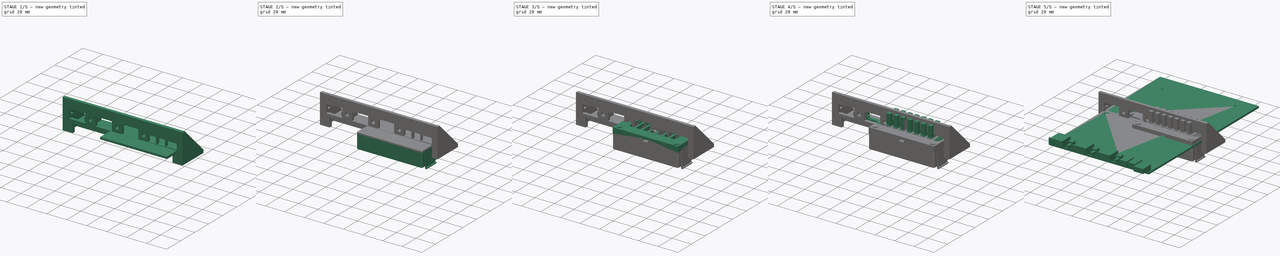
[diagram: build sequence overview — one tinted view per stage of 5, left to right]
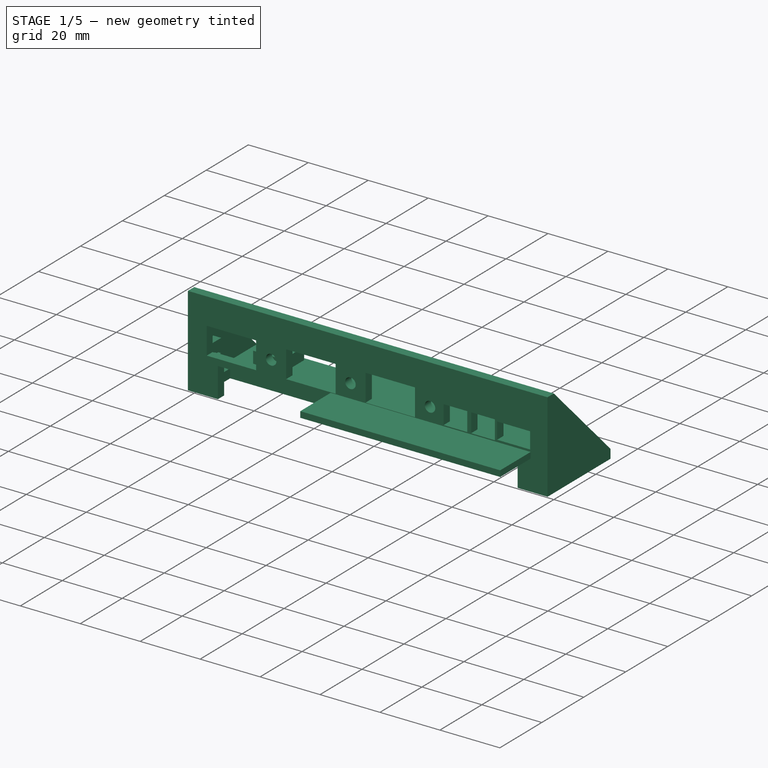
[diagram: stage 1 of 5 — iso view after this stage's code; geometry added in this stage tinted green]
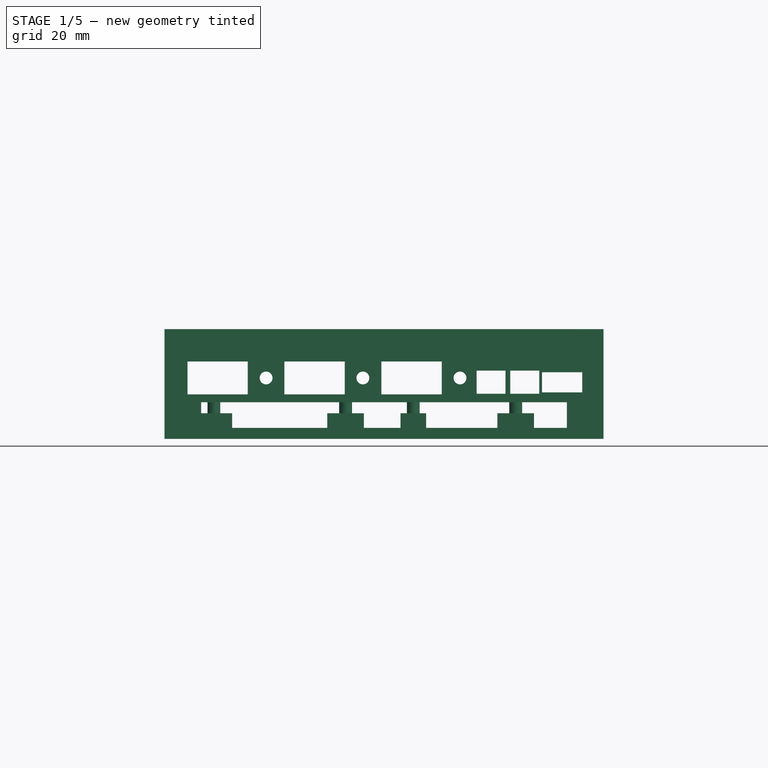
[diagram: stage 1 of 5 — front view after this stage's code; geometry added in this stage tinted green]
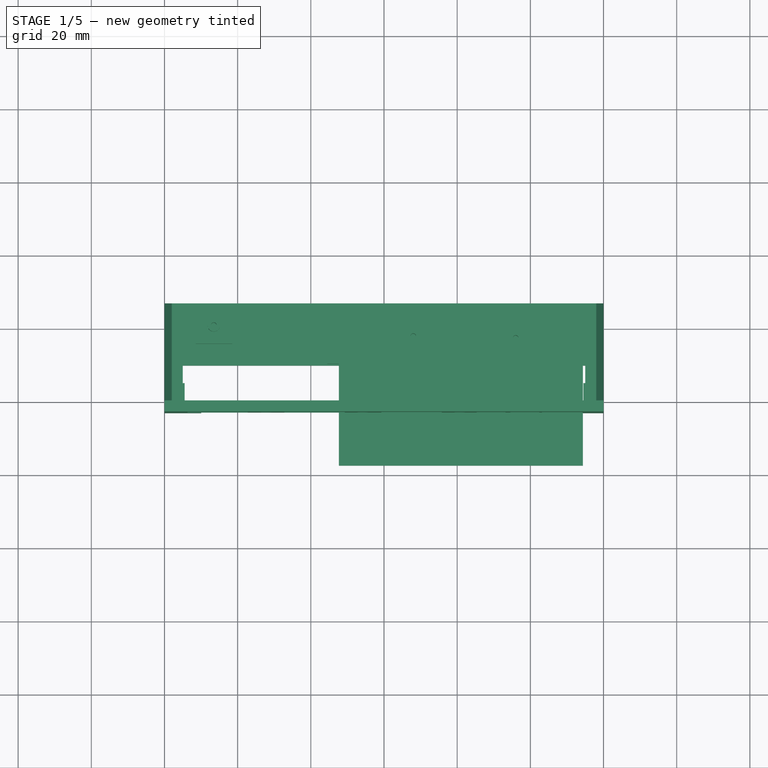
[diagram: stage 1 of 5 — top view after this stage's code; geometry added in this stage tinted green]
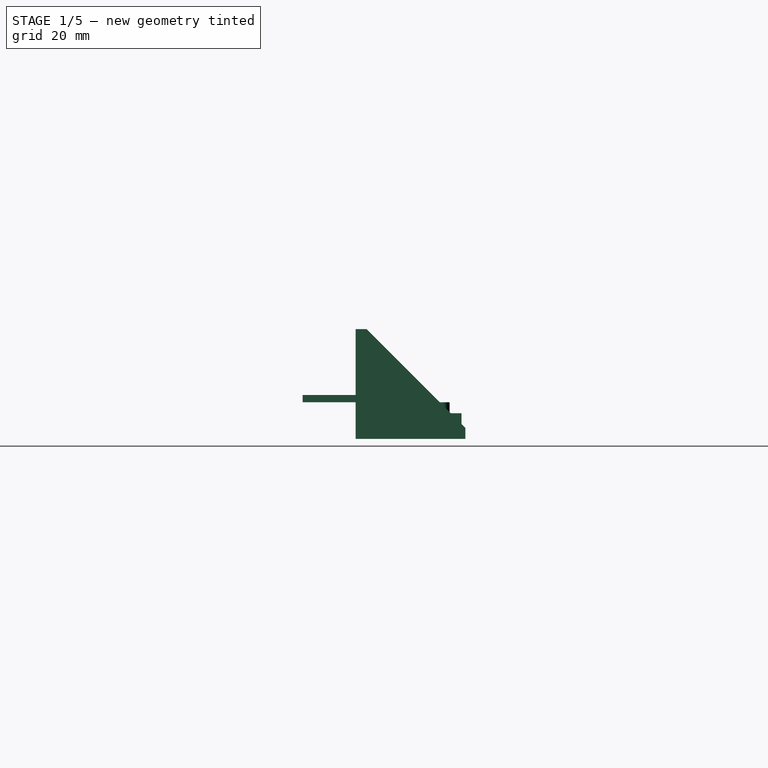
[diagram: stage 1 of 5 — right view after this stage's code; geometry added in this stage tinted green]
FCSTD DOCUMENT  (FreeCAD 2024.123R14555 (Git shallow))
Label: box
License: All rights reserved
LicenseURL: http://en.wikipedia.org/wiki/All_rights_reserved
objects: Sketcher::SketchObject×44, PartDesign::Pad×27, PartDesign::Pocket×17, PartDesign::Chamfer×8, PartDesign::Body×7, Part::Part2DObjectPython×7, Part::Extrusion×7, App::DocumentObjectGroup×4, PartDesign::Fillet×4, PartDesign::Mirrored×2, Part::FeaturePython×1, PartDesign::LinearPattern×1, Part::MultiFuse×1, Part::Cut×1, PartDesign::FeatureBase×1
note: 291 computed .brp shape members not serialized (recipe doc carries the construction recipe); baked Part::Feature solids carry a one-line shape summary decoded from their .brp

FEATURE [PartDesign::Body] Body  label="board-2"
  AutoGroupSolids = false
  ClaimAllChildren = false
  ExportMode = 0
  Group = -> [Sketch,Pad,Sketch001,Pocket,Sketch002,Pad001,Sketch003,Pad002,Sketch004,Pad003,Sketch005,Pad004,Sketch006,Pad005,Sketch007,Pad006,Sketch008,Pad007,Sketch009,Pad008,Sketch010,Pad009]
  InvalidShape = false
  Origin = -> Origin
  Tip = -> Pad009
  TreeRank = 0
  ValidateShape = false
  _ExportChildren = -> [Pad,Pocket,Pad001,Pad002,Pad003,Pad004,Pad005,Pad006,Pad007,Pad008,Pad009]
  _GroupVersion = 1
FEATURE [Sketcher::SketchObject] Sketch012
  ArcFitTolerance = 0
  AttachmentSupport = -> [XZ_Plane001]
  ExternalBSplineMaxDegree = 0
  ExternalBSplineTolerance = 0
  FullyConstrained = true
  InternalTolerance = 1e-06
  InvalidShape = false
  MakeInternals = false
  MapMode = 5
  Placement = pos=(0,0,0) rot=(1,0,0;1.5708rad)
  Support = -> [XZ_Plane001]
  TreeRank = 0
  ValidateShape = false
  sketch-geometry (4):
    g0: LineSegment StartX=-60 StartY=20 StartZ=0 EndX=60 EndY=20 EndZ=0
    g1: LineSegment StartX=60 StartY=20 StartZ=0 EndX=60 EndY=-10 EndZ=0
    g2: LineSegment StartX=60 StartY=-10 StartZ=0 EndX=-60 EndY=-10 EndZ=0
    g3: LineSegment StartX=-60 StartY=-10 StartZ=0 EndX=-60 EndY=20 EndZ=0
  constraints (11):
    c: Coincident(g0,g1)
    c: Coincident(g1,g2)
    c: Coincident(g2,g3)
    c: Coincident(g3,g0)
    c: Horizontal(g2)
    c: Vertical(g1)
    c: Vertical(g3)
    c: DistanceX(g0,g0) = 120
    c: DistanceY(g1,g1) = 30
    c: Symmetric(g0,g0,g-2)
    c: DistanceY(g2,g-1) = 10
FEATURE [PartDesign::Pad] Pad011
  AddSubType = 0
  AutoTaperInnerAngle = true
  CheckUpToFaceLimits = true
  ClaimChildren = false
  Direction = (0,-1,-2e-16)
  Fit = 0
  FitJoin = 0
  InnerFit = 0
  InnerFitJoin = 0
  InvalidShape = false
  Length = 3
  Length2 = 10
  NewSolid = false
  Placement = pos=(0,0,0) rot=(1,0,0;1.5708rad)
  Profile = -> Sketch012
  ReferenceAxis = -> Sketch012 [N_Axis]
  Suppress = false
  TaperInnerAngle = 0
  TaperInnerAngleRev = 0
  TreeRank = 0
  Type = 0
  ValidateShape = true
  _ProfileBasedVersion = 0
FEATURE [Sketcher::SketchObject] Sketch013
  ArcFitTolerance = 0
  AttachmentSupport = -> [Pad011]
  ExternalBSplineMaxDegree = 0
  ExternalBSplineTolerance = 0
  ExternalGeometry = -> [Pad011]
  FullyConstrained = true
  InternalTolerance = 1e-06
  InvalidShape = false
  MakeInternals = false
  MapMode = 5
  Placement = pos=(0,-1.1e-15,0) rot=(-1,0,0;1.5708rad)
  Support = -> [Pad011]
  TreeRank = 0
  ValidateShape = false
  sketch-geometry (4):
    g0: LineSegment StartX=-54.125 StartY=-2 StartZ=0 EndX=-53.125 EndY=-2 EndZ=0
    g1: LineSegment StartX=-53.125 StartY=-2 StartZ=0 EndX=-53.125 EndY=-7 EndZ=0
    g2: LineSegment StartX=-53.125 StartY=-7 StartZ=0 EndX=-54.125 EndY=-7 EndZ=0
    g3: LineSegment StartX=-54.125 StartY=-7 StartZ=0 EndX=-54.125 EndY=-2 EndZ=0
  constraints (12):
    c: Coincident(g0,g1)
    c: Coincident(g1,g2)
    c: Coincident(g2,g3)
    c: Coincident(g3,g0)
    c: Horizontal(g0)
    c: Horizontal(g2)
    c: Vertical(g1)
    c: Vertical(g3)
    c: DistanceX(g2,g2) = 1
    c: DistanceY(g3,g3) = 5
    c: DistanceX(g-3,g2) = 5.875
    c: DistanceY(g0,g-3) = 12
FEATURE [PartDesign::Pocket] Pocket001
  AddSubType = 1
  AutoTaperInnerAngle = true
  BaseFeature = -> Pad011
  CheckUpToFaceLimits = true
  ClaimChildren = false
  Direction = (0,-1,-2e-16)
  Fit = 0
  FitJoin = 0
  InnerFit = 0
  InnerFitJoin = 0
  InvalidShape = false
  Length = 0.2
  Length2 = 5
  NewSolid = false
  Placement = pos=(0,0,0) rot=(1,0,0;1.5708rad)
  Profile = -> Sketch013
  ReferenceAxis = -> Sketch013 [N_Axis]
  Suppress = false
  TaperInnerAngle = 0
  TaperInnerAngleRev = 0
  TreeRank = 0
  Type = 0
  ValidateShape = true
  _ProfileBasedVersion = 0
  _Version = 0
FEATURE [Sketcher::SketchObject] Sketch014
  ArcFitTolerance = 0
  AttachmentSupport = -> [Pocket001]
  ExternalBSplineMaxDegree = 0
  ExternalBSplineTolerance = 0
  ExternalGeometry = -> [Pocket001]
  FullyConstrained = true
  InternalTolerance = 1e-06
  InvalidShape = false
  MakeInternals = false
  MapMode = 5
  Placement = pos=(0,-3,0) rot=(1,0,0;1.5708rad)
  Support = -> [Pocket001]
  TreeRank = 0
  ValidateShape = false
  sketch-geometry (45):
    g0: LineSegment StartX=-53.725 StartY=11.15 StartZ=0 EndX=-37.225 EndY=11.15 EndZ=0
    g1: LineSegment StartX=-37.225 StartY=11.15 StartZ=0 EndX=-37.225 EndY=2.15 EndZ=0
    g2: LineSegment StartX=-37.225 StartY=2.15 StartZ=0 EndX=-53.725 EndY=2.15 EndZ=0
    g3: LineSegment StartX=-53.725 StartY=2.15 StartZ=0 EndX=-53.725 EndY=11.15 EndZ=0
    g4: LineSegment StartX=-27.225 StartY=11.15 StartZ=0 EndX=-10.725 EndY=11.15 EndZ=0
    g5: LineSegment StartX=-10.725 StartY=11.15 StartZ=0 EndX=-10.725 EndY=2.15 EndZ=0
    g6: LineSegment StartX=-10.725 StartY=2.15 StartZ=0 EndX=-27.225 EndY=2.15 EndZ=0
    g7: LineSegment StartX=-27.225 StartY=2.15 StartZ=0 EndX=-27.225 EndY=11.15 EndZ=0
    g8: LineSegment StartX=-0.725 StartY=11.15 StartZ=0 EndX=15.775 EndY=11.15 EndZ=0
    g9: LineSegment StartX=15.775 StartY=11.15 StartZ=0 EndX=15.775 EndY=2.15 EndZ=0
    g10: LineSegment StartX=15.775 StartY=2.15 StartZ=0 EndX=-0.725 EndY=2.15 EndZ=0
    g11: LineSegment StartX=-0.725 StartY=2.15 StartZ=0 EndX=-0.725 EndY=11.15 EndZ=0
    g12: LineSegment StartX=25.325 StartY=8.65 StartZ=0 EndX=33.225 EndY=8.65 EndZ=0
    g13: LineSegment StartX=33.225 StartY=8.65 StartZ=0 EndX=33.225 EndY=2.35 EndZ=0
    g14: LineSegment StartX=33.225 StartY=2.35 StartZ=0 EndX=25.325 EndY=2.35 EndZ=0
    g15: LineSegment StartX=25.325 StartY=2.35 StartZ=0 EndX=25.325 EndY=8.65 EndZ=0
    g16: LineSegment StartX=34.525 StartY=8.65 StartZ=0 EndX=42.425 EndY=8.65 EndZ=0
    g17: LineSegment StartX=42.425 StartY=8.65 StartZ=0 EndX=42.425 EndY=2.35 EndZ=0
    g18: LineSegment StartX=42.425 StartY=2.35 StartZ=0 EndX=34.525 EndY=2.35 EndZ=0
    g19: LineSegment StartX=34.525 StartY=2.35 StartZ=0 EndX=34.525 EndY=8.65 EndZ=0
    g20: LineSegment StartX=43.185 StartY=8.2 StartZ=0 EndX=54.185 EndY=8.2 EndZ=0
    g21: LineSegment StartX=54.185 StartY=8.2 StartZ=0 EndX=54.185 EndY=2.7 EndZ=0
    g22: LineSegment StartX=54.185 StartY=2.7 StartZ=0 EndX=43.185 EndY=2.7 EndZ=0
    g23: LineSegment StartX=43.185 StartY=2.7 StartZ=0 EndX=43.185 EndY=8.2 EndZ=0
    g24: LineSegment [constr] StartX=-52.725 StartY=10.15 StartZ=0 EndX=-38.225 EndY=10.15 EndZ=0
    g25: LineSegment [constr] StartX=-38.225 StartY=10.15 StartZ=0 EndX=-38.225 EndY=3.15 EndZ=0
    g26: LineSegment [constr] StartX=-38.225 StartY=3.15 StartZ=0 EndX=-52.725 EndY=3.15 EndZ=0
    g27: LineSegment [constr] StartX=-52.725 StartY=3.15 StartZ=0 EndX=-52.725 EndY=10.15 EndZ=0
    g28: LineSegment [constr] StartX=-26.225 StartY=10.15 StartZ=0 EndX=-11.725 EndY=10.15 EndZ=0
    g29: LineSegment [constr] StartX=-11.725 StartY=10.15 StartZ=0 EndX=-11.725 EndY=3.15 EndZ=0
    g30: LineSegment [constr] StartX=-11.725 StartY=3.15 StartZ=0 EndX=-26.225 EndY=3.15 EndZ=0
    g31: LineSegment [constr] StartX=-26.225 StartY=3.15 StartZ=0 EndX=-26.225 EndY=10.15 EndZ=0
    g32: LineSegment [constr] StartX=0.275 StartY=10.15 StartZ=0 EndX=14.775 EndY=10.15 EndZ=0
    g33: LineSegment [constr] StartX=14.775 StartY=10.15 StartZ=0 EndX=14.775 EndY=3.15 EndZ=0
    g34: LineSegment [constr] StartX=14.775 StartY=3.15 StartZ=0 EndX=0.275 EndY=3.15 EndZ=0
    g35: LineSegment [constr] StartX=0.275 StartY=3.15 StartZ=0 EndX=0.275 EndY=10.15 EndZ=0
    g36: GeomPoint [constr] X=-45.475 Y=6.65 Z=0
    g37: GeomPoint [constr] X=-18.975 Y=6.65 Z=0
    g38: GeomPoint [constr] X=7.525 Y=6.65 Z=0
    g39: LineSegment [constr] StartX=-45.475 StartY=6.65 StartZ=0 EndX=-18.975 EndY=6.65 EndZ=0
    g40: LineSegment [constr] StartX=-18.975 StartY=6.65 StartZ=0 EndX=7.525 EndY=6.65 EndZ=0
    g41: Circle CenterX=-32.225 CenterY=6.65 CenterZ=0 NormalX=0 NormalY=0 NormalZ=1 AngleXU=0 Radius=1.75
    g42: Circle CenterX=-5.775 CenterY=6.65 CenterZ=0 NormalX=0 NormalY=0 NormalZ=1 AngleXU=0 Radius=1.75
    g43: LineSegment [constr] StartX=7.525 StartY=6.65 StartZ=0 EndX=20.775 EndY=6.65 EndZ=0
    g44: Circle CenterX=20.775 CenterY=6.65 CenterZ=0 NormalX=0 NormalY=0 NormalZ=1 AngleXU=0 Radius=1.75
  constraints (123):
    c: Coincident(g0,g1)
    c: Coincident(g1,g2)
    c: Coincident(g2,g3)
    c: Coincident(g3,g0)
    c: Horizontal(g0)
    c: Horizontal(g2)
    c: Vertical(g1)
    c: Vertical(g3)
    c: Coincident(g4,g5)
    c: Coincident(g5,g6)
    c: Coincident(g6,g7)
    c: Coincident(g7,g4)
    c: Horizontal(g4)
    c: Horizontal(g6)
    c: Vertical(g5)
    c: Vertical(g7)
    c: Coincident(g8,g9)
    c: Coincident(g9,g10)
    c: Coincident(g10,g11)
    c: Coincident(g11,g8)
    c: Horizontal(g8)
    c: Horizontal(g10)
    c: Vertical(g9)
    c: Vertical(g11)
    c: Coincident(g12,g13)
    c: Coincident(g13,g14)
    c: Coincident(g14,g15)
    c: Coincident(g15,g12)
    c: Horizontal(g12)
    c: Horizontal(g14)
    c: Vertical(g13)
    c: Vertical(g15)
    c: Coincident(g16,g17)
    c: Coincident(g17,g18)
    c: Coincident(g18,g19)
    c: Coincident(g19,g16)
    c: Horizontal(g16)
    c: Horizontal(g18)
    c: Vertical(g17)
    c: Vertical(g19)
    c: Coincident(g20,g21)
    c: Coincident(g21,g22)
    c: Coincident(g22,g23)
    c: Coincident(g23,g20)
    c: Horizontal(g20)
    c: Horizontal(g22)
    c: Vertical(g21)
    c: Vertical(g23)
    c: Equal(g1,g7)
    c: Equal(g5,g11)
    c: Equal(g8,g4)
    c: Equal(g0,g4)
    c: Coincident(g24,g25)
    c: Coincident(g25,g26)
    c: Coincident(g26,g27)
    c: Coincident(g27,g24)
    c: Horizontal(g24)
    c: Horizontal(g26)
    c: Vertical(g25)
    c: Vertical(g27)
    c: DistanceX(g24,g24) = 14.5
    c: DistanceY(g25,g25) = 7
    c: DistanceX(g-3,g24) = 0.4
    c: DistanceY(g-3,g24) = 3.15
    c: Coincident(g28,g29)
    c: Coincident(g29,g30)
    c: Coincident(g30,g31)
    c: Coincident(g31,g28)
    c: Horizontal(g28)
    c: Horizontal(g30)
    c: Vertical(g29)
    c: Vertical(g31)
    c: Coincident(g32,g33)
    c: Coincident(g33,g34)
    c: Coincident(g34,g35)
    c: Coincident(g35,g32)
    c: Horizontal(g32)
    c: Horizontal(g34)
    c: Vertical(g33)
    c: Vertical(g35)
    c: Equal(g24,g28)
    c: Equal(g28,g32)
    c: Equal(g35,g29)
    c: Equal(g29,g25)
    c: Symmetric(g25,g24,g36)
    c: Symmetric(g29,g28,g37)
    c: Symmetric(g33,g32,g38)
    c: DistanceX(g0,g0) = 16.5
    c: DistanceY(g1,g1) = 9
    c: Symmetric(g1,g0,g36)
    c: Symmetric(g5,g4,g37)
    c: Symmetric(g9,g8,g38)
    c: Coincident(g39,g36)
    c: Coincident(g39,g37)
    c: Horizontal(g39)
    c: Coincident(g40,g37)
    c: Coincident(g40,g38)
    c: Horizontal(g40)
    c: Equal(g39,g40)
    c: DistanceX(g39,g39) = 26.5
    c: PointOnObject(g41,g39)
    c: DistanceX(g36,g41) = 13.25
    c: PointOnObject(g42,g40)
    c: DistanceX(g37,g42) = 13.2
    c: Coincident(g43,g38)
    c: Horizontal(g43)
    c: DistanceX(g43,g43) = 13.25
    c: Coincident(g44,g43)
    c: Equal(g44,g42)
    c: Equal(g42,g41)
    c: Diameter(g41) = 3.5
    c: Equal(g12,g16)
    c: Equal(g13,g19)
    c: DistanceX(g12,g12) = 7.9
    c: DistanceX(g-3,g12) = 78.45
    c: DistanceY(g13,g13) = 6.3
    c: PointOnObject(g16,g12)
    c: DistanceY(g-3,g12) = 1.65
    c: DistanceX(g12,g16) = 1.3
    c: DistanceX(g20,g20) = 11
    c: DistanceY(g21,g21) = 5.5
    c: DistanceX(g16,g20) = 0.76
    c: DistanceY(g20,g16) = 0.45
FEATURE [PartDesign::Pocket] Pocket002
  AddSubType = 1
  AutoTaperInnerAngle = true
  BaseFeature = -> Pocket001
  CheckUpToFaceLimits = true
  ClaimChildren = false
  Direction = (0,1,-2e-16)
  Fit = 0
  FitJoin = 0
  InnerFit = 0
  InnerFitJoin = 0
  InvalidShape = false
  Length = 5
  Length2 = 5
  NewSolid = false
  Placement = pos=(0,0,0) rot=(1,0,0;1.5708rad)
  Profile = -> Sketch014
  ReferenceAxis = -> Sketch014 [N_Axis]
  Suppress = false
  TaperInnerAngle = 0
  TaperInnerAngleRev = 0
  TreeRank = 0
  Type = 0
  ValidateShape = true
  _ProfileBasedVersion = 0
  _Version = 0
FEATURE [Sketcher::SketchObject] Sketch015
  ArcFitTolerance = 0
  AttachmentSupport = -> [Pocket002]
  ExternalBSplineMaxDegree = 0
  ExternalBSplineTolerance = 0
  ExternalGeometry = -> [Pocket002]
  FullyConstrained = true
  InternalTolerance = 1e-06
  InvalidShape = false
  MakeInternals = false
  MapMode = 5
  Placement = pos=(0,-1.1e-15,0) rot=(-1,0,0;1.5708rad)
  Support = -> [Pocket002]
  TreeRank = 0
  ValidateShape = false
  sketch-geometry (8):
    g0: LineSegment StartX=-55.5 StartY=0.35 StartZ=0 EndX=-54.5 EndY=0.35 EndZ=0
    g1: LineSegment StartX=-54.5 StartY=0.35 StartZ=0 EndX=-54.5 EndY=2.35 EndZ=0
    g2: LineSegment StartX=-54.5 StartY=2.35 StartZ=0 EndX=-58 EndY=2.35 EndZ=0
    g3: LineSegment StartX=-55.5 StartY=0.35 StartZ=0 EndX=-55.5 EndY=-2.25 EndZ=0
    g4: LineSegment StartX=-55.5 StartY=-2.25 StartZ=0 EndX=-54.5 EndY=-2.25 EndZ=0
    g5: LineSegment StartX=-54.5 StartY=-2.25 StartZ=0 EndX=-54.5 EndY=-4.25 EndZ=0
    g6: LineSegment StartX=-54.5 StartY=-4.25 StartZ=0 EndX=-58 EndY=-4.25 EndZ=0
    g7: LineSegment StartX=-58 StartY=-4.25 StartZ=0 EndX=-58 EndY=2.35 EndZ=0
  constraints (24):
    c: Horizontal(g0)
    c: Coincident(g1,g0)
    c: Vertical(g1)
    c: Coincident(g2,g1)
    c: Horizontal(g2)
    c: Coincident(g3,g0)
    c: Vertical(g3)
    c: Coincident(g4,g3)
    c: Horizontal(g4)
    c: Coincident(g5,g4)
    c: Vertical(g5)
    c: Coincident(g6,g5)
    c: Horizontal(g6)
    c: Coincident(g7,g6)
    c: Coincident(g7,g2)
    c: Vertical(g7)
    c: Equal(g1,g5)
    c: DistanceX(g-3,g1) = 5.5
    c: DistanceX(g2,g2) = 3.5
    c: DistanceX(g0,g0) = 1
    c: DistanceY(g3,g3) = 2.6
    c: DistanceY(g1,g1) = 2
    c: DistanceY(g2,g-3) = 7.65
    c: Equal(g0,g4)
FEATURE [PartDesign::Pad] Pad012
  AddSubType = 0
  AutoTaperInnerAngle = true
  BaseFeature = -> Pocket002
  CheckUpToFaceLimits = true
  ClaimChildren = false
  Direction = (0,1,2e-16)
  Fit = 0
  FitJoin = 0
  InnerFit = 0
  InnerFitJoin = 0
  InvalidShape = false
  Length = 5
  Length2 = 10
  NewSolid = false
  Placement = pos=(0,0,0) rot=(1,0,0;1.5708rad)
  Profile = -> Sketch015
  ReferenceAxis = -> Sketch015 [N_Axis]
  Suppress = false
  TaperInnerAngle = 0
  TaperInnerAngleRev = 0
  TreeRank = 0
  Type = 0
  ValidateShape = true
  _ProfileBasedVersion = 0
FEATURE [PartDesign::Mirrored] Mirrored
  AddSubType = 0
  BaseFeature = -> Pad012
  CopyShape = true
  InvalidShape = false
  MirrorPlane = -> Sketch015 [V_Axis]
  NewSolid = false
  OriginalSubs = -> [Pad012]
  Originals = -> [Pad012]
  ParallelTransform = true
  Placement = pos=(0,0,0) rot=(1,0,0;1.5708rad)
  SubTransform = true
  Suppress = false
  TreeRank = 0
  ValidateShape = true
  _Version = 0
FEATURE [Sketcher::SketchObject] Sketch016
  ArcFitTolerance = 0
  AttachmentSupport = -> [Mirrored]
  ExternalBSplineMaxDegree = 0
  ExternalBSplineTolerance = 0
  ExternalGeometry = -> [Mirrored]
  FullyConstrained = true
  InternalTolerance = 1e-06
  InvalidShape = false
  MakeInternals = false
  MapMode = 5
  Placement = pos=(0,2.2e-15,-10) rot=(1,0,0;3.14159rad)
  Support = -> [Mirrored]
  TreeRank = 0
  ValidateShape = false
  sketch-geometry (8):
    g0: LineSegment StartX=-60 StartY=0 StartZ=0 EndX=-60 EndY=-40 EndZ=0
    g1: LineSegment StartX=-60 StartY=-40 StartZ=0 EndX=60 EndY=-40 EndZ=0
    g2: LineSegment StartX=60 StartY=-40 StartZ=0 EndX=60 EndY=0 EndZ=0
    g3: LineSegment StartX=60 StartY=0 StartZ=0 EndX=55 EndY=0 EndZ=0
    g4: LineSegment StartX=55 StartY=0 StartZ=0 EndX=55 EndY=-10 EndZ=0
    g5: LineSegment StartX=55 StartY=-10 StartZ=0 EndX=-55 EndY=-10 EndZ=0
    g6: LineSegment StartX=-55 StartY=-10 StartZ=0 EndX=-55 EndY=0 EndZ=0
    g7: LineSegment StartX=-55 StartY=0 StartZ=0 EndX=-60 EndY=0 EndZ=0
  constraints (22):
    c: Coincident(g0,g-3)
    c: Vertical(g0)
    c: Coincident(g1,g0)
    c: Horizontal(g1)
    c: Coincident(g2,g1)
    c: Coincident(g2,g-4)
    c: Vertical(g2)
    c: Coincident(g3,g2)
    c: PointOnObject(g3,g-1)
    c: Coincident(g4,g3)
    c: Vertical(g4)
    c: Coincident(g5,g4)
    c: Horizontal(g5)
    c: Coincident(g6,g5)
    c: PointOnObject(g6,g-1)
    c: Vertical(g6)
    c: Coincident(g7,g6)
    c: Coincident(g7,g0)
    c: DistanceX(g3,g3) = 5
    c: DistanceX(g7,g7) = 5
    c: DistanceY(g0,g0) = 40
    c: DistanceY(g6,g6) = 10
FEATURE [PartDesign::Pad] Pad013
  AddSubType = 0
  AutoTaperInnerAngle = true
  BaseFeature = -> Mirrored
  CheckUpToFaceLimits = true
  ClaimChildren = false
  Direction = (0,2e-16,-1)
  Fit = 0
  FitJoin = 0
  InnerFit = 0
  InnerFitJoin = 0
  InvalidShape = false
  Length = 3
  Length2 = 10
  NewSolid = false
  Placement = pos=(0,0,0) rot=(1,0,0;1.5708rad)
  Profile = -> Sketch016
  ReferenceAxis = -> Sketch016 [N_Axis]
  Reversed = true
  Suppress = false
  TaperInnerAngle = 0
  TaperInnerAngleRev = 0
  TreeRank = 0
  Type = 0
  ValidateShape = true
  _ProfileBasedVersion = 0
FEATURE [Sketcher::SketchObject] Sketch017
  ArcFitTolerance = 0
  AttachmentSupport = -> [Pad013]
  ExternalBSplineMaxDegree = 0
  ExternalBSplineTolerance = 0
  ExternalGeometry = -> [Pad013]
  FullyConstrained = true
  InternalTolerance = 1e-06
  InvalidShape = false
  MakeInternals = false
  MapMode = 5
  Placement = pos=(0,1.6e-15,-7) rot=(0,0,1;3.14159rad)
  Support = -> [Pad013]
  TreeRank = 0
  ValidateShape = false
  sketch-geometry (20):
    g0: LineSegment StartX=-41 StartY=-14.95 StartZ=0 EndX=-31 EndY=-14.95 EndZ=0
    g1: LineSegment StartX=-31 StartY=-14.95 StartZ=0 EndX=-31 EndY=-19.95 EndZ=0
    g2: LineSegment StartX=-31 StartY=-19.95 StartZ=0 EndX=-41 EndY=-19.95 EndZ=0
    g3: LineSegment StartX=-41 StartY=-19.95 StartZ=0 EndX=-41 EndY=-14.95 EndZ=0
    g4: LineSegment StartX=-11.5 StartY=-14.95 StartZ=0 EndX=-4.5 EndY=-14.95 EndZ=0
    g5: LineSegment StartX=-4.5 StartY=-14.95 StartZ=0 EndX=-4.5 EndY=-20.95 EndZ=0
    g6: LineSegment StartX=-4.5 StartY=-20.95 StartZ=0 EndX=-11.5 EndY=-20.95 EndZ=0
    g7: LineSegment StartX=-11.5 StartY=-20.95 StartZ=0 EndX=-11.5 EndY=-14.95 EndZ=0
    g8: LineSegment StartX=5.5 StartY=-10.45 StartZ=0 EndX=15.5 EndY=-10.45 EndZ=0
    g9: LineSegment StartX=15.5 StartY=-10.45 StartZ=0 EndX=15.5 EndY=-18.45 EndZ=0
    g10: LineSegment StartX=15.5 StartY=-18.45 StartZ=0 EndX=5.5 EndY=-18.45 EndZ=0
    g11: LineSegment StartX=5.5 StartY=-18.45 StartZ=0 EndX=5.5 EndY=-10.45 EndZ=0
    g12: LineSegment StartX=41.5 StartY=-15.95 StartZ=0 EndX=51.5 EndY=-15.95 EndZ=0
    g13: LineSegment StartX=51.5 StartY=-15.95 StartZ=0 EndX=51.5 EndY=-25.95 EndZ=0
    g14: LineSegment StartX=51.5 StartY=-25.95 StartZ=0 EndX=41.5 EndY=-25.95 EndZ=0
    g15: LineSegment StartX=41.5 StartY=-25.95 StartZ=0 EndX=41.5 EndY=-15.95 EndZ=0
    g16: Circle CenterX=-36 CenterY=-17.45 CenterZ=0 NormalX=0 NormalY=0 NormalZ=1 AngleXU=0 Radius=0.75
    g17: Circle CenterX=-8 CenterY=-17.95 CenterZ=0 NormalX=0 NormalY=0 NormalZ=1 AngleXU=0 Radius=0.75
    g18: Circle CenterX=10.5 CenterY=-14.45 CenterZ=0 NormalX=0 NormalY=0 NormalZ=1 AngleXU=0 Radius=0.75
    g19: Circle CenterX=46.5 CenterY=-20.95 CenterZ=0 NormalX=0 NormalY=0 NormalZ=1 AngleXU=0 Radius=0.75
  constraints (56):
    c: Coincident(g0,g1)
    c: Coincident(g1,g2)
    c: Coincident(g2,g3)
    c: Coincident(g3,g0)
    c: Horizontal(g0)
    c: Horizontal(g2)
    c: Vertical(g1)
    c: Vertical(g3)
    c: Coincident(g4,g5)
    c: Coincident(g5,g6)
    c: Coincident(g6,g7)
    c: Coincident(g7,g4)
    c: Horizontal(g4)
    c: Horizontal(g6)
    c: Vertical(g5)
    c: Vertical(g7)
    c: Coincident(g8,g9)
    c: Coincident(g9,g10)
    c: Coincident(g10,g11)
    c: Coincident(g11,g8)
    c: Horizontal(g8)
    c: Horizontal(g10)
    c: Vertical(g9)
    c: Vertical(g11)
    c: Coincident(g12,g13)
    c: Coincident(g13,g14)
    c: Coincident(g14,g15)
    c: Coincident(g15,g12)
    c: Horizontal(g12)
    c: Horizontal(g14)
    c: Vertical(g13)
    c: Vertical(g15)
    c: DistanceX(g0,g0) = 10
    c: DistanceY(g1,g1) = 5
    c: Diameter(g16) = 1.5
    c: DistanceX(g4,g4) = 7
    c: DistanceY(g7,g7) = 6
    c: Equal(g17,g16)
    c: DistanceX(g8,g8) = 10
    c: DistanceY(g11,g11) = 8
    c: Equal(g18,g17)
    c: Equal(g12,g13)
    c: DistanceX(g12,g12) = 10
    c: DistanceX(g-3,g16) = 19
    c: DistanceY(g16,g-3) = 7.45
    c: Symmetric(g2,g0,g16)
    c: DistanceX(g16,g17) = 28
    c: DistanceY(g17,g16) = 0.5
    c: Symmetric(g6,g4,g17)
    c: DistanceX(g17,g18) = 18.5
    c: DistanceY(g17,g18) = 3.5
    c: Symmetric(g10,g8,g18)
    c: DistanceX(g18,g19) = 36
    c: DistanceY(g19,g18) = 6.5
    c: Equal(g18,g19)
    c: Symmetric(g14,g12,g19)
FEATURE [PartDesign::Pad] Pad014
  AddSubType = 0
  AutoTaperInnerAngle = true
  BaseFeature = -> Pad013
  CheckUpToFaceLimits = true
  ClaimChildren = false
  Direction = (0,-2e-16,1)
  Fit = 0
  FitJoin = 0
  InnerFit = 0
  InnerFitJoin = 0
  InvalidShape = false
  Length = 4
  Length2 = 10
  NewSolid = false
  Placement = pos=(0,0,0) rot=(1,0,0;1.5708rad)
  Profile = -> Sketch017
  ReferenceAxis = -> Sketch017 [N_Axis]
  Suppress = false
  TaperInnerAngle = 0
  TaperInnerAngleRev = 0
  TreeRank = 0
  Type = 0
  ValidateShape = true
  _ProfileBasedVersion = 0
FEATURE [Sketcher::SketchObject] Sketch018
  ArcFitTolerance = 0
  AttachmentSupport = -> [Pad014]
  ExternalBSplineMaxDegree = 0
  ExternalBSplineTolerance = 0
  ExternalGeometry = -> [Pad014]
  FullyConstrained = true
  InternalTolerance = 1e-06
  InvalidShape = false
  MakeInternals = false
  MapMode = 5
  Placement = pos=(0,0,-3) rot=(0,0,1;3.14159rad)
  Support = -> [Pad014]
  TreeRank = 0
  ValidateShape = false
  sketch-geometry (4):
    g0: Circle CenterX=-36 CenterY=-17.45 CenterZ=0 NormalX=0 NormalY=0 NormalZ=1 AngleXU=0 Radius=1.75
    g1: Circle CenterX=-8 CenterY=-17.95 CenterZ=0 NormalX=0 NormalY=0 NormalZ=1 AngleXU=0 Radius=1.75
    g2: Circle CenterX=10.5 CenterY=-14.45 CenterZ=0 NormalX=0 NormalY=0 NormalZ=1 AngleXU=0 Radius=1.75
    g3: Circle CenterX=46.5 CenterY=-20.95 CenterZ=0 NormalX=0 NormalY=0 NormalZ=1 AngleXU=0 Radius=1.75
  constraints (8):
    c: Coincident(g0,g-6)
    c: Coincident(g1,g-3)
    c: Coincident(g2,g-4)
    c: Coincident(g3,g-5)
    c: Equal(g2,g1)
    c: Equal(g0,g1)
    c: Diameter(g0) = 3.5
    c: Equal(g2,g3)
FEATURE [PartDesign::Pad] Pad015
  AddSubType = 0
  AutoTaperInnerAngle = true
  BaseFeature = -> Pad014
  CheckUpToFaceLimits = true
  ClaimChildren = false
  Direction = (0,0,1)
  Fit = 0
  FitJoin = 0
  InnerFit = 0
  InnerFitJoin = 0
  InvalidShape = false
  Length = 3
  Length2 = 10
  NewSolid = false
  Placement = pos=(0,0,0) rot=(1,0,0;1.5708rad)
  Profile = -> Sketch018
  ReferenceAxis = -> Sketch018 [N_Axis]
  Suppress = false
  TaperInnerAngle = 0
  TaperInnerAngleRev = 0
  TreeRank = 0
  Type = 0
  ValidateShape = true
  _ProfileBasedVersion = 0
FEATURE [Sketcher::SketchObject] Sketch022
  ArcFitTolerance = 0
  AttachmentSupport = -> [Pad015]
  ExternalBSplineMaxDegree = 0
  ExternalBSplineTolerance = 0
  ExternalGeometry = -> [Pad015]
  FullyConstrained = true
  InternalTolerance = 1e-06
  InvalidShape = false
  MakeInternals = false
  MapMode = 5
  Placement = pos=(-60,0,0) rot=(0.707107,0,-0.707107;3.14159rad)
  Support = -> [Pad015]
  TreeRank = 0
  ValidateShape = false
  sketch-geometry (3):
    g0: LineSegment StartX=7 StartY=0 StartZ=0 EndX=-20 EndY=0 EndZ=0
    g1: LineSegment StartX=-20 StartY=0 StartZ=0 EndX=7 EndY=-27 EndZ=0
    g2: LineSegment StartX=7 StartY=-27 StartZ=0 EndX=7 EndY=0 EndZ=0
  constraints (8):
    c: Coincident(g0,g-3)
    c: PointOnObject(g0,g-1)
    c: Coincident(g1,g0)
    c: PointOnObject(g1,g-3)
    c: Coincident(g2,g1)
    c: Coincident(g2,g0)
    c: DistanceX(g0,g0) = 27
    c: Equal(g0,g2)
FEATURE [PartDesign::Pad] Pad018
  AddSubType = 0
  AutoTaperInnerAngle = true
  BaseFeature = -> Pad015
  CheckUpToFaceLimits = true
  ClaimChildren = false
  Direction = (-1,0,-2e-16)
  Fit = 0
  FitJoin = 0
  InnerFit = 0
  InnerFitJoin = 0
  InvalidShape = false
  Length = 2
  Length2 = 10
  NewSolid = false
  Placement = pos=(0,0,0) rot=(1,0,0;1.5708rad)
  Profile = -> Sketch022
  ReferenceAxis = -> Sketch022 [N_Axis]
  Reversed = true
  Suppress = false
  TaperInnerAngle = 0
  TaperInnerAngleRev = 0
  TreeRank = 0
  Type = 0
  ValidateShape = true
  _ProfileBasedVersion = 0
FEATURE [PartDesign::Mirrored] Mirrored001
  AddSubType = 0
  BaseFeature = -> Pad018
  CopyShape = true
  InvalidShape = false
  MirrorPlane = -> YZ_Plane001
  NewSolid = false
  OriginalSubs = -> [Pad018]
  Originals = -> [Pad018]
  ParallelTransform = true
  Placement = pos=(0,0,0) rot=(1,0,0;1.5708rad)
  SubTransform = true
  Suppress = false
  TreeRank = 0
  ValidateShape = true
  _Version = 0
FEATURE [Sketcher::SketchObject] Sketch023
  ArcFitTolerance = 0
  AttachmentSupport = -> [Mirrored001]
  ExternalBSplineMaxDegree = 0
  ExternalBSplineTolerance = 0
  ExternalGeometry = -> [Mirrored001]
  FullyConstrained = true
  InternalTolerance = 1e-06
  InvalidShape = false
  MakeInternals = false
  MapMode = 5
  Placement = pos=(0,-3,0) rot=(1,0,0;1.5708rad)
  Support = -> [Mirrored001]
  TreeRank = 0
  ValidateShape = false
  sketch-geometry (4):
    g0: LineSegment StartX=-50 StartY=-10 StartZ=0 EndX=50 EndY=-10 EndZ=0
    g1: LineSegment StartX=50 StartY=-10 StartZ=0 EndX=50 EndY=0 EndZ=0
    g2: LineSegment StartX=50 StartY=0 StartZ=0 EndX=-50 EndY=0 EndZ=0
    g3: LineSegment StartX=-50 StartY=0 StartZ=0 EndX=-50 EndY=-10 EndZ=0
  constraints (12):
    c: Coincident(g0,g1)
    c: Coincident(g1,g2)
    c: Coincident(g2,g3)
    c: Coincident(g3,g0)
    c: Horizontal(g0)
    c: Horizontal(g2)
    c: Vertical(g1)
    c: Vertical(g3)
    c: PointOnObject(g0,g-3)
    c: DistanceX(g0,g-3) = 10
    c: DistanceX(g-3,g0) = 10
    c: PointOnObject(g-1,g2)
FEATURE [PartDesign::Pocket] Pocket003
  AddSubType = 1
  AutoTaperInnerAngle = true
  BaseFeature = -> Mirrored001
  CheckUpToFaceLimits = true
  ClaimChildren = false
  Direction = (0,1,-2e-16)
  Fit = 0
  FitJoin = 0
  InnerFit = 0
  InnerFitJoin = 0
  InvalidShape = false
  Length = 5
  Length2 = 5
  NewSolid = false
  Placement = pos=(0,0,0) rot=(1,0,0;1.5708rad)
  Profile = -> Sketch023
  ReferenceAxis = -> Sketch023 [N_Axis]
  Suppress = false
  TaperInnerAngle = 0
  TaperInnerAngleRev = 0
  TreeRank = 0
  Type = 0
  ValidateShape = true
  _ProfileBasedVersion = 0
  _Version = 0
FEATURE [Sketcher::SketchObject] Sketch024
  ArcFitTolerance = 0
  AttachmentSupport = -> [Pocket003]
  ExternalBSplineMaxDegree = 0
  ExternalBSplineTolerance = 0
  ExternalGeometry = -> [Pocket003]
  FullyConstrained = true
  InternalTolerance = 1e-06
  InvalidShape = false
  MakeInternals = false
  MapMode = 5
  Placement = pos=(0,0,6.7e-15) rot=(0,0,1;3.14159rad)
  Support = -> [Pocket003]
  TreeRank = 0
  ValidateShape = false
  sketch-geometry (4):
    g0: Circle CenterX=-36 CenterY=-17.45 CenterZ=0 NormalX=0 NormalY=0 NormalZ=1 AngleXU=0 Radius=0.75
    g1: Circle CenterX=-8 CenterY=-17.95 CenterZ=0 NormalX=0 NormalY=0 NormalZ=1 AngleXU=0 Radius=0.75
    g2: Circle CenterX=10.5 CenterY=-14.45 CenterZ=0 NormalX=0 NormalY=0 NormalZ=1 AngleXU=0 Radius=0.75
    g3: Circle CenterX=46.5 CenterY=-20.95 CenterZ=0 NormalX=0 NormalY=0 NormalZ=1 AngleXU=0 Radius=0.75
  constraints (8):
    c: Coincident(g0,g-4)
    c: Coincident(g1,g-5)
    c: Coincident(g2,g-6)
    c: Coincident(g3,g-7)
    c: Equal(g3,g2)
    c: Equal(g1,g2)
    c: Equal(g0,g1)
    c: Diameter(g0) = 1.5
FEATURE [PartDesign::Pocket] Pocket004
  AddSubType = 1
  AutoTaperInnerAngle = true
  BaseFeature = -> Pocket003
  CheckUpToFaceLimits = true
  ClaimChildren = false
  Direction = (0,0,-1)
  Fit = 0
  FitJoin = 0
  InnerFit = 0
  InnerFitJoin = 0
  InvalidShape = false
  Length = 5
  Length2 = 5
  NewSolid = false
  Placement = pos=(0,0,0) rot=(1,0,0;1.5708rad)
  Profile = -> Sketch024
  ReferenceAxis = -> Sketch024 [N_Axis]
  Suppress = false
  TaperInnerAngle = 0
  TaperInnerAngleRev = 0
  TreeRank = 0
  Type = 0
  ValidateShape = true
  _ProfileBasedVersion = 0
  _Version = 0
FEATURE [PartDesign::Body] Body004  label="holder"
  AutoGroupSolids = false
  ClaimAllChildren = false
  ExportMode = 0
  Group = -> [Sketch031,Pad022,Sketch032,Pocket008,LinearPattern,Sketch033,Pocket009,Sketch034,Pocket010,Chamfer,Sketch035,Pocket011,Sketch036,Pocket012,Sketch037,Pocket013,Chamfer001]
  InvalidShape = false
  Origin = -> Origin004
  Tip = -> Chamfer001
  TreeRank = 0
  ValidateShape = false
  _ExportChildren = -> [Pad022,Pocket008,LinearPattern,Pocket009,Pocket010,Chamfer,Pocket011,Pocket012,Pocket013,Chamfer001]
  _GroupVersion = 1
FEATURE [Sketcher::SketchObject] Sketch038
  ArcFitTolerance = 0
  AttachmentSupport = -> [XY_Plane005]
  ExternalBSplineMaxDegree = 0
  ExternalBSplineTolerance = 0
  FullyConstrained = true
  InternalTolerance = 1e-06
  InvalidShape = false
  MakeInternals = false
  MapMode = 5
  Support = -> [XY_Plane005]
  TreeRank = 0
  ValidateShape = false
  sketch-geometry (4):
    g0: LineSegment StartX=-12.35 StartY=17.5 StartZ=0 EndX=54.35 EndY=17.5 EndZ=0
    g1: LineSegment StartX=54.35 StartY=17.5 StartZ=0 EndX=54.35 EndY=-17.5 EndZ=0
    g2: LineSegment StartX=54.35 StartY=-17.5 StartZ=0 EndX=-12.35 EndY=-17.5 EndZ=0
    g3: LineSegment StartX=-12.35 StartY=-17.5 StartZ=0 EndX=-12.35 EndY=17.5 EndZ=0
  constraints (11):
    c: Coincident(g0,g1)
    c: Coincident(g1,g2)
    c: Coincident(g2,g3)
    c: Coincident(g3,g0)
    c: Horizontal(g0)
    c: Horizontal(g2)
    c: Vertical(g1)
    c: DistanceX(g0,g-1) = 12.35
    c: DistanceY(g3,g3) = 35
    c: DistanceX(g0,g0) = 66.7
    c: Symmetric(g2,g0,g-1)
FEATURE [PartDesign::Pad] Pad023
  AddSubType = 0
  AutoTaperInnerAngle = true
  CheckUpToFaceLimits = true
  ClaimChildren = false
  Direction = (0,0,1)
  Fit = 0
  FitJoin = 0
  InnerFit = 0
  InnerFitJoin = 0
  InvalidShape = false
  Length = 2
  Length2 = 10
  NewSolid = false
  Profile = -> Sketch038
  ReferenceAxis = -> Sketch038 [N_Axis]
  Suppress = false
  TaperInnerAngle = 0
  TaperInnerAngleRev = 0
  TreeRank = 0
  Type = 0
  ValidateShape = true
  _ProfileBasedVersion = 0
FEATURE [PartDesign::Body] Body005  label="fuse-holder-cup"
  AutoGroupSolids = false
  ClaimAllChildren = false
  ExportMode = 0
  Group = -> [Sketch038,Pad023,Sketch039,Pad024,Sketch040,Pocket014,Sketch041,Pad025,Sketch042,Pad026,Sketch043,Pad027,Sketch044,Pad028,Chamfer002,Chamfer003,Fillet001,Fillet002,Fillet003,Sketch045,Pocket015,Chamfer007]
  InvalidShape = false
  Origin = -> Origin005
  Placement = pos=(0,0,20) rot=(0,0,1;0rad)
  Tip = -> Chamfer007
  TreeRank = 0
  ValidateShape = false
  _ExportChildren = -> [Pad023,Pad024,Pocket014,Pad025,Pad026,Pad027,Pad028,Chamfer002,Chamfer003,Fillet001,Fillet002,Fillet003,Pocket015,Chamfer007]
  _GroupVersion = 1
FEATURE [App::DocumentObjectGroup] Group002  label="fuse-holder-with-cup"
  ClaimAllChildren = true
  ExportMode = 1
  Group = -> [Body003,Array,Body005,Cut,Group003,Body006]
  TreeRank = 0
  _GroupVersion = 1
FEATURE [Sketcher::SketchObject] Sketch046
  ArcFitTolerance = 1e-06
  AttachmentSupport = -> [Pocket004]
  ExternalBSplineMaxDegree = 5
  ExternalBSplineTolerance = 0.0001
  ExternalGeometry = -> [Pocket004]
  FullyConstrained = true
  InternalTolerance = 1e-06
  InvalidShape = false
  MakeInternals = false
  MapMode = 5
  Placement = pos=(0,3.2e-15,-7) rot=(0,0,1;3.14159rad)
  Support = -> [Pocket004]
  TreeRank = 1
  ValidateShape = false
  sketch-geometry (4):
    g0: LineSegment StartX=-60 StartY=-40 StartZ=0 EndX=60 EndY=-40 EndZ=0
    g1: LineSegment StartX=60 StartY=-40 StartZ=0 EndX=60 EndY=-27 EndZ=0
    g2: LineSegment StartX=60 StartY=-27 StartZ=0 EndX=-60 EndY=-27 EndZ=0
    g3: LineSegment StartX=-60 StartY=-27 StartZ=0 EndX=-60 EndY=-40 EndZ=0
  constraints (10):
    c: Coincident(g0,g1)
    c: Coincident(g1,g2)
    c: Coincident(g2,g3)
    c: Coincident(g3,g0)
    c: Horizontal(g0)
    c: Horizontal(g2)
    c: Vertical(g1)
    c: Vertical(g3)
    c: Coincident(g0,g-3)
    c: Coincident(g1,g-4)
FEATURE [PartDesign::Pocket] Pocket016
  AddSubType = 1
  AlongSketchNormal = false
  AutoTaperInnerAngle = true
  BaseFeature = -> Pocket004
  CheckUpToFaceLimits = true
  ClaimChildren = false
  Direction = (0,5e-16,-1)
  Fit = 0
  FitJoin = 0
  InnerFit = 0
  InnerFitJoin = 0
  InvalidShape = false
  Length = 5
  Length2 = 10
  Linearize = true
  NewSolid = false
  Profile = -> Sketch046
  ReferenceAxis = -> Sketch046 [N_Axis]
  Suppress = false
  TaperInnerAngle = 0
  TaperInnerAngleRev = 0
  TreeRank = 2
  Type = 0
  ValidateShape = true
  _ProfileBasedVersion = 1
  _Version = 1
FEATURE [PartDesign::Body] Body001  label="matrix-front"
  AutoGroupSolids = false
  ClaimAllChildren = false
  ExportMode = 0
  Group = -> [Sketch012,Pad011,Sketch013,Pocket001,Sketch014,Pocket002,Sketch015,Pad012,Mirrored,Sketch016,Pad013,Sketch017,Pad014,Sketch018,Pad015,Sketch022,Pad018,Mirrored001,Sketch023,Pocket003,Sketch024,Pocket004,Sketch046,Pocket016]
  InvalidShape = false
  Origin = -> Origin001
  Placement = pos=(0,-88.5,0) rot=(0,0,1;0rad)
  Tip = -> Pocket016
  TreeRank = 0
  ValidateShape = false
  _ExportChildren = -> [Pad011,Pocket001,Pocket002,Pad012,Mirrored,Pad013,Pad014,Pad015,Pad018,Mirrored001,Pocket003,Pocket004,Pocket016]
  _GroupVersion = 1
FEATURE [App::DocumentObjectGroup] Group001  label="matrix"
  ClaimAllChildren = true
  ExportMode = 1
  Group = -> [Body001,Body002]
  TreeRank = 0
  _GroupVersion = 1
note: 7 file-system paths scrubbed to <path> (originals preserved in the JSON sidecar)
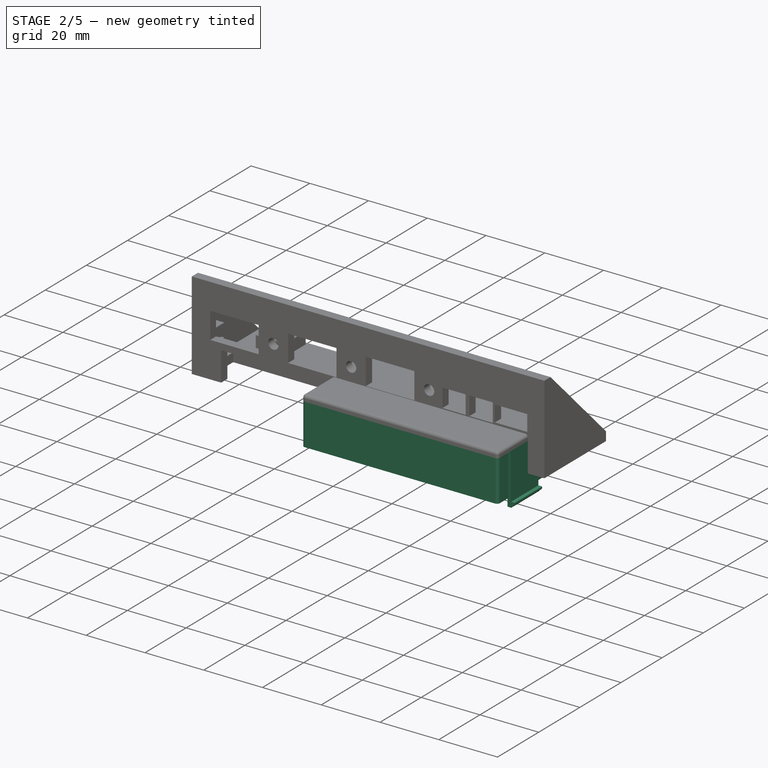
[diagram: stage 2 of 5 — iso view after this stage's code; geometry added in this stage tinted green]
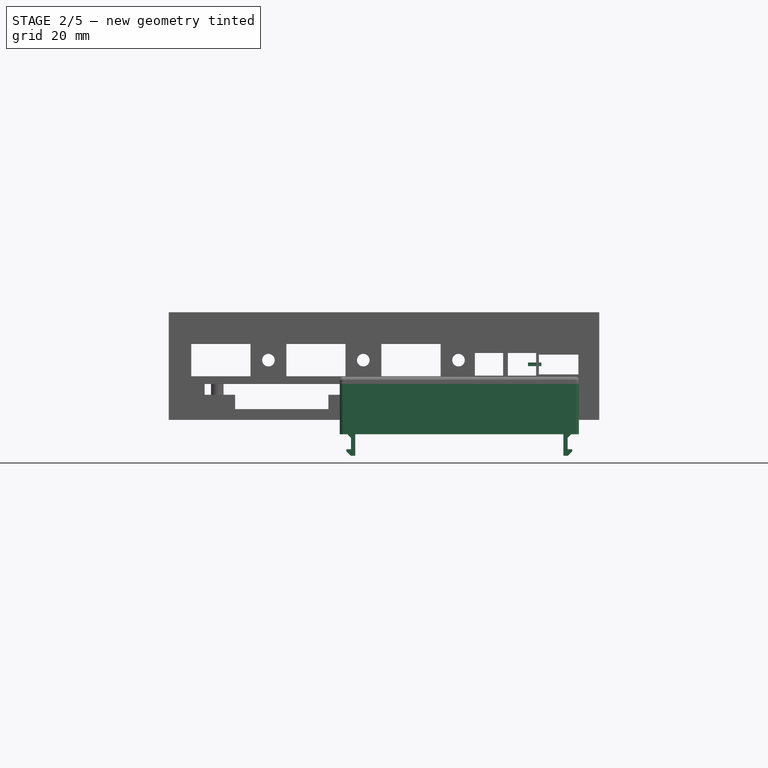
[diagram: stage 2 of 5 — front view after this stage's code; geometry added in this stage tinted green]
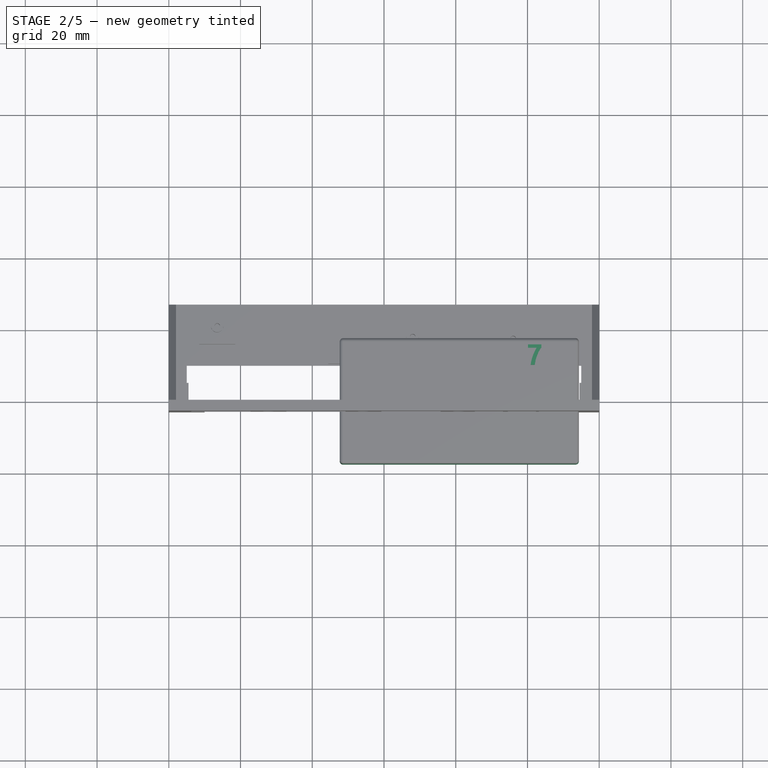
[diagram: stage 2 of 5 — top view after this stage's code; geometry added in this stage tinted green]
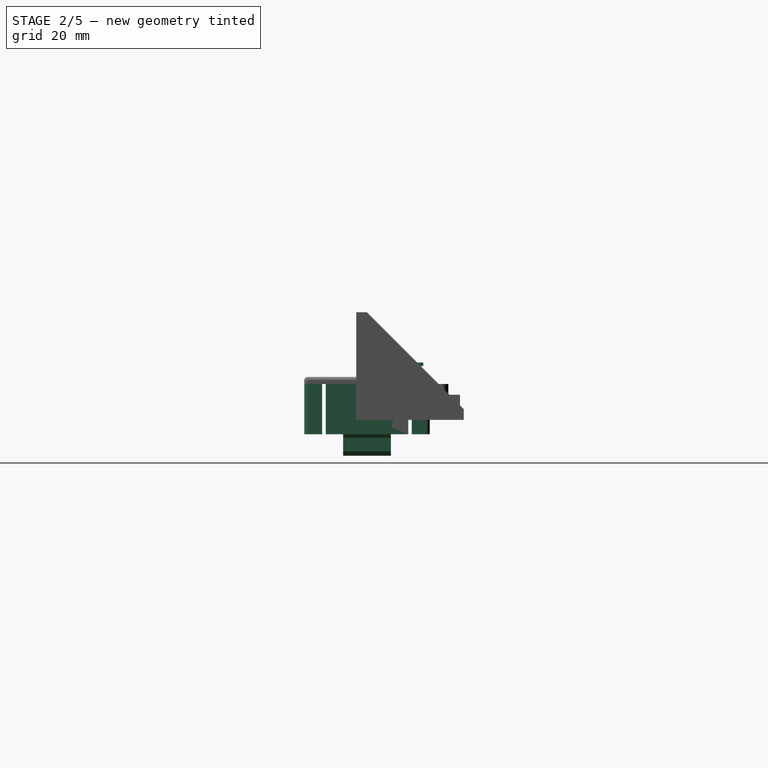
[diagram: stage 2 of 5 — right view after this stage's code; geometry added in this stage tinted green]
FEATURE [Sketcher::SketchObject] Sketch039
  ArcFitTolerance = 0
  AttachmentSupport = -> [Pad023]
  ExternalBSplineMaxDegree = 0
  ExternalBSplineTolerance = 0
  ExternalGeometry = -> [Pad023]
  FullyConstrained = true
  InternalTolerance = 1e-06
  InvalidShape = false
  MakeInternals = false
  MapMode = 5
  Placement = pos=(0,0,0) rot=(1,0,0;3.14159rad)
  Support = -> [Pad023]
  TreeRank = 0
  ValidateShape = false
  sketch-geometry (8):
    g0: LineSegment StartX=-12.35 StartY=17.5 StartZ=0 EndX=54.35 EndY=17.5 EndZ=0
    g1: LineSegment StartX=54.35 StartY=17.5 StartZ=0 EndX=54.35 EndY=-17.5 EndZ=0
    g2: LineSegment StartX=54.35 StartY=-17.5 StartZ=0 EndX=-12.35 EndY=-17.5 EndZ=0
    g3: LineSegment StartX=-12.35 StartY=-17.5 StartZ=0 EndX=-12.35 EndY=17.5 EndZ=0
    g4: LineSegment StartX=-10.35 StartY=15.5 StartZ=0 EndX=52.35 EndY=15.5 EndZ=0
    g5: LineSegment StartX=52.35 StartY=15.5 StartZ=0 EndX=52.35 EndY=-15.5 EndZ=0
    g6: LineSegment StartX=52.35 StartY=-15.5 StartZ=0 EndX=-10.35 EndY=-15.5 EndZ=0
    g7: LineSegment StartX=-10.35 StartY=-15.5 StartZ=0 EndX=-10.35 EndY=15.5 EndZ=0
  constraints (22):
    c: Coincident(g0,g1)
    c: Coincident(g1,g2)
    c: Coincident(g2,g3)
    c: Coincident(g3,g0)
    c: Horizontal(g0)
    c: Horizontal(g2)
    c: Vertical(g1)
    c: Vertical(g3)
    c: Coincident(g0,g-3)
    c: Coincident(g1,g-4)
    c: Coincident(g4,g5)
    c: Coincident(g5,g6)
    c: Coincident(g6,g7)
    c: Coincident(g7,g4)
    c: Horizontal(g4)
    c: Horizontal(g6)
    c: Vertical(g5)
    c: Vertical(g7)
    c: DistanceX(g5,g1) = 2
    c: DistanceY(g1,g5) = 2
    c: DistanceY(g4,g0) = 2
    c: DistanceX(g0,g4) = 2
FEATURE [PartDesign::Pad] Pad024
  AddSubType = 0
  AutoTaperInnerAngle = true
  BaseFeature = -> Pad023
  CheckUpToFaceLimits = true
  ClaimChildren = false
  Direction = (0,0,-1)
  Fit = 0
  FitJoin = 0
  InnerFit = 0
  InnerFitJoin = 0
  InvalidShape = false
  Length = 14
  Length2 = 10
  NewSolid = false
  Profile = -> Sketch039
  ReferenceAxis = -> Sketch039 [N_Axis]
  Suppress = false
  TaperInnerAngle = 0
  TaperInnerAngleRev = 0
  TreeRank = 0
  Type = 0
  ValidateShape = true
  _ProfileBasedVersion = 0
FEATURE [Sketcher::SketchObject] Sketch040
  ArcFitTolerance = 0
  AttachmentSupport = -> [Pad024]
  ExternalBSplineMaxDegree = 0
  ExternalBSplineTolerance = 0
  ExternalGeometry = -> [Pad024]
  FullyConstrained = true
  InternalTolerance = 1e-06
  InvalidShape = false
  MakeInternals = false
  MapMode = 5
  Placement = pos=(0,0,-14) rot=(1,0,0;3.14159rad)
  Support = -> [Pad024]
  TreeRank = 0
  ValidateShape = false
  sketch-geometry (4):
    g0: LineSegment StartX=-12.35 StartY=12.5 StartZ=0 EndX=54.35 EndY=12.5 EndZ=0
    g1: LineSegment StartX=54.35 StartY=12.5 StartZ=0 EndX=54.35 EndY=-12.5 EndZ=0
    g2: LineSegment StartX=54.35 StartY=-12.5 StartZ=0 EndX=-12.35 EndY=-12.5 EndZ=0
    g3: LineSegment StartX=-12.35 StartY=-12.5 StartZ=0 EndX=-12.35 EndY=12.5 EndZ=0
  constraints (11):
    c: Coincident(g0,g1)
    c: Coincident(g1,g2)
    c: Coincident(g2,g3)
    c: Coincident(g3,g0)
    c: Horizontal(g0)
    c: Horizontal(g2)
    c: Vertical(g1)
    c: PointOnObject(g0,g-4)
    c: PointOnObject(g1,g-3)
    c: DistanceY(g3,g3) = 25
    c: Symmetric(g2,g0,g-1)
FEATURE [PartDesign::Pocket] Pocket014
  AddSubType = 1
  AutoTaperInnerAngle = true
  BaseFeature = -> Pad024
  CheckUpToFaceLimits = true
  ClaimChildren = false
  Direction = (0,0,1)
  Fit = 0
  FitJoin = 0
  InnerFit = 0
  InnerFitJoin = 0
  InvalidShape = false
  Length = 14
  Length2 = 5
  NewSolid = false
  Profile = -> Sketch040
  ReferenceAxis = -> Sketch040 [N_Axis]
  Suppress = false
  TaperInnerAngle = 0
  TaperInnerAngleRev = 0
  TreeRank = 0
  Type = 0
  ValidateShape = true
  _ProfileBasedVersion = 0
  _Version = 0
FEATURE [Sketcher::SketchObject] Sketch041
  ArcFitTolerance = 0
  AttachmentSupport = -> [Pocket014]
  ExternalBSplineMaxDegree = 0
  ExternalBSplineTolerance = 0
  ExternalGeometry = -> [Pocket014]
  FullyConstrained = true
  InternalTolerance = 1e-06
  InvalidShape = false
  MakeInternals = false
  MapMode = 5
  Placement = pos=(0,0,0) rot=(1,0,0;3.14159rad)
  Support = -> [Pocket014]
  TreeRank = 0
  ValidateShape = false
  sketch-geometry (8):
    g0: LineSegment StartX=-12.35 StartY=11.5 StartZ=0 EndX=-10.35 EndY=11.5 EndZ=0
    g1: LineSegment StartX=-10.35 StartY=11.5 StartZ=0 EndX=-10.35 EndY=-11.5 EndZ=0
    g2: LineSegment StartX=-10.35 StartY=-11.5 StartZ=0 EndX=-12.35 EndY=-11.5 EndZ=0
    g3: LineSegment StartX=-12.35 StartY=-11.5 StartZ=0 EndX=-12.35 EndY=11.5 EndZ=0
    g4: LineSegment StartX=52.35 StartY=11.5 StartZ=0 EndX=54.35 EndY=11.5 EndZ=0
    g5: LineSegment StartX=54.35 StartY=11.5 StartZ=0 EndX=54.35 EndY=-11.5 EndZ=0
    g6: LineSegment StartX=54.35 StartY=-11.5 StartZ=0 EndX=52.35 EndY=-11.5 EndZ=0
    g7: LineSegment StartX=52.35 StartY=-11.5 StartZ=0 EndX=52.35 EndY=11.5 EndZ=0
  constraints (22):
    c: Coincident(g0,g1)
    c: Coincident(g1,g2)
    c: Coincident(g2,g3)
    c: Coincident(g3,g0)
    c: Horizontal(g0)
    c: Horizontal(g2)
    c: Vertical(g1)
    c: PointOnObject(g0,g-3)
    c: DistanceY(g3,g3) = 23
    c: Symmetric(g2,g0,g-1)
    c: PointOnObject(g1,g-4)
    c: Coincident(g4,g5)
    c: Coincident(g5,g6)
    c: Coincident(g6,g7)
    c: Coincident(g7,g4)
    c: Horizontal(g4)
    c: Horizontal(g6)
    c: Vertical(g7)
    c: PointOnObject(g4,g-5)
    c: PointOnObject(g5,g-6)
    c: Equal(g5,g3)
    c: Symmetric(g5,g4,g-1)
FEATURE [PartDesign::Pad] Pad025
  AddSubType = 0
  AutoTaperInnerAngle = true
  BaseFeature = -> Pocket014
  CheckUpToFaceLimits = true
  ClaimChildren = false
  Direction = (0,0,-1)
  Fit = 0
  FitJoin = 0
  InnerFit = 0
  InnerFitJoin = 0
  InvalidShape = false
  Length = 14
  Length2 = 10
  NewSolid = false
  Profile = -> Sketch041
  ReferenceAxis = -> Sketch041 [N_Axis]
  Suppress = false
  TaperInnerAngle = 0
  TaperInnerAngleRev = 0
  TreeRank = 0
  Type = 0
  ValidateShape = true
  _ProfileBasedVersion = 0
FEATURE [Sketcher::SketchObject] Sketch042
  ArcFitTolerance = 0
  AttachmentSupport = -> [Pad025]
  ExternalBSplineMaxDegree = 0
  ExternalBSplineTolerance = 0
  ExternalGeometry = -> [Pad025]
  FullyConstrained = true
  InternalTolerance = 1e-06
  InvalidShape = false
  MakeInternals = false
  MapMode = 5
  Placement = pos=(0,0,-14) rot=(1,0,0;3.14159rad)
  Support = -> [Pad025]
  TreeRank = 0
  ValidateShape = false
  sketch-geometry (9):
    g0: LineSegment [constr] StartX=-9.5 StartY=-7.65 StartZ=0 EndX=-5.5 EndY=-7.65 EndZ=0
    g1: LineSegment StartX=-12.35 StartY=6.65 StartZ=0 EndX=-8 EndY=6.65 EndZ=0
    g2: LineSegment StartX=-8 StartY=6.65 StartZ=0 EndX=-8 EndY=-6.65 EndZ=0
    g3: LineSegment StartX=-8 StartY=-6.65 StartZ=0 EndX=-12.35 EndY=-6.65 EndZ=0
    g4: LineSegment StartX=-12.35 StartY=-6.65 StartZ=0 EndX=-12.35 EndY=6.65 EndZ=0
    g5: LineSegment StartX=54.35 StartY=6.65 StartZ=0 EndX=50 EndY=6.65 EndZ=0
    g6: LineSegment StartX=50 StartY=6.65 StartZ=0 EndX=50 EndY=-6.65 EndZ=0
    g7: LineSegment StartX=50 StartY=-6.65 StartZ=0 EndX=54.35 EndY=-6.65 EndZ=0
    g8: LineSegment StartX=54.35 StartY=-6.65 StartZ=0 EndX=54.35 EndY=6.65 EndZ=0
  constraints (26):
    c: Horizontal(g0)
    c: DistanceX(g0,g0) = 4
    c: DistanceX(g0,g-1) = 5.5
    c: DistanceY(g0,g-1) = 7.65
    c: Coincident(g1,g2)
    c: Coincident(g2,g3)
    c: Coincident(g3,g4)
    c: Coincident(g4,g1)
    c: Horizontal(g1)
    c: Horizontal(g3)
    c: Vertical(g4)
    c: PointOnObject(g1,g-5)
    c: DistanceX(g0,g2) = 1.5
    c: DistanceY(g0,g2) = 1
    c: Symmetric(g2,g1,g-1)
    c: Coincident(g5,g6)
    c: Coincident(g6,g7)
    c: Coincident(g7,g8)
    c: Coincident(g8,g5)
    c: Horizontal(g5)
    c: Horizontal(g7)
    c: Vertical(g6)
    c: PointOnObject(g5,g-3)
    c: Equal(g5,g1)
    c: Symmetric(g7,g5,g-1)
    c: Equal(g8,g2)
FEATURE [PartDesign::Pad] Pad026
  AddSubType = 0
  AutoTaperInnerAngle = true
  BaseFeature = -> Pad025
  CheckUpToFaceLimits = true
  ClaimChildren = false
  Direction = (0,0,-1)
  Fit = 0
  FitJoin = 0
  InnerFit = 0
  InnerFitJoin = 0
  InvalidShape = false
  Length = 2
  Length2 = 10
  NewSolid = false
  Profile = -> Sketch042
  ReferenceAxis = -> Sketch042 [N_Axis]
  Reversed = true
  Suppress = false
  TaperInnerAngle = 0
  TaperInnerAngleRev = 0
  TreeRank = 0
  Type = 0
  ValidateShape = true
  _ProfileBasedVersion = 0
FEATURE [Sketcher::SketchObject] Sketch043
  ArcFitTolerance = 0
  AttachmentSupport = -> [Pad026]
  ExternalBSplineMaxDegree = 0
  ExternalBSplineTolerance = 0
  ExternalGeometry = -> [Pad026]
  FullyConstrained = true
  InternalTolerance = 1e-06
  InvalidShape = false
  MakeInternals = false
  MapMode = 5
  Placement = pos=(0,0,-14) rot=(1,0,0;3.14159rad)
  Support = -> [Pad026]
  TreeRank = 0
  ValidateShape = false
  sketch-geometry (8):
    g0: LineSegment StartX=-8 StartY=6.65 StartZ=0 EndX=-9.2 EndY=6.65 EndZ=0
    g1: LineSegment StartX=-9.2 StartY=6.65 StartZ=0 EndX=-9.2 EndY=-6.65 EndZ=0
    g2: LineSegment StartX=-9.2 StartY=-6.65 StartZ=0 EndX=-8 EndY=-6.65 EndZ=0
    g3: LineSegment StartX=-8 StartY=-6.65 StartZ=0 EndX=-8 EndY=6.65 EndZ=0
    g4: LineSegment StartX=50 StartY=6.65 StartZ=0 EndX=51.2 EndY=6.65 EndZ=0
    g5: LineSegment StartX=51.2 StartY=6.65 StartZ=0 EndX=51.2 EndY=-6.65 EndZ=0
    g6: LineSegment StartX=51.2 StartY=-6.65 StartZ=0 EndX=50 EndY=-6.65 EndZ=0
    g7: LineSegment StartX=50 StartY=-6.65 StartZ=0 EndX=50 EndY=6.65 EndZ=0
  constraints (22):
    c: Coincident(g0,g1)
    c: Coincident(g1,g2)
    c: Coincident(g2,g3)
    c: Coincident(g3,g0)
    c: Horizontal(g0)
    c: Horizontal(g2)
    c: Vertical(g1)
    c: Vertical(g3)
    c: Coincident(g0,g-3)
    c: Coincident(g4,g5)
    c: Coincident(g5,g6)
    c: Coincident(g6,g7)
    c: Coincident(g7,g4)
    c: Horizontal(g4)
    c: Horizontal(g6)
    c: Vertical(g5)
    c: Vertical(g7)
    c: Coincident(g4,g-4)
    c: PointOnObject(g-4,g6)
    c: PointOnObject(g-3,g2)
    c: DistanceX(g2,g2) = 1.2
    c: Equal(g2,g6)
FEATURE [PartDesign::Pad] Pad027
  AddSubType = 0
  AutoTaperInnerAngle = true
  BaseFeature = -> Pad026
  CheckUpToFaceLimits = true
  ClaimChildren = false
  Direction = (0,0,-1)
  Fit = 0
  FitJoin = 0
  InnerFit = 0
  InnerFitJoin = 0
  InvalidShape = false
  Length = 6
  Length2 = 10
  NewSolid = false
  Profile = -> Sketch043
  ReferenceAxis = -> Sketch043 [N_Axis]
  Suppress = false
  TaperInnerAngle = 0
  TaperInnerAngleRev = 0
  TreeRank = 0
  Type = 0
  ValidateShape = true
  _ProfileBasedVersion = 0
FEATURE [Sketcher::SketchObject] Sketch044
  ArcFitTolerance = 0
  AttachmentSupport = -> [Pad027]
  ExternalBSplineMaxDegree = 0
  ExternalBSplineTolerance = 0
  ExternalGeometry = -> [Pad027]
  FullyConstrained = true
  InternalTolerance = 1e-06
  InvalidShape = false
  MakeInternals = false
  MapMode = 5
  Placement = pos=(0,0,-20) rot=(1,0,0;3.14159rad)
  Support = -> [Pad027]
  TreeRank = 0
  ValidateShape = false
  sketch-geometry (8):
    g0: LineSegment StartX=-8 StartY=-6.65 StartZ=0 EndX=-10.5 EndY=-6.65 EndZ=0
    g1: LineSegment StartX=-10.5 StartY=-6.65 StartZ=0 EndX=-10.5 EndY=6.65 EndZ=0
    g2: LineSegment StartX=-10.5 StartY=6.65 StartZ=0 EndX=-8 EndY=6.65 EndZ=0
    g3: LineSegment StartX=-8 StartY=6.65 StartZ=0 EndX=-8 EndY=-6.65 EndZ=0
    g4: LineSegment StartX=50 StartY=-6.65 StartZ=0 EndX=52.5 EndY=-6.65 EndZ=0
    g5: LineSegment StartX=52.5 StartY=-6.65 StartZ=0 EndX=52.5 EndY=6.65 EndZ=0
    g6: LineSegment StartX=52.5 StartY=6.65 StartZ=0 EndX=50 EndY=6.65 EndZ=0
    g7: LineSegment StartX=50 StartY=6.65 StartZ=0 EndX=50 EndY=-6.65 EndZ=0
  constraints (22):
    c: Coincident(g0,g1)
    c: Coincident(g1,g2)
    c: Coincident(g2,g3)
    c: Coincident(g3,g0)
    c: Horizontal(g0)
    c: Horizontal(g2)
    c: Vertical(g1)
    c: Vertical(g3)
    c: Coincident(g0,g-4)
    c: Coincident(g4,g5)
    c: Coincident(g5,g6)
    c: Coincident(g6,g7)
    c: Coincident(g7,g4)
    c: Horizontal(g4)
    c: Horizontal(g6)
    c: Vertical(g5)
    c: Vertical(g7)
    c: Coincident(g4,g-3)
    c: PointOnObject(g-3,g6)
    c: PointOnObject(g-4,g2)
    c: DistanceX(g2,g2) = 2.5
    c: Equal(g2,g6)
FEATURE [PartDesign::Pad] Pad028
  AddSubType = 0
  AutoTaperInnerAngle = true
  BaseFeature = -> Pad027
  CheckUpToFaceLimits = true
  ClaimChildren = false
  Direction = (0,0,-1)
  Fit = 0
  FitJoin = 0
  InnerFit = 0
  InnerFitJoin = 0
  InvalidShape = false
  Length = 1.8
  Length2 = 10
  NewSolid = false
  Profile = -> Sketch044
  ReferenceAxis = -> Sketch044 [N_Axis]
  Reversed = true
  Suppress = false
  TaperInnerAngle = 0
  TaperInnerAngleRev = 0
  TreeRank = 0
  Type = 0
  ValidateShape = true
  _ProfileBasedVersion = 0
FEATURE [PartDesign::Chamfer] Chamfer002
  AddSubType = 0
  Angle = 45
  Base = -> Pad028 [Edge184,Edge183]
  BaseFeature = -> Pad028
  ChamferType = 0
  FlipDirection = false
  InvalidShape = false
  NewSolid = false
  Size = 1.2
  Size2 = 1
  SupportTransform = false
  Suppress = false
  TreeRank = 0
  UseAllEdges = false
  ValidateShape = true
FEATURE [PartDesign::Chamfer] Chamfer003
  AddSubType = 0
  Angle = 45
  Base = -> Chamfer002 [Edge78,Edge41]
  BaseFeature = -> Chamfer002
  ChamferType = 0
  FlipDirection = false
  InvalidShape = false
  NewSolid = false
  Size = 2.3
  Size2 = 1
  SupportTransform = false
  Suppress = false
  TreeRank = 0
  UseAllEdges = false
  ValidateShape = true
FEATURE [Part::Extrusion] Extrude006  label="extrude-digit-7"
  AutoTaperInnerAngle = true
  Base = -> ShapeString006
  Dir = (0,0,1)
  DirMode = 2
  FaceMakerClass = Part::FaceMakerBullseye
  InvalidShape = false
  LengthFwd = 1
  LengthRev = 0
  Solid = false
  Symmetric = false
  TaperInnerAngle = 0
  TaperInnerAngleRev = 0
  TreeRank = 0
  ValidateShape = false
FEATURE [App::DocumentObjectGroup] Group003  label="digits001"
  ClaimAllChildren = true
  ExportMode = 1
  Group = -> [ShapeString,ShapeString001,ShapeString002,ShapeString003,ShapeString004,ShapeString005,ShapeString006]
  TreeRank = 0
  _GroupVersion = 1
FEATURE [PartDesign::Fillet] Fillet001
  AddSubType = 0
  Base = -> Chamfer003 [Edge38,Edge19]
  BaseFeature = -> Chamfer003
  InvalidShape = false
  NewSolid = false
  Radius = 2
  SupportTransform = false
  Suppress = false
  TreeRank = 0
  UseAllEdges = false
  ValidateShape = true
FEATURE [PartDesign::Fillet] Fillet002
  AddSubType = 0
  Base = -> Fillet001 [Edge141,Edge120,Edge143,Edge87,Edge178,Edge121,Edge86,Edge145,Edge148,Edge88,Edge119,Edge177]
  BaseFeature = -> Fillet001
  InvalidShape = false
  NewSolid = false
  Radius = 1
  SupportTransform = false
  Suppress = false
  TreeRank = 0
  UseAllEdges = false
  ValidateShape = true
FEATURE [PartDesign::Fillet] Fillet003
  AddSubType = 0
  Base = -> Fillet002 [Edge95,Edge98,Edge142,Edge140,Edge118,Edge119,Edge117,Edge102,Edge99,Edge94]
  BaseFeature = -> Fillet002
  InvalidShape = false
  NewSolid = false
  Radius = 1
  SupportTransform = false
  Suppress = false
  TreeRank = 0
  UseAllEdges = false
  ValidateShape = true
FEATURE [Sketcher::SketchObject] Sketch045
  ArcFitTolerance = 0
  AttachmentSupport = -> [Fillet003]
  ExternalBSplineMaxDegree = 0
  ExternalBSplineTolerance = 0
  ExternalGeometry = -> [Fillet003]
  FullyConstrained = true
  InternalTolerance = 1e-06
  InvalidShape = false
  MakeInternals = false
  MapMode = 5
  Placement = pos=(0,0,0) rot=(1,0,0;3.14159rad)
  Support = -> [Fillet003]
  TreeRank = 0
  ValidateShape = false
  sketch-geometry (5):
    g0: GeomPoint [constr] X=21 Y=-1.4e-15 Z=0
    g1: LineSegment StartX=-4 StartY=11 StartZ=0 EndX=46 EndY=11 EndZ=0
    g2: LineSegment StartX=46 StartY=11 StartZ=0 EndX=46 EndY=-11 EndZ=0
    g3: LineSegment StartX=46 StartY=-11 StartZ=0 EndX=-4 EndY=-11 EndZ=0
    g4: LineSegment StartX=-4 StartY=-11 StartZ=0 EndX=-4 EndY=11 EndZ=0
  constraints (12):
    c: Symmetric(g-4,g-3,g0)
    c: Coincident(g1,g2)
    c: Coincident(g2,g3)
    c: Coincident(g3,g4)
    c: Coincident(g4,g1)
    c: Horizontal(g1)
    c: Horizontal(g3)
    c: Vertical(g2)
    c: Vertical(g4)
    c: DistanceY(g4,g4) = 22
    c: DistanceX(g1,g1) = 50
    c: Symmetric(g2,g1,g0)
FEATURE [PartDesign::Pocket] Pocket015
  AddSubType = 1
  AutoTaperInnerAngle = true
  BaseFeature = -> Fillet003
  CheckUpToFaceLimits = true
  ClaimChildren = false
  Direction = (0,0,1)
  Fit = 0
  FitJoin = 0
  InnerFit = 0
  InnerFitJoin = 0
  InvalidShape = false
  Length = 0.12
  Length2 = 5
  NewSolid = false
  Profile = -> Sketch045
  ReferenceAxis = -> Sketch045 [N_Axis]
  Suppress = false
  TaperInnerAngle = 0
  TaperInnerAngleRev = 0
  TreeRank = 0
  Type = 0
  ValidateShape = true
  _ProfileBasedVersion = 0
  _Version = 0
FEATURE [PartDesign::Body] Body006  label="fuse-holder"
  AutoGroupSolids = false
  BaseFeature = -> Cut
  ClaimAllChildren = false
  ExportMode = 0
  Group = -> [BaseFeature,Chamfer004,Chamfer005,Chamfer006]
  InvalidShape = false
  Origin = -> Origin006
  Tip = -> Chamfer006
  TreeRank = 0
  ValidateShape = false
  _ExportChildren = -> [BaseFeature,Chamfer004,Chamfer005,Chamfer006]
  _GroupVersion = 1
FEATURE [PartDesign::Chamfer] Chamfer007
  AddSubType = 0
  Angle = 45
  Base = -> Pocket015 [Edge251,Edge244]
  BaseFeature = -> Pocket015
  ChamferType = 0
  FlipDirection = false
  InvalidShape = false
  NewSolid = false
  Size = 1
  Size2 = 1
  SupportTransform = false
  Suppress = false
  TreeRank = 0
  UseAllEdges = false
  ValidateShape = true
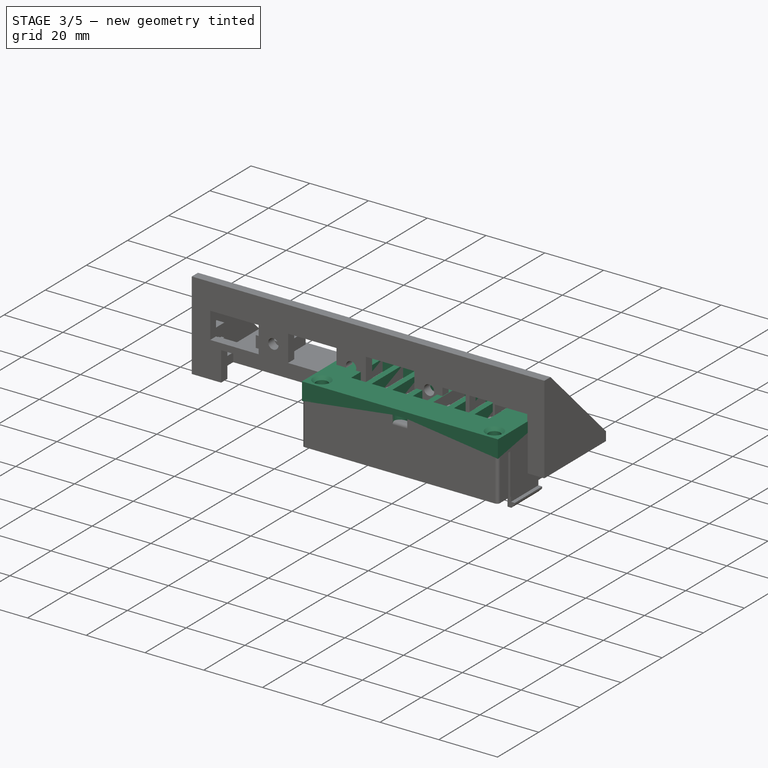
[diagram: stage 3 of 5 — iso view after this stage's code; geometry added in this stage tinted green]
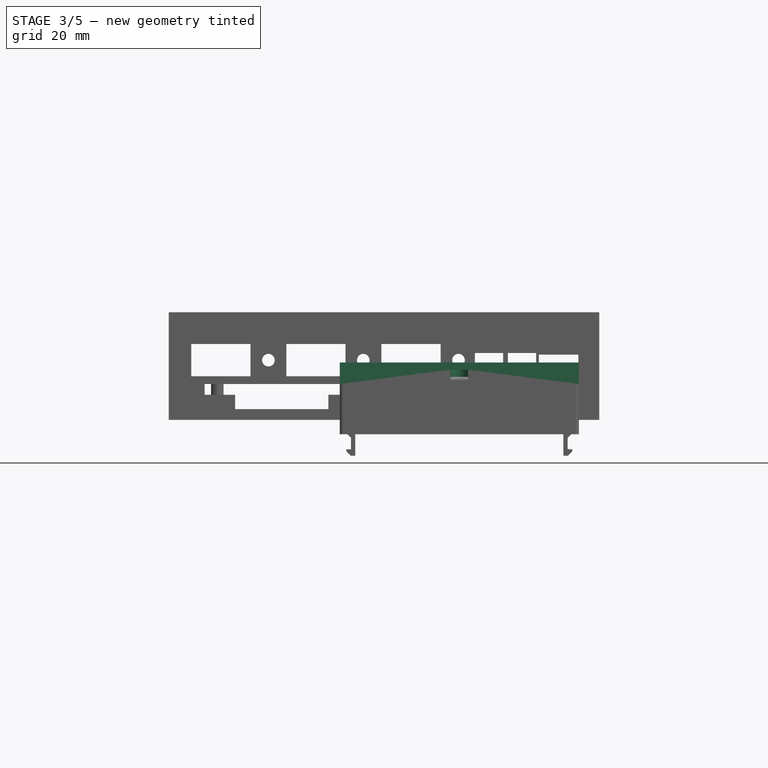
[diagram: stage 3 of 5 — front view after this stage's code; geometry added in this stage tinted green]
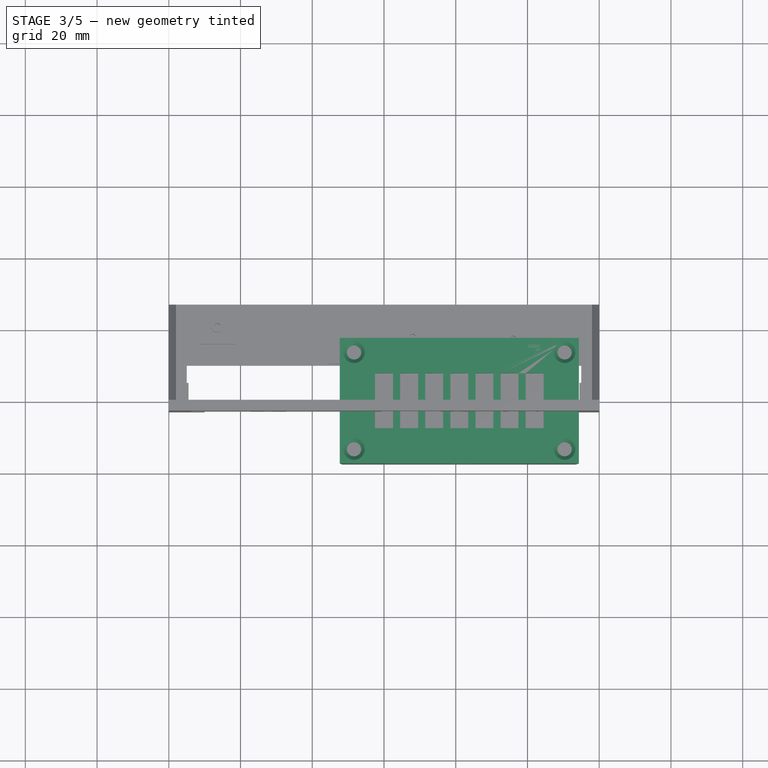
[diagram: stage 3 of 5 — top view after this stage's code; geometry added in this stage tinted green]
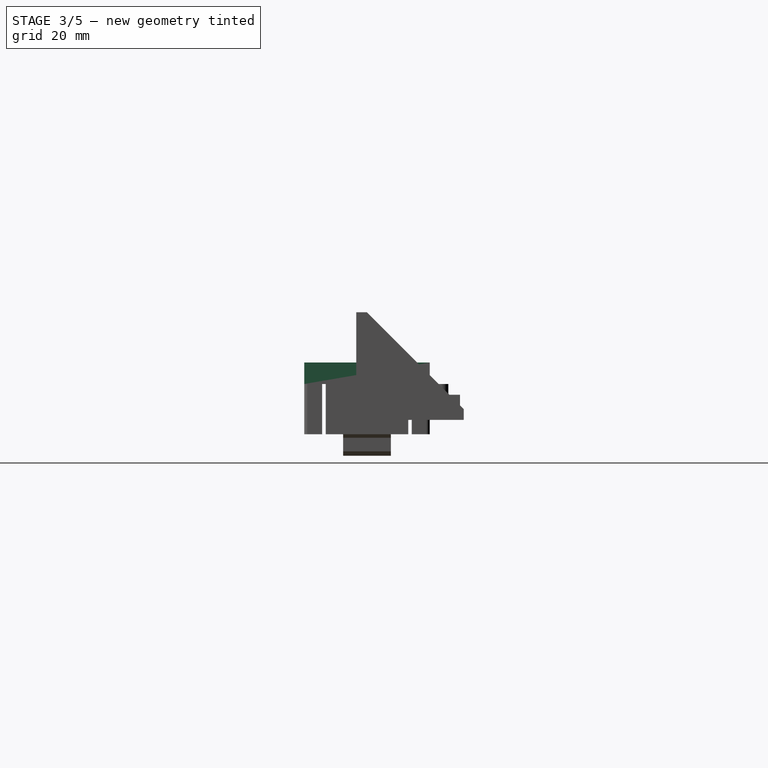
[diagram: stage 3 of 5 — right view after this stage's code; geometry added in this stage tinted green]
FEATURE [Sketcher::SketchObject] Sketch031
  ArcFitTolerance = 0
  AttachmentSupport = -> [XY_Plane004]
  ExternalBSplineMaxDegree = 0
  ExternalBSplineTolerance = 0
  FullyConstrained = true
  InternalTolerance = 1e-06
  InvalidShape = false
  MakeInternals = false
  MapMode = 5
  Support = -> [XY_Plane004]
  TreeRank = 0
  ValidateShape = false
  sketch-geometry (8):
    g0: LineSegment [constr] StartX=-2.35 StartY=7.5 StartZ=0 EndX=44.35 EndY=7.5 EndZ=0
    g1: LineSegment [constr] StartX=44.35 StartY=7.5 StartZ=0 EndX=44.35 EndY=-7.5 EndZ=0
    g2: LineSegment [constr] StartX=44.35 StartY=-7.5 StartZ=0 EndX=-2.35 EndY=-7.5 EndZ=0
    g3: LineSegment [constr] StartX=-2.35 StartY=-7.5 StartZ=0 EndX=-2.35 EndY=7.5 EndZ=0
    g4: LineSegment StartX=-12.35 StartY=17.5 StartZ=0 EndX=54.35 EndY=17.5 EndZ=0
    g5: LineSegment StartX=54.35 StartY=17.5 StartZ=0 EndX=54.35 EndY=-17.5 EndZ=0
    g6: LineSegment StartX=54.35 StartY=-17.5 StartZ=0 EndX=-12.35 EndY=-17.5 EndZ=0
    g7: LineSegment StartX=-12.35 StartY=-17.5 StartZ=0 EndX=-12.35 EndY=17.5 EndZ=0
  constraints (24):
    c: Coincident(g0,g1)
    c: Coincident(g1,g2)
    c: Coincident(g2,g3)
    c: Coincident(g3,g0)
    c: Horizontal(g0)
    c: Horizontal(g2)
    c: Vertical(g1)
    c: Vertical(g3)
    c: DistanceX(g0,g-1) = 2.35
    c: DistanceY(g-1,g0) = 7.5
    c: DistanceY(g3,g3) = 15
    c: DistanceX(g2,g2) = 46.7
    c: Coincident(g4,g5)
    c: Coincident(g5,g6)
    c: Coincident(g6,g7)
    c: Coincident(g7,g4)
    c: Horizontal(g4)
    c: Horizontal(g6)
    c: Vertical(g5)
    c: Vertical(g7)
    c: DistanceX(g4,g0) = 10
    c: DistanceX(g0,g5) = 10
    c: DistanceY(g6,g2) = 10
    c: DistanceY(g0,g4) = 10
FEATURE [PartDesign::Pad] Pad022
  AddSubType = 0
  AutoTaperInnerAngle = true
  CheckUpToFaceLimits = true
  ClaimChildren = false
  Direction = (0,0,1)
  Fit = 0
  FitJoin = 0
  InnerFit = 0
  InnerFitJoin = 0
  InvalidShape = false
  Length = 6
  Length2 = 10
  NewSolid = false
  Profile = -> Sketch031
  ReferenceAxis = -> Sketch031 [N_Axis]
  Suppress = false
  TaperInnerAngle = 0
  TaperInnerAngleRev = 0
  TreeRank = 0
  Type = 0
  ValidateShape = true
  _ProfileBasedVersion = 0
FEATURE [Sketcher::SketchObject] Sketch032
  ArcFitTolerance = 0
  AttachmentSupport = -> [Pad022]
  ExternalBSplineMaxDegree = 0
  ExternalBSplineTolerance = 0
  FullyConstrained = true
  InternalTolerance = 1e-06
  InvalidShape = false
  MakeInternals = false
  MapMode = 5
  Placement = pos=(0,0,6) rot=(0,0,1;0rad)
  Support = -> [Pad022]
  TreeRank = 0
  ValidateShape = false
  sketch-geometry (4):
    g0: LineSegment StartX=-2.5 StartY=7.65 StartZ=0 EndX=2.5 EndY=7.65 EndZ=0
    g1: LineSegment StartX=2.5 StartY=7.65 StartZ=0 EndX=2.5 EndY=-7.65 EndZ=0
    g2: LineSegment StartX=2.5 StartY=-7.65 StartZ=0 EndX=-2.5 EndY=-7.65 EndZ=0
    g3: LineSegment StartX=-2.5 StartY=-7.65 StartZ=0 EndX=-2.5 EndY=7.65 EndZ=0
  constraints (11):
    c: Coincident(g0,g1)
    c: Coincident(g1,g2)
    c: Coincident(g2,g3)
    c: Coincident(g3,g0)
    c: Horizontal(g0)
    c: Horizontal(g2)
    c: Vertical(g1)
    c: Vertical(g3)
    c: DistanceX(g0,g0) = 5
    c: DistanceY(g1,g1) = 15.3
    c: Symmetric(g1,g0,g-1)
FEATURE [PartDesign::Pocket] Pocket008
  AddSubType = 1
  AutoTaperInnerAngle = true
  BaseFeature = -> Pad022
  CheckUpToFaceLimits = true
  ClaimChildren = false
  Direction = (0,0,-1)
  Fit = 0
  FitJoin = 0
  InnerFit = 0
  InnerFitJoin = 0
  InvalidShape = false
  Length = 8
  Length2 = 5
  NewSolid = false
  Profile = -> Sketch032
  ReferenceAxis = -> Sketch032 [N_Axis]
  Suppress = false
  TaperInnerAngle = 0
  TaperInnerAngleRev = 0
  TreeRank = 0
  Type = 0
  ValidateShape = true
  _ProfileBasedVersion = 0
  _Version = 0
FEATURE [PartDesign::LinearPattern] LinearPattern
  AddSubType = 0
  BaseFeature = -> Pocket008
  CopyShape = true
  Direction = -> Sketch032 [H_Axis]
  InvalidShape = false
  Length = 42
  NewSolid = false
  Occurrences = 7
  OriginalSubs = -> [Pocket008]
  Originals = -> [Pocket008]
  ParallelTransform = true
  SubTransform = true
  Suppress = false
  TreeRank = 0
  ValidateShape = true
  _Version = 0
FEATURE [Sketcher::SketchObject] Sketch033
  ArcFitTolerance = 0
  AttachmentSupport = -> [LinearPattern]
  ExternalBSplineMaxDegree = 0
  ExternalBSplineTolerance = 0
  ExternalGeometry = -> [LinearPattern]
  FullyConstrained = true
  InternalTolerance = 1e-06
  InvalidShape = false
  MakeInternals = false
  MapMode = 5
  Placement = pos=(0,0,6) rot=(0,0,1;0rad)
  Support = -> [LinearPattern]
  TreeRank = 0
  ValidateShape = false
  sketch-geometry (4):
    g0: Circle CenterX=-8.35 CenterY=13.5 CenterZ=0 NormalX=0 NormalY=0 NormalZ=1 AngleXU=0 Radius=2
    g1: Circle CenterX=50.35 CenterY=13.5 CenterZ=0 NormalX=0 NormalY=0 NormalZ=1 AngleXU=0 Radius=2
    g2: Circle CenterX=50.35 CenterY=-13.5 CenterZ=0 NormalX=0 NormalY=0 NormalZ=1 AngleXU=0 Radius=2
    g3: Circle CenterX=-8.35 CenterY=-13.5 CenterZ=0 NormalX=0 NormalY=0 NormalZ=1 AngleXU=0 Radius=2
  constraints (12):
    c: Diameter(g0) = 4
    c: Equal(g0,g1)
    c: Equal(g1,g2)
    c: Equal(g2,g3)
    c: DistanceX(g-3,g0) = 4
    c: DistanceY(g0,g-3) = 4
    c: DistanceY(g-4,g3) = 4
    c: DistanceY(g-4,g2) = 4
    c: DistanceY(g1,g-3) = 4
    c: DistanceX(g1,g-3) = 4
    c: DistanceX(g2,g-4) = 4
    c: DistanceX(g-4,g3) = 4
FEATURE [PartDesign::Pocket] Pocket009
  AddSubType = 1
  AutoTaperInnerAngle = true
  BaseFeature = -> LinearPattern
  CheckUpToFaceLimits = true
  ClaimChildren = false
  Direction = (0,0,-1)
  Fit = 0
  FitJoin = 0
  InnerFit = 0
  InnerFitJoin = 0
  InvalidShape = false
  Length = 4.5
  Length2 = 5
  NewSolid = false
  Profile = -> Sketch033
  ReferenceAxis = -> Sketch033 [N_Axis]
  Suppress = false
  TaperInnerAngle = 0
  TaperInnerAngleRev = 0
  TreeRank = 0
  Type = 0
  ValidateShape = true
  _ProfileBasedVersion = 0
  _Version = 0
FEATURE [Sketcher::SketchObject] Sketch034
  ArcFitTolerance = 0
  AttachmentSupport = -> [Pocket009]
  ExternalBSplineMaxDegree = 0
  ExternalBSplineTolerance = 0
  ExternalGeometry = -> [Pocket009]
  FullyConstrained = true
  InternalTolerance = 1e-06
  InvalidShape = false
  MakeInternals = false
  MapMode = 5
  Placement = pos=(0,0,1.5) rot=(0,0,1;0rad)
  Support = -> [Pocket009]
  TreeRank = 0
  ValidateShape = false
  sketch-geometry (4):
    g0: Circle CenterX=-8.35 CenterY=13.5 CenterZ=0 NormalX=0 NormalY=0 NormalZ=1 AngleXU=0 Radius=1
    g1: Circle CenterX=50.35 CenterY=13.5 CenterZ=0 NormalX=0 NormalY=0 NormalZ=1 AngleXU=0 Radius=1
    g2: Circle CenterX=50.35 CenterY=-13.5 CenterZ=0 NormalX=0 NormalY=0 NormalZ=1 AngleXU=0 Radius=1
    g3: Circle CenterX=-8.35 CenterY=-13.5 CenterZ=0 NormalX=0 NormalY=0 NormalZ=1 AngleXU=0 Radius=1
  constraints (8):
    c: Coincident(g1,g-4)
    c: Coincident(g2,g-5)
    c: Coincident(g3,g-6)
    c: Equal(g0,g1)
    c: Equal(g1,g2)
    c: Equal(g2,g3)
    c: Diameter(g0) = 2
    c: Coincident(g0,g-7)
FEATURE [PartDesign::Pocket] Pocket010
  AddSubType = 1
  AutoTaperInnerAngle = true
  BaseFeature = -> Pocket009
  CheckUpToFaceLimits = true
  ClaimChildren = false
  Direction = (0,0,-1)
  Fit = 0
  FitJoin = 0
  InnerFit = 0
  InnerFitJoin = 0
  InvalidShape = false
  Length = 5
  Length2 = 5
  NewSolid = false
  Profile = -> Sketch034
  ReferenceAxis = -> Sketch034 [N_Axis]
  Suppress = false
  TaperInnerAngle = 0
  TaperInnerAngleRev = 0
  TreeRank = 0
  Type = 0
  ValidateShape = true
  _ProfileBasedVersion = 0
  _Version = 0
FEATURE [PartDesign::Chamfer] Chamfer
  AddSubType = 0
  Angle = 45
  Base = -> Pocket010 [Edge45,Edge76,Edge46,Edge59]
  BaseFeature = -> Pocket010
  ChamferType = 0
  FlipDirection = false
  InvalidShape = false
  NewSolid = false
  Size = 1
  Size2 = 1
  SupportTransform = false
  Suppress = false
  TreeRank = 0
  UseAllEdges = false
  ValidateShape = true
FEATURE [Sketcher::SketchObject] Sketch035
  ArcFitTolerance = 0
  AttachmentSupport = -> [Chamfer]
  ExternalBSplineMaxDegree = 0
  ExternalBSplineTolerance = 0
  ExternalGeometry = -> [Chamfer]
  FullyConstrained = true
  InternalTolerance = 1e-06
  InvalidShape = false
  MakeInternals = false
  MapMode = 5
  Placement = pos=(0,0,0) rot=(1,0,0;3.14159rad)
  Support = -> [Chamfer]
  TreeRank = 0
  ValidateShape = false
  sketch-geometry (2):
    g0: Circle CenterX=21 CenterY=17.5 CenterZ=0 NormalX=0 NormalY=0 NormalZ=1 AngleXU=0 Radius=2.5
    g1: Circle CenterX=21 CenterY=-17.5 CenterZ=0 NormalX=0 NormalY=0 NormalZ=1 AngleXU=0 Radius=4
  constraints (4):
    c: Diameter(g0) = 5
    c: Diameter(g1) = 8
    c: Symmetric(g-3,g-3,g0)
    c: Symmetric(g-4,g-4,g1)
FEATURE [PartDesign::Pocket] Pocket011
  AddSubType = 1
  AutoTaperInnerAngle = true
  BaseFeature = -> Chamfer
  CheckUpToFaceLimits = true
  ClaimChildren = false
  Direction = (0,0,1)
  Fit = 0
  FitJoin = 0
  InnerFit = 0
  InnerFitJoin = 0
  InvalidShape = false
  Length = 4
  Length2 = 5
  NewSolid = false
  Profile = -> Sketch035
  ReferenceAxis = -> Sketch035 [N_Axis]
  Suppress = false
  TaperInnerAngle = 0
  TaperInnerAngleRev = 0
  TreeRank = 0
  Type = 0
  ValidateShape = true
  _ProfileBasedVersion = 0
  _Version = 0
FEATURE [Part::Part2DObjectPython] ShapeString  label="digit-1"  # Draft 2D object (typed FeaturePython)
  FontFile = <path>
  InvalidShape = false
  MakeFace = true
  Placement = pos=(-2.3,10,5) rot=(0,0,1;0rad)
  Size = 3
  String = 1
  Tracking = 0
  TreeRank = 0
  ValidateShape = false
FEATURE [Part::Part2DObjectPython] ShapeString001  label="digit-2"  # Draft 2D object (typed FeaturePython)
  FontFile = <path>
  InvalidShape = false
  MakeFace = true
  Placement = pos=(4.7,10,5) rot=(0,0,1;0rad)
  Size = 3
  String = 2
  Tracking = 0
  TreeRank = 0
  ValidateShape = false
FEATURE [Part::Part2DObjectPython] ShapeString002  label="digit-3"  # Draft 2D object (typed FeaturePython)
  FontFile = <path>
  InvalidShape = false
  MakeFace = true
  Placement = pos=(11.7,10,5) rot=(0,0,1;0rad)
  Size = 3
  String = 3
  Tracking = 0
  TreeRank = 0
  ValidateShape = false
FEATURE [Part::Part2DObjectPython] ShapeString003  label="digit-4"  # Draft 2D object (typed FeaturePython)
  FontFile = <path>
  InvalidShape = false
  MakeFace = true
  Placement = pos=(18.7,10,5) rot=(0,0,1;0rad)
  Size = 3
  String = 4
  Tracking = 0
  TreeRank = 0
  ValidateShape = false
FEATURE [Part::Part2DObjectPython] ShapeString004  label="digit-5"  # Draft 2D object (typed FeaturePython)
  FontFile = <path>
  InvalidShape = false
  MakeFace = true
  Placement = pos=(25.7,10,5) rot=(0,0,1;0rad)
  Size = 3
  String = 5
  Tracking = 0
  TreeRank = 0
  ValidateShape = false
FEATURE [Part::Part2DObjectPython] ShapeString005  label="digit-6"  # Draft 2D object (typed FeaturePython)
  FontFile = <path>
  InvalidShape = false
  MakeFace = true
  Placement = pos=(32.7,10,5) rot=(0,0,1;0rad)
  Size = 3
  String = 6
  Tracking = 0
  TreeRank = 0
  ValidateShape = false
FEATURE [Part::Part2DObjectPython] ShapeString006  label="digit-7"  # Draft 2D object (typed FeaturePython)
  FontFile = <path>
  InvalidShape = false
  MakeFace = true
  Placement = pos=(39.7,10,5) rot=(0,0,1;0rad)
  Size = 3
  String = 7
  Tracking = 0
  TreeRank = 0
  ValidateShape = false
FEATURE [Part::Extrusion] Extrude  label="extrude-digit-1"
  AutoTaperInnerAngle = true
  Base = -> ShapeString
  Dir = (0,0,1)
  DirMode = 2
  FaceMakerClass = Part::FaceMakerBullseye
  InvalidShape = false
  LengthFwd = 1
  LengthRev = 0
  Solid = false
  Symmetric = false
  TaperInnerAngle = 0
  TaperInnerAngleRev = 0
  TreeRank = 0
  ValidateShape = false
FEATURE [Part::Extrusion] Extrude001  label="extrude-digit-2"
  AutoTaperInnerAngle = true
  Base = -> ShapeString001
  Dir = (0,0,1)
  DirMode = 2
  FaceMakerClass = Part::FaceMakerBullseye
  InvalidShape = false
  LengthFwd = 1
  LengthRev = 0
  Solid = false
  Symmetric = false
  TaperInnerAngle = 0
  TaperInnerAngleRev = 0
  TreeRank = 0
  ValidateShape = false
FEATURE [Part::Extrusion] Extrude002  label="extrude-digit-3"
  AutoTaperInnerAngle = true
  Base = -> ShapeString002
  Dir = (0,0,1)
  DirMode = 2
  FaceMakerClass = Part::FaceMakerBullseye
  InvalidShape = false
  LengthFwd = 1
  LengthRev = 0
  Solid = false
  Symmetric = false
  TaperInnerAngle = 0
  TaperInnerAngleRev = 0
  TreeRank = 0
  ValidateShape = false
FEATURE [Part::Extrusion] Extrude003  label="extrude-digit-4"
  AutoTaperInnerAngle = true
  Base = -> ShapeString003
  Dir = (0,0,1)
  DirMode = 2
  FaceMakerClass = Part::FaceMakerBullseye
  InvalidShape = false
  LengthFwd = 1
  LengthRev = 0
  Solid = false
  Symmetric = false
  TaperInnerAngle = 0
  TaperInnerAngleRev = 0
  TreeRank = 0
  ValidateShape = false
FEATURE [Part::Extrusion] Extrude004  label="extrude-digit-5"
  AutoTaperInnerAngle = true
  Base = -> ShapeString004
  Dir = (0,0,1)
  DirMode = 2
  FaceMakerClass = Part::FaceMakerBullseye
  InvalidShape = false
  LengthFwd = 1
  LengthRev = 0
  Solid = false
  Symmetric = false
  TaperInnerAngle = 0
  TaperInnerAngleRev = 0
  TreeRank = 0
  ValidateShape = false
FEATURE [Part::Extrusion] Extrude005  label="extrude-digit-6"
  AutoTaperInnerAngle = true
  Base = -> ShapeString005
  Dir = (0,0,1)
  DirMode = 2
  FaceMakerClass = Part::FaceMakerBullseye
  InvalidShape = false
  LengthFwd = 1
  LengthRev = 0
  Solid = false
  Symmetric = false
  TaperInnerAngle = 0
  TaperInnerAngleRev = 0
  TreeRank = 0
  ValidateShape = false
FEATURE [Part::MultiFuse] Fusion  label="digits"
  InvalidShape = false
  Shapes = -> [Extrude,Extrude001,Extrude002,Extrude003,Extrude004,Extrude005,Extrude006]
  TreeRank = 0
  ValidateShape = false
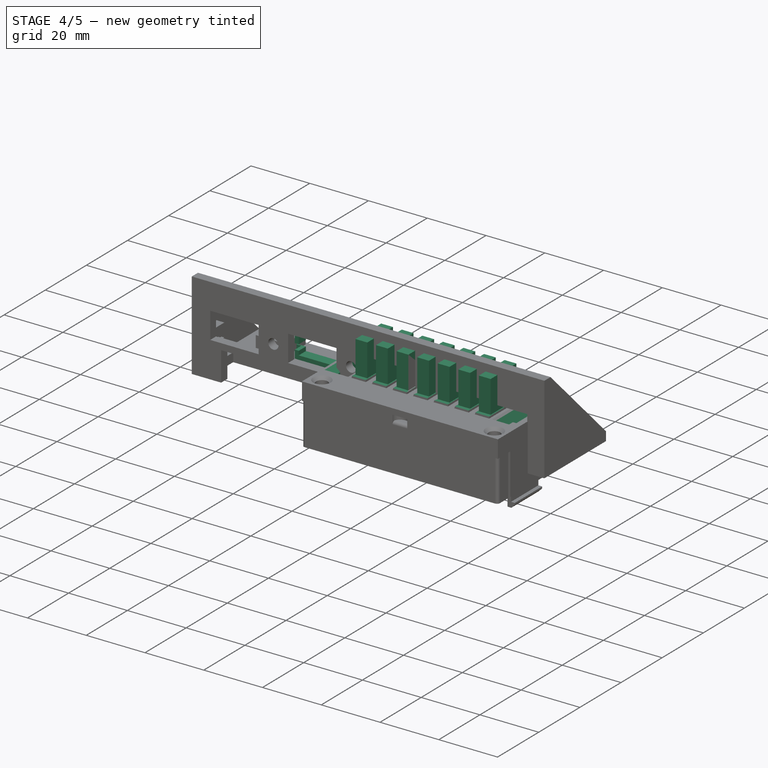
[diagram: stage 4 of 5 — iso view after this stage's code; geometry added in this stage tinted green]
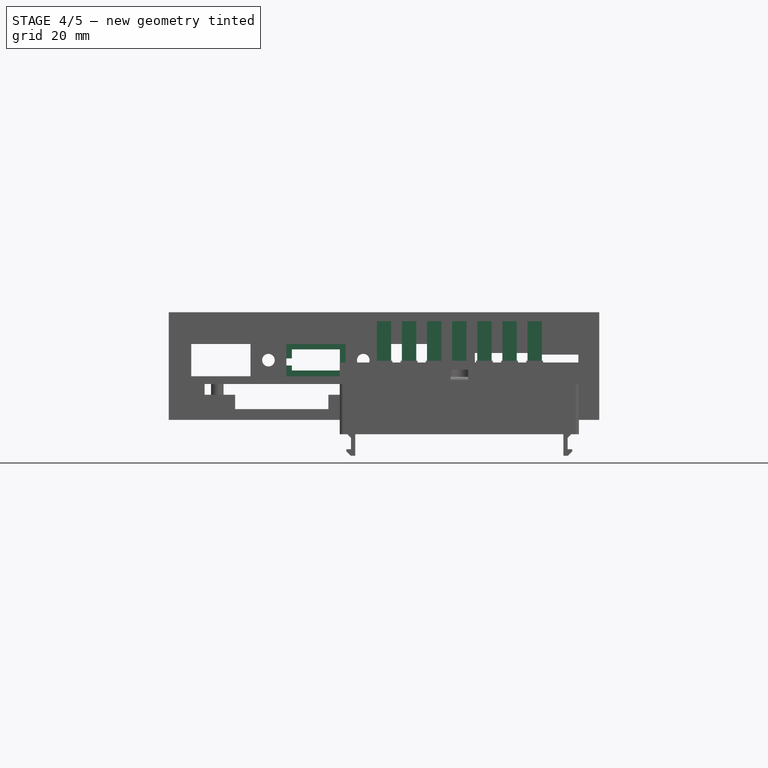
[diagram: stage 4 of 5 — front view after this stage's code; geometry added in this stage tinted green]
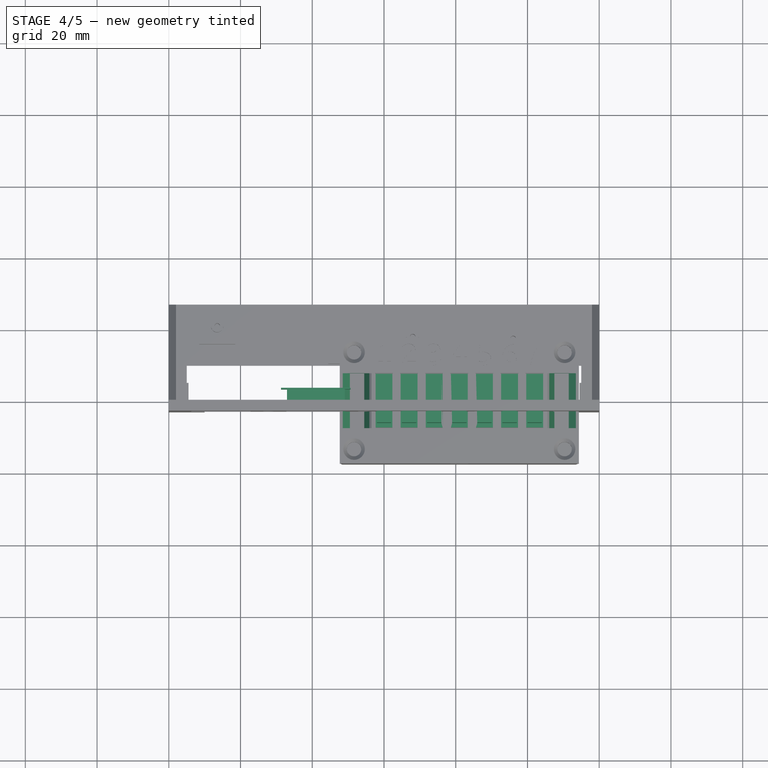
[diagram: stage 4 of 5 — top view after this stage's code; geometry added in this stage tinted green]
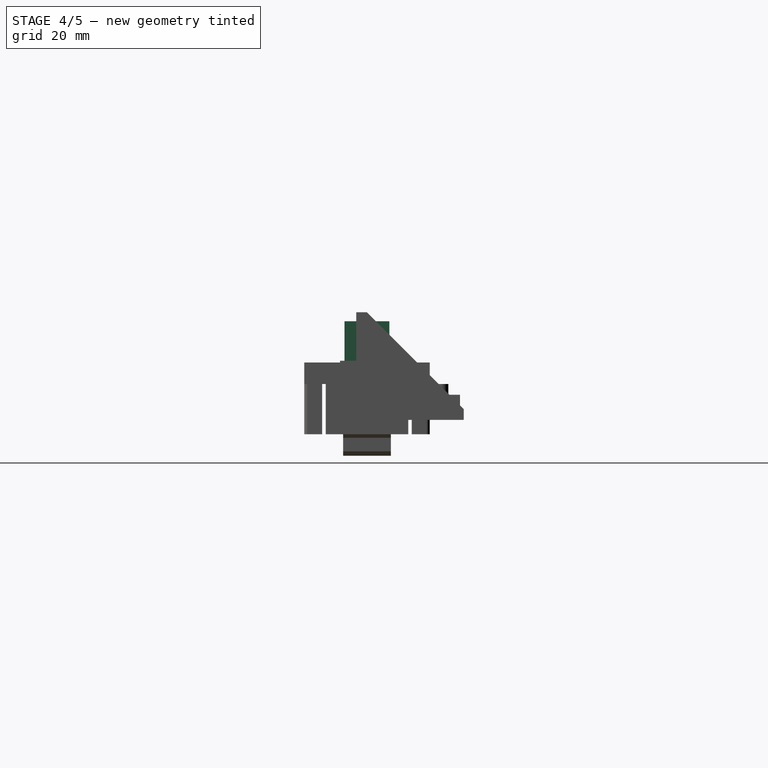
[diagram: stage 4 of 5 — right view after this stage's code; geometry added in this stage tinted green]
FEATURE [App::DocumentObjectGroup] Group  label="boards"
  ClaimAllChildren = true
  ExportMode = 1
  Group = -> [Body]
  TreeRank = 0
  _GroupVersion = 1
FEATURE [Sketcher::SketchObject] Sketch019
  ArcFitTolerance = 0
  AttachmentSupport = -> [XZ_Plane002]
  ExternalBSplineMaxDegree = 0
  ExternalBSplineTolerance = 0
  FullyConstrained = true
  InternalTolerance = 1e-06
  InvalidShape = false
  MakeInternals = false
  MapMode = 5
  Placement = pos=(0,0,0) rot=(1,0,0;1.5708rad)
  Support = -> [XZ_Plane002]
  TreeRank = 0
  ValidateShape = false
  sketch-geometry (9):
    g0: LineSegment StartX=-27.05 StartY=11 StartZ=0 EndX=-10.95 EndY=11 EndZ=0
    g1: LineSegment StartX=-10.95 StartY=11 StartZ=0 EndX=-10.95 EndY=2.4 EndZ=0
    g2: LineSegment StartX=-10.95 StartY=2.4 StartZ=0 EndX=-27.05 EndY=2.4 EndZ=0
    g3: LineSegment StartX=-27.05 StartY=2.4 StartZ=0 EndX=-27.05 EndY=11 EndZ=0
    g4: LineSegment StartX=-25.7 StartY=9.65 StartZ=0 EndX=-12.3 EndY=9.65 EndZ=0
    g5: LineSegment StartX=-12.3 StartY=9.65 StartZ=0 EndX=-12.3 EndY=3.75 EndZ=0
    g6: LineSegment StartX=-12.3 StartY=3.75 StartZ=0 EndX=-25.7 EndY=3.75 EndZ=0
    g7: LineSegment StartX=-25.7 StartY=3.75 StartZ=0 EndX=-25.7 EndY=9.65 EndZ=0
    g8: GeomPoint [constr] X=-19 Y=6.7 Z=0
  constraints (26):
    c: Coincident(g0,g1)
    c: Coincident(g1,g2)
    c: Coincident(g2,g3)
    c: Coincident(g3,g0)
    c: Horizontal(g0)
    c: Horizontal(g2)
    c: Vertical(g1)
    c: Vertical(g3)
    c: Coincident(g4,g5)
    c: Coincident(g5,g6)
    c: Coincident(g6,g7)
    c: Coincident(g7,g4)
    c: Horizontal(g4)
    c: Horizontal(g6)
    c: Vertical(g5)
    c: Vertical(g7)
    c: DistanceX(g0,g0) = 16.1
    c: DistanceY(g3,g3) = 8.6
    c: DistanceX(g4,g4) = 13.4
    c: DistanceY(g5,g5) = 5.9
    c: Symmetric(g1,g0,g8)
    c: Symmetric(g5,g4,g8)
    c: DistanceX(g8,g-1) = 19
    c: DistanceY(g-1,g8) = 6.7
    c: DistanceX(g0,g4) = 1.35
    c: DistanceY(g4,g0) = 1.35
FEATURE [PartDesign::Pad] Pad016
  AddSubType = 0
  AutoTaperInnerAngle = true
  CheckUpToFaceLimits = true
  ClaimChildren = false
  Direction = (0,-1,-2e-16)
  Fit = 0
  FitJoin = 0
  InnerFit = 0
  InnerFitJoin = 0
  InvalidShape = false
  Length = 3.5
  Length2 = 10
  NewSolid = false
  Placement = pos=(0,0,0) rot=(1,0,0;1.5708rad)
  Profile = -> Sketch019
  ReferenceAxis = -> Sketch019 [N_Axis]
  Reversed = true
  Suppress = false
  TaperInnerAngle = 0
  TaperInnerAngleRev = 0
  TreeRank = 0
  Type = 0
  ValidateShape = true
  _ProfileBasedVersion = 0
FEATURE [Sketcher::SketchObject] Sketch025
  ArcFitTolerance = 0
  AttachmentSupport = -> [Pad016]
  ExternalBSplineMaxDegree = 0
  ExternalBSplineTolerance = 0
  ExternalGeometry = -> [Pad016]
  FullyConstrained = true
  InternalTolerance = 1e-06
  InvalidShape = false
  MakeInternals = false
  MapMode = 5
  Placement = pos=(0,3.5,0) rot=(-1,0,0;1.5708rad)
  Support = -> [Pad016]
  TreeRank = 0
  ValidateShape = false
  sketch-geometry (8):
    g0: LineSegment StartX=-28.7 StartY=-0.75 StartZ=0 EndX=-9.3 EndY=-0.75 EndZ=0
    g1: LineSegment StartX=-9.3 StartY=-0.75 StartZ=0 EndX=-9.3 EndY=-12.65 EndZ=0
    g2: LineSegment StartX=-9.3 StartY=-12.65 StartZ=0 EndX=-28.7 EndY=-12.65 EndZ=0
    g3: LineSegment StartX=-28.7 StartY=-12.65 StartZ=0 EndX=-28.7 EndY=-0.75 EndZ=0
    g4: LineSegment StartX=-25.7 StartY=-3.75 StartZ=0 EndX=-12.3 EndY=-3.75 EndZ=0
    g5: LineSegment StartX=-12.3 StartY=-3.75 StartZ=0 EndX=-12.3 EndY=-9.65 EndZ=0
    g6: LineSegment StartX=-12.3 StartY=-9.65 StartZ=0 EndX=-25.7 EndY=-9.65 EndZ=0
    g7: LineSegment StartX=-25.7 StartY=-9.65 StartZ=0 EndX=-25.7 EndY=-3.75 EndZ=0
  constraints (22):
    c: Coincident(g0,g1)
    c: Coincident(g1,g2)
    c: Coincident(g2,g3)
    c: Coincident(g3,g0)
    c: Horizontal(g0)
    c: Horizontal(g2)
    c: Vertical(g1)
    c: Vertical(g3)
    c: Coincident(g4,g5)
    c: Coincident(g5,g6)
    c: Coincident(g6,g7)
    c: Coincident(g7,g4)
    c: Horizontal(g4)
    c: Horizontal(g6)
    c: Vertical(g5)
    c: Vertical(g7)
    c: Coincident(g4,g-3)
    c: Coincident(g5,g-4)
    c: DistanceX(g0,g4) = 3
    c: DistanceX(g5,g1) = 3
    c: DistanceY(g4,g0) = 3
    c: DistanceY(g1,g5) = 3
FEATURE [PartDesign::Pad] Pad019
  AddSubType = 0
  AutoTaperInnerAngle = true
  BaseFeature = -> Pad016
  CheckUpToFaceLimits = true
  ClaimChildren = false
  Direction = (0,1,2e-16)
  Fit = 0
  FitJoin = 0
  InnerFit = 0
  InnerFitJoin = 0
  InvalidShape = false
  Length = 0.32
  Length2 = 10
  NewSolid = false
  Placement = pos=(0,0,0) rot=(1,0,0;1.5708rad)
  Profile = -> Sketch025
  ReferenceAxis = -> Sketch025 [N_Axis]
  Reversed = true
  Suppress = false
  TaperInnerAngle = 0
  TaperInnerAngleRev = 0
  TreeRank = 0
  Type = 0
  ValidateShape = true
  _ProfileBasedVersion = 0
FEATURE [Sketcher::SketchObject] Sketch026
  ArcFitTolerance = 0
  AttachmentSupport = -> [Pad019]
  ExternalBSplineMaxDegree = 0
  ExternalBSplineTolerance = 0
  ExternalGeometry = -> [Pad019]
  FullyConstrained = true
  InternalTolerance = 1e-06
  InvalidShape = false
  MakeInternals = false
  MapMode = 5
  Placement = pos=(0,-1.5e-15,0) rot=(1,0,0;1.5708rad)
  Support = -> [Pad019]
  TreeRank = 0
  ValidateShape = false
  sketch-geometry (4):
    g0: LineSegment StartX=-29.7 StartY=5.15 StartZ=0 EndX=-25.7 EndY=5.15 EndZ=0
    g1: LineSegment StartX=-25.7 StartY=5.15 StartZ=0 EndX=-25.7 EndY=7.15 EndZ=0
    g2: LineSegment StartX=-25.7 StartY=7.15 StartZ=0 EndX=-29.7 EndY=7.15 EndZ=0
    g3: LineSegment StartX=-29.7 StartY=7.15 StartZ=0 EndX=-29.7 EndY=5.15 EndZ=0
  constraints (12):
    c: Coincident(g0,g1)
    c: Coincident(g1,g2)
    c: Coincident(g2,g3)
    c: Coincident(g3,g0)
    c: Horizontal(g0)
    c: Horizontal(g2)
    c: Vertical(g1)
    c: Vertical(g3)
    c: PointOnObject(g1,g-3)
    c: DistanceY(g1,g1) = 2
    c: DistanceY(g1,g-3) = 2.5
    c: DistanceX(g2,g2) = 4
FEATURE [PartDesign::Pocket] Pocket005
  AddSubType = 1
  AutoTaperInnerAngle = true
  BaseFeature = -> Pad019
  CheckUpToFaceLimits = true
  ClaimChildren = false
  Direction = (0,1,-2e-16)
  Fit = 0
  FitJoin = 0
  InnerFit = 0
  InnerFitJoin = 0
  InvalidShape = false
  Length = 5
  Length2 = 5
  NewSolid = false
  Placement = pos=(0,0,0) rot=(1,0,0;1.5708rad)
  Profile = -> Sketch026
  ReferenceAxis = -> Sketch026 [N_Axis]
  Suppress = false
  TaperInnerAngle = 0
  TaperInnerAngleRev = 0
  TreeRank = 0
  Type = 0
  ValidateShape = true
  _ProfileBasedVersion = 0
  _Version = 0
FEATURE [PartDesign::Body] Body002  label="matrix-usb"
  AutoGroupSolids = false
  ClaimAllChildren = false
  ExportMode = 0
  Group = -> [Sketch019,Pad016,Sketch025,Pad019,Sketch026,Pocket005,Sketch027,Pocket006,Fillet,Sketch028,Pocket007]
  InvalidShape = false
  Origin = -> Origin002
  Placement = pos=(0,-91.5,0) rot=(0,0,1;0rad)
  Tip = -> Pocket007
  TreeRank = 0
  ValidateShape = false
  _ExportChildren = -> [Pad016,Pad019,Pocket005,Pocket006,Fillet,Pocket007]
  _GroupVersion = 1
FEATURE [Sketcher::SketchObject] Sketch029
  ArcFitTolerance = 0
  AttachmentSupport = -> [XY_Plane003]
  ExternalBSplineMaxDegree = 0
  ExternalBSplineTolerance = 0
  FullyConstrained = true
  InternalTolerance = 1e-06
  InvalidShape = false
  MakeInternals = false
  MapMode = 5
  Support = -> [XY_Plane003]
  TreeRank = 0
  ValidateShape = false
  sketch-geometry (4):
    g0: LineSegment StartX=-2.35 StartY=7.5 StartZ=0 EndX=2.35 EndY=7.5 EndZ=0
    g1: LineSegment StartX=2.35 StartY=7.5 StartZ=0 EndX=2.35 EndY=-7.5 EndZ=0
    g2: LineSegment StartX=2.35 StartY=-7.5 StartZ=0 EndX=-2.35 EndY=-7.5 EndZ=0
    g3: LineSegment StartX=-2.35 StartY=-7.5 StartZ=0 EndX=-2.35 EndY=7.5 EndZ=0
  constraints (11):
    c: Coincident(g0,g1)
    c: Coincident(g1,g2)
    c: Coincident(g2,g3)
    c: Coincident(g3,g0)
    c: Horizontal(g0)
    c: Horizontal(g2)
    c: Vertical(g1)
    c: Vertical(g3)
    c: DistanceX(g0,g0) = 4.7
    c: DistanceY(g1,g1) = 15
    c: Symmetric(g1,g0,g-1)
FEATURE [PartDesign::Pad] Pad020
  AddSubType = 0
  AutoTaperInnerAngle = true
  CheckUpToFaceLimits = true
  ClaimChildren = false
  Direction = (0,0,1)
  Fit = 0
  FitJoin = 0
  InnerFit = 0
  InnerFitJoin = 0
  InvalidShape = false
  Length = 6.5
  Length2 = 10
  NewSolid = false
  Profile = -> Sketch029
  ReferenceAxis = -> Sketch029 [N_Axis]
  Suppress = false
  TaperInnerAngle = 0
  TaperInnerAngleRev = 0
  TreeRank = 0
  Type = 0
  ValidateShape = true
  _ProfileBasedVersion = 0
FEATURE [Sketcher::SketchObject] Sketch030
  ArcFitTolerance = 0
  AttachmentSupport = -> [Pad020]
  ExternalBSplineMaxDegree = 0
  ExternalBSplineTolerance = 0
  FullyConstrained = true
  InternalTolerance = 1e-06
  InvalidShape = false
  MakeInternals = false
  MapMode = 5
  Placement = pos=(0,0,6.5) rot=(0,0,1;0rad)
  Support = -> [Pad020]
  TreeRank = 0
  ValidateShape = false
  sketch-geometry (4):
    g0: LineSegment StartX=-2 StartY=6.25 StartZ=0 EndX=2 EndY=6.25 EndZ=0
    g1: LineSegment StartX=2 StartY=6.25 StartZ=0 EndX=2 EndY=-6.25 EndZ=0
    g2: LineSegment StartX=2 StartY=-6.25 StartZ=0 EndX=-2 EndY=-6.25 EndZ=0
    g3: LineSegment StartX=-2 StartY=-6.25 StartZ=0 EndX=-2 EndY=6.25 EndZ=0
  constraints (11):
    c: Coincident(g0,g1)
    c: Coincident(g1,g2)
    c: Coincident(g2,g3)
    c: Coincident(g3,g0)
    c: Horizontal(g0)
    c: Horizontal(g2)
    c: Vertical(g1)
    c: Vertical(g3)
    c: DistanceX(g0,g0) = 4
    c: DistanceY(g1,g1) = 12.5
    c: Symmetric(g1,g0,g-1)
FEATURE [PartDesign::Pad] Pad021
  AddSubType = 0
  AutoTaperInnerAngle = true
  BaseFeature = -> Pad020
  CheckUpToFaceLimits = true
  ClaimChildren = false
  Direction = (0,0,1)
  Fit = 0
  FitJoin = 0
  InnerFit = 0
  InnerFitJoin = 0
  InvalidShape = false
  Length = 11
  Length2 = 10
  NewSolid = false
  Profile = -> Sketch030
  ReferenceAxis = -> Sketch030 [N_Axis]
  Suppress = false
  TaperInnerAngle = 0
  TaperInnerAngleRev = 0
  TreeRank = 0
  Type = 0
  ValidateShape = true
  _ProfileBasedVersion = 0
FEATURE [PartDesign::Body] Body003  label="one-fuse"
  AutoGroupSolids = false
  ClaimAllChildren = false
  ExportMode = 0
  Group = -> [Sketch029,Pad020,Sketch030,Pad021]
  InvalidShape = false
  Origin = -> Origin003
  Tip = -> Pad021
  TreeRank = 0
  ValidateShape = false
  _ExportChildren = -> [Pad020,Pad021]
  _GroupVersion = 1
FEATURE [Part::FeaturePython] Array  label="fuses"  # Draft array (typed FeaturePython)
  Angle = 360
  ArrayType = 0
  Axis = (0,0,1)
  Base = -> Body003
  Center = (0,0,0)
  Count = 7
  Fuse = false
  IntervalAxis = (0,0,0)
  IntervalX = (7,0,0)
  IntervalY = (0,100,0)
  IntervalZ = (0,0,100)
  InvalidShape = false
  NumberCircles = 3
  NumberPolar = 5
  NumberX = 7
  NumberY = 1
  NumberZ = 1
  RadialDistance = 50
  Symmetry = 1
  TangentialDistance = 25
  TreeRank = 0
  ValidateShape = false
FEATURE [Sketcher::SketchObject] Sketch036
  ArcFitTolerance = 0
  AttachmentSupport = -> [Pocket011]
  ExternalBSplineMaxDegree = 0
  ExternalBSplineTolerance = 0
  ExternalGeometry = -> [Pocket011]
  FullyConstrained = true
  InternalTolerance = 1e-06
  InvalidShape = false
  MakeInternals = false
  MapMode = 5
  Placement = pos=(0,0,6) rot=(0,0,1;0rad)
  Support = -> [Pocket011]
  TreeRank = 0
  ValidateShape = false
  sketch-geometry (8):
    g0: LineSegment StartX=-9.5 StartY=7.65 StartZ=0 EndX=-5.5 EndY=7.65 EndZ=0
    g1: LineSegment StartX=-5.5 StartY=7.65 StartZ=0 EndX=-5.5 EndY=-7.65 EndZ=0
    g2: LineSegment StartX=-5.5 StartY=-7.65 StartZ=0 EndX=-9.5 EndY=-7.65 EndZ=0
    g3: LineSegment StartX=-9.5 StartY=-7.65 StartZ=0 EndX=-9.5 EndY=7.65 EndZ=0
    g4: LineSegment StartX=47.5 StartY=7.65 StartZ=0 EndX=51.5 EndY=7.65 EndZ=0
    g5: LineSegment StartX=51.5 StartY=7.65 StartZ=0 EndX=51.5 EndY=-7.65 EndZ=0
    g6: LineSegment StartX=51.5 StartY=-7.65 StartZ=0 EndX=47.5 EndY=-7.65 EndZ=0
    g7: LineSegment StartX=47.5 StartY=-7.65 StartZ=0 EndX=47.5 EndY=7.65 EndZ=0
  constraints (22):
    c: Coincident(g0,g1)
    c: Coincident(g1,g2)
    c: Coincident(g2,g3)
    c: Coincident(g3,g0)
    c: Horizontal(g0)
    c: Horizontal(g2)
    c: Vertical(g1)
    c: DistanceX(g0,g0) = 4
    c: Symmetric(g2,g0,g-1)
    c: Coincident(g4,g5)
    c: Coincident(g5,g6)
    c: Coincident(g6,g7)
    c: Coincident(g7,g4)
    c: Horizontal(g4)
    c: Horizontal(g6)
    c: Vertical(g5)
    c: Equal(g0,g4)
    c: Symmetric(g4,g6,g-1)
    c: DistanceX(g0,g-5) = 3
    c: DistanceX(g-8,g4) = 3
    c: Equal(g1,g-7)
    c: Equal(g1,g7)
FEATURE [PartDesign::Pocket] Pocket012
  AddSubType = 1
  AutoTaperInnerAngle = true
  BaseFeature = -> Pocket011
  CheckUpToFaceLimits = true
  ClaimChildren = false
  Direction = (0,0,-1)
  Fit = 0
  FitJoin = 0
  InnerFit = 0
  InnerFitJoin = 0
  InvalidShape = false
  Length = 6
  Length2 = 5
  NewSolid = false
  Profile = -> Sketch036
  ReferenceAxis = -> Sketch036 [N_Axis]
  Suppress = false
  TaperInnerAngle = 0
  TaperInnerAngleRev = 0
  TreeRank = 0
  Type = 0
  ValidateShape = true
  _ProfileBasedVersion = 0
  _Version = 0
FEATURE [Sketcher::SketchObject] Sketch037
  ArcFitTolerance = 0
  AttachmentSupport = -> [Pocket012]
  ExternalBSplineMaxDegree = 0
  ExternalBSplineTolerance = 0
  ExternalGeometry = -> [Pocket012]
  FullyConstrained = true
  InternalTolerance = 1e-06
  InvalidShape = false
  MakeInternals = false
  MapMode = 5
  Placement = pos=(0,0,0) rot=(1,0,0;3.14159rad)
  Support = -> [Pocket012]
  TreeRank = 0
  ValidateShape = false
  sketch-geometry (8):
    g0: LineSegment StartX=-9.5 StartY=7.65 StartZ=0 EndX=-11 EndY=7.65 EndZ=0
    g1: LineSegment StartX=-11 StartY=7.65 StartZ=0 EndX=-11 EndY=-7.65 EndZ=0
    g2: LineSegment StartX=-11 StartY=-7.65 StartZ=0 EndX=-9.5 EndY=-7.65 EndZ=0
    g3: LineSegment StartX=-9.5 StartY=-7.65 StartZ=0 EndX=-9.5 EndY=7.65 EndZ=0
    g4: LineSegment StartX=51.5 StartY=7.65 StartZ=0 EndX=53 EndY=7.65 EndZ=0
    g5: LineSegment StartX=53 StartY=7.65 StartZ=0 EndX=53 EndY=-7.65 EndZ=0
    g6: LineSegment StartX=53 StartY=-7.65 StartZ=0 EndX=51.5 EndY=-7.65 EndZ=0
    g7: LineSegment StartX=51.5 StartY=-7.65 StartZ=0 EndX=51.5 EndY=7.65 EndZ=0
  constraints (22):
    c: Coincident(g0,g1)
    c: Coincident(g1,g2)
    c: Coincident(g2,g3)
    c: Coincident(g3,g0)
    c: Horizontal(g0)
    c: Horizontal(g2)
    c: Vertical(g1)
    c: Vertical(g3)
    c: PointOnObject(g2,g-4)
    c: Coincident(g0,g-3)
    c: DistanceX(g0,g0) = 1.5
    c: Coincident(g4,g5)
    c: Coincident(g5,g6)
    c: Coincident(g6,g7)
    c: Coincident(g7,g4)
    c: Horizontal(g4)
    c: Horizontal(g6)
    c: Vertical(g5)
    c: Vertical(g7)
    c: Coincident(g4,g-5)
    c: PointOnObject(g-5,g6)
    c: Equal(g6,g2)
FEATURE [PartDesign::Pocket] Pocket013
  AddSubType = 1
  AutoTaperInnerAngle = true
  BaseFeature = -> Pocket012
  CheckUpToFaceLimits = true
  ClaimChildren = false
  Direction = (0,0,1)
  Fit = 0
  FitJoin = 0
  InnerFit = 0
  InnerFitJoin = 0
  InvalidShape = false
  Length = 2
  Length2 = 5
  NewSolid = false
  Profile = -> Sketch037
  ReferenceAxis = -> Sketch037 [N_Axis]
  Suppress = false
  TaperInnerAngle = 0
  TaperInnerAngleRev = 0
  TreeRank = 0
  Type = 0
  ValidateShape = true
  _ProfileBasedVersion = 0
  _Version = 0
FEATURE [PartDesign::Chamfer] Chamfer001
  AddSubType = 0
  Angle = 45
  Base = -> Pocket013 [Edge66,Edge139]
  BaseFeature = -> Pocket013
  ChamferType = 0
  FlipDirection = false
  InvalidShape = false
  NewSolid = false
  Size = 0.5
  Size2 = 1
  SupportTransform = false
  Suppress = false
  TreeRank = 0
  UseAllEdges = false
  ValidateShape = true
FEATURE [Part::Cut] Cut  label="holder-2"
  Base = -> Body004
  InvalidShape = false
  Tool = -> Fusion
  TreeRank = 0
  ValidateShape = false
FEATURE [PartDesign::FeatureBase] BaseFeature
  BaseFeature = -> Cut
  InvalidShape = false
  NewSolid = false
  Suppress = false
  TreeRank = 0
  ValidateShape = true
FEATURE [PartDesign::Chamfer] Chamfer004
  AddSubType = 0
  Angle = 45
  Base = -> BaseFeature [Edge3,Edge135]
  BaseFeature = -> BaseFeature
  ChamferType = 0
  FlipDirection = false
  InvalidShape = false
  NewSolid = false
  Size = 2
  Size2 = 1
  SupportTransform = false
  Suppress = false
  TreeRank = 0
  UseAllEdges = false
  ValidateShape = true
FEATURE [PartDesign::Chamfer] Chamfer005
  AddSubType = 0
  Angle = 45
  Base = -> Chamfer004 [Edge26,Edge224]
  BaseFeature = -> Chamfer004
  ChamferType = 0
  FlipDirection = false
  InvalidShape = false
  NewSolid = false
  Size = 2
  Size2 = 1
  SupportTransform = false
  Suppress = false
  TreeRank = 0
  UseAllEdges = false
  ValidateShape = true
FEATURE [PartDesign::Chamfer] Chamfer006
  AddSubType = 0
  Angle = 45
  Base = -> Chamfer005 [Edge350,Edge11]
  BaseFeature = -> Chamfer005
  ChamferType = 0
  FlipDirection = false
  InvalidShape = false
  NewSolid = false
  Size = 2
  Size2 = 1
  SupportTransform = false
  Suppress = false
  TreeRank = 0
  UseAllEdges = false
  ValidateShape = true
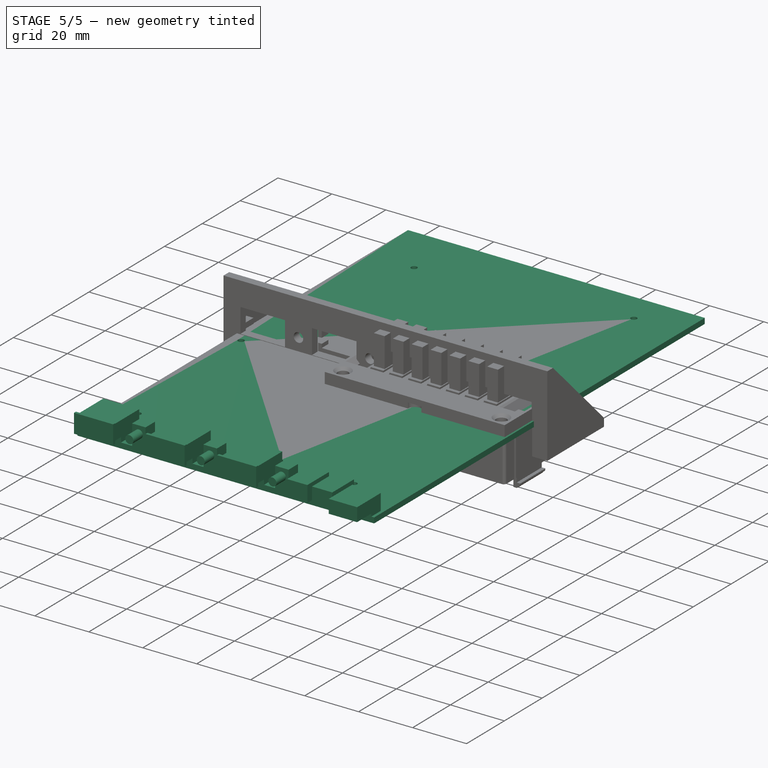
[diagram: stage 5 of 5 — iso view after this stage's code; geometry added in this stage tinted green]
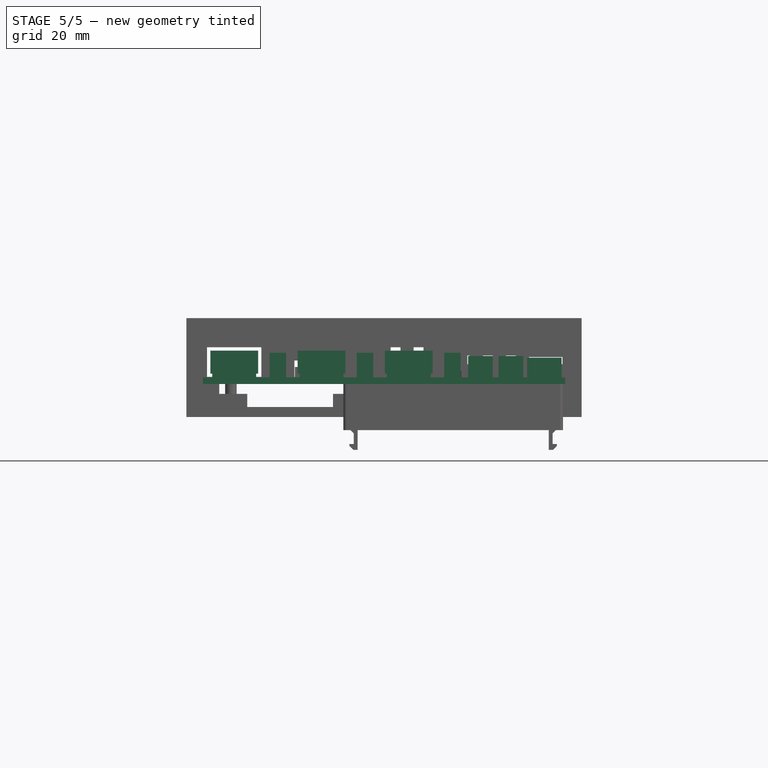
[diagram: stage 5 of 5 — front view after this stage's code; geometry added in this stage tinted green]
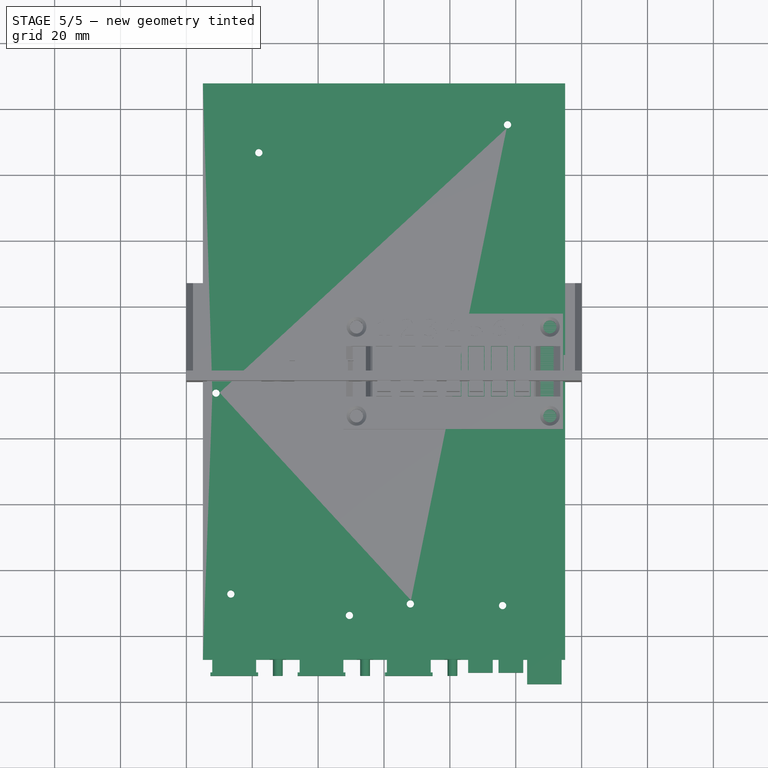
[diagram: stage 5 of 5 — top view after this stage's code; geometry added in this stage tinted green]
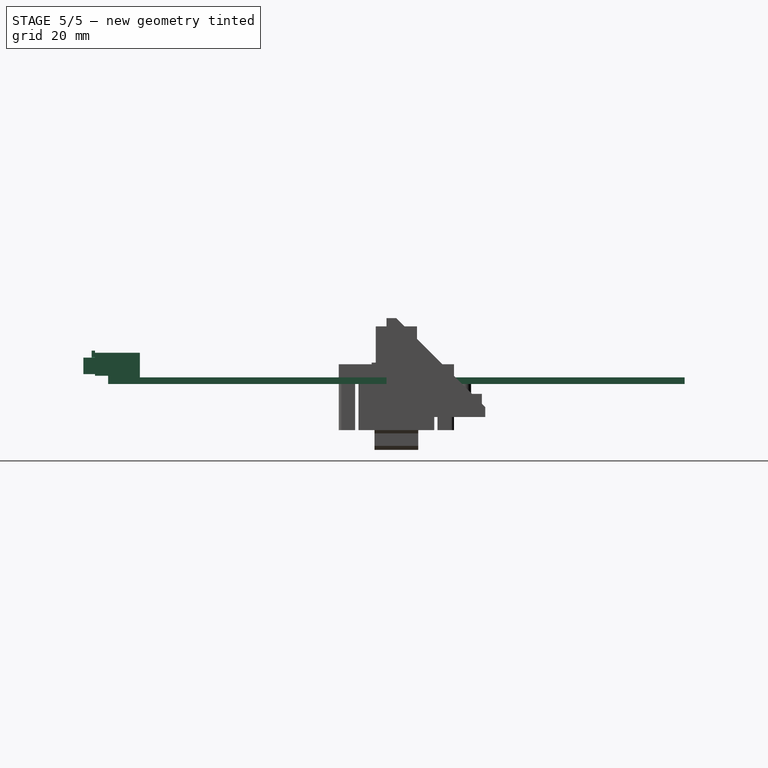
[diagram: stage 5 of 5 — right view after this stage's code; geometry added in this stage tinted green]
FEATURE [Sketcher::SketchObject] Sketch
  ArcFitTolerance = 0
  AttachmentSupport = -> [XY_Plane]
  ExternalBSplineMaxDegree = 0
  ExternalBSplineTolerance = 0
  FullyConstrained = true
  InternalTolerance = 1e-06
  InvalidShape = false
  MakeInternals = false
  MapMode = 5
  Support = -> [XY_Plane]
  TreeRank = 0
  ValidateShape = false
  sketch-geometry (4):
    g0: LineSegment StartX=-55 StartY=87.5 StartZ=0 EndX=55 EndY=87.5 EndZ=0
    g1: LineSegment StartX=55 StartY=87.5 StartZ=0 EndX=55 EndY=-87.5 EndZ=0
    g2: LineSegment StartX=55 StartY=-87.5 StartZ=0 EndX=-55 EndY=-87.5 EndZ=0
    g3: LineSegment StartX=-55 StartY=-87.5 StartZ=0 EndX=-55 EndY=87.5 EndZ=0
  constraints (11):
    c: Coincident(g0,g1)
    c: Coincident(g1,g2)
    c: Coincident(g2,g3)
    c: Coincident(g3,g0)
    c: Horizontal(g0)
    c: Horizontal(g2)
    c: Vertical(g1)
    c: Vertical(g3)
    c: DistanceY(g1,g1) = 175
    c: DistanceX(g2,g2) = 110
    c: Symmetric(g1,g0,g-1)
FEATURE [PartDesign::Pad] Pad  label="plate-1"
  AddSubType = 0
  AutoTaperInnerAngle = true
  CheckUpToFaceLimits = true
  ClaimChildren = false
  Direction = (0,0,1)
  Fit = 0
  FitJoin = 0
  InnerFit = 0
  InnerFitJoin = 0
  InvalidShape = false
  Length = 2
  Length2 = 10
  NewSolid = false
  Profile = -> Sketch
  ReferenceAxis = -> Sketch [N_Axis]
  Suppress = false
  TaperInnerAngle = 0
  TaperInnerAngleRev = 0
  TreeRank = 0
  Type = 0
  ValidateShape = true
  _ProfileBasedVersion = 0
FEATURE [Sketcher::SketchObject] Sketch001
  ArcFitTolerance = 0
  AttachmentSupport = -> [Pad]
  ExternalBSplineMaxDegree = 0
  ExternalBSplineTolerance = 0
  ExternalGeometry = -> [Pad]
  FullyConstrained = true
  InternalTolerance = 1e-06
  InvalidShape = false
  MakeInternals = false
  MapMode = 5
  Placement = pos=(0,0,2) rot=(0,0,1;0rad)
  Support = -> [Pad]
  TreeRank = 0
  ValidateShape = false
  sketch-geometry (7):
    g0: Circle CenterX=-46.5 CenterY=-67.55 CenterZ=0 NormalX=0 NormalY=0 NormalZ=1 AngleXU=0 Radius=1.1
    g1: Circle CenterX=36 CenterY=-71.05 CenterZ=0 NormalX=0 NormalY=0 NormalZ=1 AngleXU=0 Radius=1.1
    g2: Circle CenterX=-51 CenterY=-6.55 CenterZ=0 NormalX=0 NormalY=0 NormalZ=1 AngleXU=0 Radius=1.1
    g3: Circle CenterX=8 CenterY=-70.55 CenterZ=0 NormalX=0 NormalY=0 NormalZ=1 AngleXU=0 Radius=1.1
    g4: Circle CenterX=-10.5 CenterY=-74.05 CenterZ=0 NormalX=0 NormalY=0 NormalZ=1 AngleXU=0 Radius=1.1
    g5: Circle CenterX=-38 CenterY=66.45 CenterZ=0 NormalX=0 NormalY=0 NormalZ=1 AngleXU=0 Radius=1.1
    g6: Circle CenterX=37.5 CenterY=74.95 CenterZ=0 NormalX=0 NormalY=0 NormalZ=1 AngleXU=0 Radius=1.1
  constraints (23):
    c: Equal(g5,g6)
    c: Equal(g6,g0)
    c: Equal(g0,g1)
    c: Equal(g0,g2)
    c: Equal(g1,g3)
    c: Equal(g2,g4)
    c: Diameter(g6) = 2.2
    c: DistanceX(g-3,g0) = 8.5
    c: DistanceY(g-3,g0) = 19.95
    c: DistanceX(g0,g4) = 36
    c: DistanceY(g4,g0) = 6.5
    c: DistanceX(g4,g3) = 18.5
    c: DistanceY(g4,g3) = 3.5
    c: DistanceX(g3,g1) = 28
    c: DistanceY(g1,g3) = 0.5
    c: DistanceX(g2,g0) = 4.5
    c: DistanceY(g0,g2) = 61
    c: DistanceX(g2,g5) = 13
    c: DistanceY(g2,g5) = 73
    c: DistanceX(g5,g6) = 75.5
    c: DistanceY(g5,g6) = 8.5
    c: DistanceX(g1,g6) = 1.5
    c: DistanceY(g1,g6) = 146
FEATURE [PartDesign::Pocket] Pocket  label="holes"
  AddSubType = 1
  AutoTaperInnerAngle = true
  BaseFeature = -> Pad
  CheckUpToFaceLimits = true
  ClaimChildren = false
  Direction = (0,0,-1)
  Fit = 0
  FitJoin = 0
  InnerFit = 0
  InnerFitJoin = 0
  InvalidShape = false
  Length = 5
  Length2 = 5
  NewSolid = false
  Profile = -> Sketch001
  ReferenceAxis = -> Sketch001 [N_Axis]
  Suppress = false
  TaperInnerAngle = 0
  TaperInnerAngleRev = 0
  TreeRank = 0
  Type = 0
  ValidateShape = true
  _ProfileBasedVersion = 0
  _Version = 0
FEATURE [Sketcher::SketchObject] Sketch002
  ArcFitTolerance = 0
  AttachmentSupport = -> [Pocket]
  ExternalBSplineMaxDegree = 0
  ExternalBSplineTolerance = 0
  ExternalGeometry = -> [Pocket]
  FullyConstrained = true
  InternalTolerance = 1e-06
  InvalidShape = false
  MakeInternals = false
  MapMode = 5
  Placement = pos=(0,0,2) rot=(0,0,1;0rad)
  Support = -> [Pocket]
  TreeRank = 0
  ValidateShape = false
  sketch-geometry (15):
    g0: LineSegment StartX=-52.125 StartY=-87.5 StartZ=0 EndX=-38.825 EndY=-87.5 EndZ=0
    g1: LineSegment StartX=-38.825 StartY=-87.5 StartZ=0 EndX=-38.825 EndY=-77.852 EndZ=0
    g2: LineSegment StartX=-38.825 StartY=-77.852 StartZ=0 EndX=-52.125 EndY=-77.852 EndZ=0
    g3: LineSegment StartX=-52.125 StartY=-77.852 StartZ=0 EndX=-52.125 EndY=-87.5 EndZ=0
    g4: LineSegment StartX=-25.625 StartY=-87.5 StartZ=0 EndX=-12.325 EndY=-87.5 EndZ=0
    g5: LineSegment StartX=-12.325 StartY=-87.5 StartZ=0 EndX=-12.325 EndY=-77.852 EndZ=0
    g6: LineSegment StartX=-12.325 StartY=-77.852 StartZ=0 EndX=-25.625 EndY=-77.852 EndZ=0
    g7: LineSegment StartX=-25.625 StartY=-77.852 StartZ=0 EndX=-25.625 EndY=-87.5 EndZ=0
    g8: LineSegment StartX=0.875 StartY=-87.5 StartZ=0 EndX=14.175 EndY=-87.5 EndZ=0
    g9: LineSegment StartX=14.175 StartY=-87.5 StartZ=0 EndX=14.175 EndY=-77.852 EndZ=0
    g10: LineSegment StartX=14.175 StartY=-77.852 StartZ=0 EndX=0.875 EndY=-77.852 EndZ=0
    g11: LineSegment StartX=0.875 StartY=-77.852 StartZ=0 EndX=0.875 EndY=-87.5 EndZ=0
    g12: GeomPoint [constr] X=-45.475 Y=-82.676 Z=0
    g13: GeomPoint [constr] X=-18.975 Y=-82.676 Z=0
    g14: GeomPoint [constr] X=7.525 Y=-82.676 Z=0
  constraints (39):
    c: Coincident(g0,g1)
    c: Coincident(g1,g2)
    c: Coincident(g2,g3)
    c: Coincident(g3,g0)
    c: Horizontal(g0)
    c: Horizontal(g2)
    c: Vertical(g1)
    c: Vertical(g3)
    c: PointOnObject(g0,g-3)
    c: Coincident(g4,g5)
    c: Coincident(g5,g6)
    c: Coincident(g6,g7)
    c: Coincident(g7,g4)
    c: Horizontal(g4)
    c: Horizontal(g6)
    c: Vertical(g5)
    c: Vertical(g7)
    c: PointOnObject(g4,g-3)
    c: Coincident(g8,g9)
    c: Coincident(g9,g10)
    c: Coincident(g10,g11)
    c: Coincident(g11,g8)
    c: Horizontal(g8)
    c: Horizontal(g10)
    c: Vertical(g9)
    c: Vertical(g11)
    c: PointOnObject(g8,g-3)
    c: Equal(g1,g7)
    c: Equal(g5,g11)
    c: Equal(g10,g6)
    c: Equal(g6,g2)
    c: DistanceX(g2,g2) = 13.3
    c: DistanceY(g3,g3) = 9.648
    c: Symmetric(g0,g2,g12)
    c: Symmetric(g4,g6,g13)
    c: Symmetric(g8,g10,g14)
    c: DistanceX(g-3,g12) = 9.525
    c: DistanceX(g-3,g13) = 36.025
    c: DistanceX(g-3,g14) = 62.525
FEATURE [PartDesign::Pad] Pad001  label="usb-1"
  AddSubType = 0
  AutoTaperInnerAngle = true
  BaseFeature = -> Pocket
  CheckUpToFaceLimits = true
  ClaimChildren = false
  Direction = (0,0,1)
  Fit = 0
  FitJoin = 0
  InnerFit = 0
  InnerFitJoin = 0
  InvalidShape = false
  Length = 7.5
  Length2 = 10
  NewSolid = false
  Profile = -> Sketch002
  ReferenceAxis = -> Sketch002 [N_Axis]
  Suppress = false
  TaperInnerAngle = 0
  TaperInnerAngleRev = 0
  TreeRank = 0
  Type = 0
  ValidateShape = true
  _ProfileBasedVersion = 0
FEATURE [Sketcher::SketchObject] Sketch003
  ArcFitTolerance = 0
  AttachmentSupport = -> [Pad001]
  ExternalBSplineMaxDegree = 0
  ExternalBSplineTolerance = 0
  ExternalGeometry = -> [Pad001]
  FullyConstrained = true
  InternalTolerance = 1e-06
  InvalidShape = false
  MakeInternals = false
  MapMode = 5
  Placement = pos=(0,-87.5,0) rot=(1,0,0;1.5708rad)
  Support = -> [Pad001]
  TreeRank = 0
  ValidateShape = false
  sketch-geometry (12):
    g0: LineSegment StartX=-52.125 StartY=9.5 StartZ=0 EndX=-38.825 EndY=9.5 EndZ=0
    g1: LineSegment StartX=-38.825 StartY=9.5 StartZ=0 EndX=-38.825 EndY=3.8 EndZ=0
    g2: LineSegment StartX=-38.825 StartY=3.8 StartZ=0 EndX=-52.125 EndY=3.8 EndZ=0
    g3: LineSegment StartX=-52.125 StartY=3.8 StartZ=0 EndX=-52.125 EndY=9.5 EndZ=0
    g4: LineSegment StartX=-25.625 StartY=9.5 StartZ=0 EndX=-12.325 EndY=9.5 EndZ=0
    g5: LineSegment StartX=-12.325 StartY=9.5 StartZ=0 EndX=-12.325 EndY=3.8 EndZ=0
    g6: LineSegment StartX=-12.325 StartY=3.8 StartZ=0 EndX=-25.625 EndY=3.8 EndZ=0
    g7: LineSegment StartX=-25.625 StartY=3.8 StartZ=0 EndX=-25.625 EndY=9.5 EndZ=0
    g8: LineSegment StartX=0.875 StartY=9.5 StartZ=0 EndX=14.175 EndY=9.5 EndZ=0
    g9: LineSegment StartX=14.175 StartY=9.5 StartZ=0 EndX=14.175 EndY=3.8 EndZ=0
    g10: LineSegment StartX=14.175 StartY=3.8 StartZ=0 EndX=0.875 EndY=3.8 EndZ=0
    g11: LineSegment StartX=0.875 StartY=3.8 StartZ=0 EndX=0.875 EndY=9.5 EndZ=0
  constraints (33):
    c: Coincident(g0,g1)
    c: Coincident(g1,g2)
    c: Coincident(g2,g3)
    c: Coincident(g3,g0)
    c: Horizontal(g0)
    c: Horizontal(g2)
    c: Vertical(g1)
    c: Vertical(g3)
    c: Coincident(g0,g-3)
    c: Coincident(g4,g5)
    c: Coincident(g5,g6)
    c: Coincident(g6,g7)
    c: Coincident(g7,g4)
    c: Horizontal(g4)
    c: Horizontal(g6)
    c: Vertical(g5)
    c: Vertical(g7)
    c: Coincident(g4,g-4)
    c: Coincident(g8,g9)
    c: Coincident(g9,g10)
    c: Coincident(g10,g11)
    c: Coincident(g11,g8)
    c: Horizontal(g8)
    c: Horizontal(g10)
    c: Vertical(g9)
    c: Vertical(g11)
    c: Coincident(g8,g-5)
    c: PointOnObject(g-5,g9)
    c: PointOnObject(g-4,g5)
    c: PointOnObject(g-3,g1)
    c: DistanceY(g1,g1) = 5.7
    c: Equal(g1,g7)
    c: Equal(g5,g11)
FEATURE [PartDesign::Pad] Pad002  label="usb-2"
  AddSubType = 0
  AutoTaperInnerAngle = true
  BaseFeature = -> Pad001
  CheckUpToFaceLimits = true
  ClaimChildren = false
  Direction = (0,-1,2e-16)
  Fit = 0
  FitJoin = 0
  InnerFit = 0
  InnerFitJoin = 0
  InvalidShape = false
  Length = 4
  Length2 = 10
  NewSolid = false
  Profile = -> Sketch003
  ReferenceAxis = -> Sketch003 [N_Axis]
  Suppress = false
  TaperInnerAngle = 0
  TaperInnerAngleRev = 0
  TreeRank = 0
  Type = 0
  ValidateShape = true
  _ProfileBasedVersion = 0
FEATURE [Sketcher::SketchObject] Sketch004
  ArcFitTolerance = 0
  AttachmentSupport = -> [Pad002]
  ExternalBSplineMaxDegree = 0
  ExternalBSplineTolerance = 0
  ExternalGeometry = -> [Pad002]
  FullyConstrained = true
  InternalTolerance = 1e-06
  InvalidShape = false
  MakeInternals = false
  MapMode = 5
  Placement = pos=(0,-91.5,0) rot=(1,0,0;1.5708rad)
  Support = -> [Pad002]
  TreeRank = 0
  ValidateShape = false
  sketch-geometry (15):
    g0: GeomPoint [constr] X=-45.475 Y=6.65 Z=0
    g1: GeomPoint [constr] X=-18.975 Y=6.65 Z=0
    g2: GeomPoint [constr] X=7.525 Y=6.65 Z=0
    g3: LineSegment StartX=-52.725 StartY=10.15 StartZ=0 EndX=-38.225 EndY=10.15 EndZ=0
    g4: LineSegment StartX=-38.225 StartY=10.15 StartZ=0 EndX=-38.225 EndY=3.15 EndZ=0
    g5: LineSegment StartX=-38.225 StartY=3.15 StartZ=0 EndX=-52.725 EndY=3.15 EndZ=0
    g6: LineSegment StartX=-52.725 StartY=3.15 StartZ=0 EndX=-52.725 EndY=10.15 EndZ=0
    g7: LineSegment StartX=-26.225 StartY=10.15 StartZ=0 EndX=-11.725 EndY=10.15 EndZ=0
    g8: LineSegment StartX=-11.725 StartY=10.15 StartZ=0 EndX=-11.725 EndY=3.15 EndZ=0
    g9: LineSegment StartX=-11.725 StartY=3.15 StartZ=0 EndX=-26.225 EndY=3.15 EndZ=0
    g10: LineSegment StartX=-26.225 StartY=3.15 StartZ=0 EndX=-26.225 EndY=10.15 EndZ=0
    g11: LineSegment StartX=0.275 StartY=10.15 StartZ=0 EndX=14.775 EndY=10.15 EndZ=0
    g12: LineSegment StartX=14.775 StartY=10.15 StartZ=0 EndX=14.775 EndY=3.15 EndZ=0
    g13: LineSegment StartX=14.775 StartY=3.15 StartZ=0 EndX=0.275 EndY=3.15 EndZ=0
    g14: LineSegment StartX=0.275 StartY=3.15 StartZ=0 EndX=0.275 EndY=10.15 EndZ=0
  constraints (36):
    c: Symmetric(g-3,g-4,g0)
    c: Symmetric(g-5,g-6,g1)
    c: Symmetric(g-8,g-7,g2)
    c: Coincident(g3,g4)
    c: Coincident(g4,g5)
    c: Coincident(g5,g6)
    c: Coincident(g6,g3)
    c: Horizontal(g3)
    c: Horizontal(g5)
    c: Vertical(g4)
    c: Vertical(g6)
    c: Coincident(g7,g8)
    c: Coincident(g8,g9)
    c: Coincident(g9,g10)
    c: Coincident(g10,g7)
    c: Horizontal(g7)
    c: Horizontal(g9)
    c: Vertical(g8)
    c: Vertical(g10)
    c: Coincident(g11,g12)
    c: Coincident(g12,g13)
    c: Coincident(g13,g14)
    c: Coincident(g14,g11)
    c: Horizontal(g11)
    c: Horizontal(g13)
    c: Vertical(g12)
    c: Vertical(g14)
    c: DistanceX(g3,g3) = 14.5
    c: DistanceY(g6,g6) = 7
    c: Symmetric(g4,g3,g0)
    c: Equal(g4,g10)
    c: Equal(g7,g3)
    c: Equal(g7,g11)
    c: Equal(g8,g14)
    c: Symmetric(g8,g7,g1)
    c: Symmetric(g12,g11,g2)
FEATURE [PartDesign::Pad] Pad003  label="usb-3"
  AddSubType = 0
  AutoTaperInnerAngle = true
  BaseFeature = -> Pad002
  CheckUpToFaceLimits = true
  ClaimChildren = false
  Direction = (0,-1,2e-16)
  Fit = 0
  FitJoin = 0
  InnerFit = 0
  InnerFitJoin = 0
  InvalidShape = false
  Length = 1
  Length2 = 10
  NewSolid = false
  Profile = -> Sketch004
  ReferenceAxis = -> Sketch004 [N_Axis]
  Suppress = false
  TaperInnerAngle = 0
  TaperInnerAngleRev = 0
  TreeRank = 0
  Type = 0
  ValidateShape = true
  _ProfileBasedVersion = 0
FEATURE [Sketcher::SketchObject] Sketch005
  ArcFitTolerance = 0
  AttachmentSupport = -> [Pad003]
  ExternalBSplineMaxDegree = 0
  ExternalBSplineTolerance = 0
  ExternalGeometry = -> [Pad003]
  FullyConstrained = true
  InternalTolerance = 1e-06
  InvalidShape = false
  MakeInternals = false
  MapMode = 5
  Placement = pos=(0,0,2) rot=(0,0,1;0rad)
  Support = -> [Pad003]
  TreeRank = 0
  ValidateShape = false
  sketch-geometry (15):
    g0: LineSegment StartX=-34.725 StartY=-82.5 StartZ=0 EndX=-29.725 EndY=-82.5 EndZ=0
    g1: LineSegment StartX=-29.725 StartY=-82.5 StartZ=0 EndX=-29.725 EndY=-87.5 EndZ=0
    g2: LineSegment StartX=-29.725 StartY=-87.5 StartZ=0 EndX=-34.725 EndY=-87.5 EndZ=0
    g3: LineSegment StartX=-34.725 StartY=-87.5 StartZ=0 EndX=-34.725 EndY=-82.5 EndZ=0
    g4: LineSegment StartX=-8.265 StartY=-82.5 StartZ=0 EndX=-3.265 EndY=-82.5 EndZ=0
    g5: LineSegment StartX=-3.265 StartY=-82.5 StartZ=0 EndX=-3.265 EndY=-87.5 EndZ=0
    g6: LineSegment StartX=-3.265 StartY=-87.5 StartZ=0 EndX=-8.265 EndY=-87.5 EndZ=0
    g7: LineSegment StartX=-8.265 StartY=-87.5 StartZ=0 EndX=-8.265 EndY=-82.5 EndZ=0
    g8: LineSegment StartX=18.275 StartY=-82.5 StartZ=0 EndX=23.275 EndY=-82.5 EndZ=0
    g9: LineSegment StartX=23.275 StartY=-82.5 StartZ=0 EndX=23.275 EndY=-87.5 EndZ=0
    g10: LineSegment StartX=23.275 StartY=-87.5 StartZ=0 EndX=18.275 EndY=-87.5 EndZ=0
    g11: LineSegment StartX=18.275 StartY=-87.5 StartZ=0 EndX=18.275 EndY=-82.5 EndZ=0
    g12: GeomPoint [constr] X=-32.225 Y=-85 Z=0
    g13: GeomPoint [constr] X=-5.765 Y=-85 Z=0
    g14: GeomPoint [constr] X=20.775 Y=-85 Z=0
  constraints (39):
    c: Coincident(g0,g1)
    c: Coincident(g1,g2)
    c: Coincident(g2,g3)
    c: Coincident(g3,g0)
    c: Horizontal(g0)
    c: Horizontal(g2)
    c: Vertical(g1)
    c: Vertical(g3)
    c: Coincident(g4,g5)
    c: Coincident(g5,g6)
    c: Coincident(g6,g7)
    c: Coincident(g7,g4)
    c: Horizontal(g4)
    c: Horizontal(g6)
    c: Vertical(g5)
    c: Vertical(g7)
    c: Coincident(g8,g9)
    c: Coincident(g9,g10)
    c: Coincident(g10,g11)
    c: Coincident(g11,g8)
    c: Horizontal(g8)
    c: Horizontal(g10)
    c: Vertical(g9)
    c: Vertical(g11)
    c: Equal(g3,g0)
    c: Equal(g0,g7)
    c: Equal(g7,g4)
    c: Equal(g5,g11)
    c: Equal(g11,g8)
    c: DistanceY(g9,g9) = 5
    c: PointOnObject(g-3,g2)
    c: PointOnObject(g6,g-3)
    c: PointOnObject(g10,g-3)
    c: Symmetric(g1,g0,g12)
    c: Symmetric(g5,g4,g13)
    c: Symmetric(g9,g8,g14)
    c: DistanceX(g-4,g12) = 22.775
    c: DistanceX(g-4,g13) = 49.235
    c: DistanceX(g-4,g14) = 75.775
FEATURE [PartDesign::Pad] Pad004  label="led-1"
  AddSubType = 0
  AutoTaperInnerAngle = true
  BaseFeature = -> Pad003
  CheckUpToFaceLimits = true
  ClaimChildren = false
  Direction = (0,0,1)
  Fit = 0
  FitJoin = 0
  InnerFit = 0
  InnerFitJoin = 0
  InvalidShape = false
  Length = 7.5
  Length2 = 10
  NewSolid = false
  Profile = -> Sketch005
  ReferenceAxis = -> Sketch005 [N_Axis]
  Suppress = false
  TaperInnerAngle = 0
  TaperInnerAngleRev = 0
  TreeRank = 0
  Type = 0
  ValidateShape = true
  _ProfileBasedVersion = 0
FEATURE [Sketcher::SketchObject] Sketch006
  ArcFitTolerance = 0
  AttachmentSupport = -> [Pad004]
  ExternalBSplineMaxDegree = 0
  ExternalBSplineTolerance = 0
  ExternalGeometry = -> [Pad004]
  FullyConstrained = true
  InternalTolerance = 1e-06
  InvalidShape = false
  MakeInternals = false
  MapMode = 5
  Placement = pos=(0,-87.5,0) rot=(1,0,0;1.5708rad)
  Support = -> [Pad004]
  TreeRank = 0
  ValidateShape = false
  sketch-geometry (7):
    g0: Circle CenterX=-32.225 CenterY=6.65 CenterZ=0 NormalX=0 NormalY=0 NormalZ=1 AngleXU=0 Radius=1.5
    g1: Circle CenterX=-5.765 CenterY=6.65 CenterZ=0 NormalX=0 NormalY=0 NormalZ=1 AngleXU=0 Radius=1.5
    g2: Circle CenterX=20.775 CenterY=6.65 CenterZ=0 NormalX=0 NormalY=0 NormalZ=1 AngleXU=0 Radius=1.5
    g3: LineSegment [constr] StartX=-32.225 StartY=9.5 StartZ=0 EndX=-32.225 EndY=6.65 EndZ=0
    g4: LineSegment [constr] StartX=-5.765 StartY=6.65 StartZ=0 EndX=-5.765 EndY=9.5 EndZ=0
    g5: LineSegment [constr] StartX=20.775 StartY=6.65 StartZ=0 EndX=20.775 EndY=9.5 EndZ=0
    g6: LineSegment [constr] StartX=-52.725 StartY=6.65 StartZ=0 EndX=-38.225 EndY=6.65 EndZ=0
  constraints (18):
    c: Diameter(g0) = 3
    c: Equal(g0,g1)
    c: Equal(g1,g2)
    c: Coincident(g3,g0)
    c: Coincident(g4,g1)
    c: Coincident(g5,g2)
    c: Vertical(g5)
    c: Vertical(g3)
    c: Vertical(g4)
    c: Symmetric(g-6,g-6,g5)
    c: Symmetric(g-3,g-3,g3)
    c: PointOnObject(g6,g-8)
    c: Horizontal(g6)
    c: Symmetric(g-7,g-7,g6)
    c: PointOnObject(g0,g6)
    c: PointOnObject(g1,g6)
    c: PointOnObject(g2,g6)
    c: Symmetric(g-9,g-9,g4)
FEATURE [PartDesign::Pad] Pad005  label="led-2"
  AddSubType = 0
  AutoTaperInnerAngle = true
  BaseFeature = -> Pad004
  CheckUpToFaceLimits = true
  ClaimChildren = false
  Direction = (0,-1,2e-16)
  Fit = 0
  FitJoin = 0
  InnerFit = 0
  InnerFitJoin = 0
  InvalidShape = false
  Length = 5
  Length2 = 10
  NewSolid = false
  Profile = -> Sketch006
  ReferenceAxis = -> Sketch006 [N_Axis]
  Suppress = false
  TaperInnerAngle = 0
  TaperInnerAngleRev = 0
  TreeRank = 0
  Type = 0
  ValidateShape = true
  _ProfileBasedVersion = 0
FEATURE [Sketcher::SketchObject] Sketch007
  ArcFitTolerance = 0
  AttachmentSupport = -> [Pad005]
  ExternalBSplineMaxDegree = 0
  ExternalBSplineTolerance = 0
  ExternalGeometry = -> [Pad005]
  FullyConstrained = true
  InternalTolerance = 1e-06
  InvalidShape = false
  MakeInternals = false
  MapMode = 5
  Placement = pos=(0,0,2) rot=(0,0,1;0rad)
  Support = -> [Pad005]
  TreeRank = 0
  ValidateShape = false
  sketch-geometry (10):
    g0: LineSegment StartX=25.525 StartY=-87.5 StartZ=0 EndX=33.025 EndY=-87.5 EndZ=0
    g1: LineSegment StartX=33.025 StartY=-87.5 StartZ=0 EndX=33.025 EndY=-80 EndZ=0
    g2: LineSegment StartX=33.025 StartY=-80 StartZ=0 EndX=25.525 EndY=-80 EndZ=0
    g3: LineSegment StartX=25.525 StartY=-80 StartZ=0 EndX=25.525 EndY=-87.5 EndZ=0
    g4: LineSegment StartX=34.775 StartY=-87.5 StartZ=0 EndX=42.275 EndY=-87.5 EndZ=0
    g5: LineSegment StartX=42.275 StartY=-87.5 StartZ=0 EndX=42.275 EndY=-80 EndZ=0
    g6: LineSegment StartX=42.275 StartY=-80 StartZ=0 EndX=34.775 EndY=-80 EndZ=0
    g7: LineSegment StartX=34.775 StartY=-80 StartZ=0 EndX=34.775 EndY=-87.5 EndZ=0
    g8: GeomPoint [constr] X=29.275 Y=-83.75 Z=0
    g9: GeomPoint [constr] X=38.525 Y=-83.75 Z=0
  constraints (26):
    c: Coincident(g0,g1)
    c: Coincident(g1,g2)
    c: Coincident(g2,g3)
    c: Coincident(g3,g0)
    c: Horizontal(g0)
    c: Horizontal(g2)
    c: Vertical(g1)
    c: Vertical(g3)
    c: PointOnObject(g0,g-3)
    c: Coincident(g4,g5)
    c: Coincident(g5,g6)
    c: Coincident(g6,g7)
    c: Coincident(g7,g4)
    c: Horizontal(g4)
    c: Horizontal(g6)
    c: Vertical(g5)
    c: Vertical(g7)
    c: PointOnObject(g4,g-3)
    c: Equal(g2,g1)
    c: Equal(g1,g7)
    c: Equal(g7,g6)
    c: DistanceX(g2,g2) = 7.5
    c: Symmetric(g0,g2,g8)
    c: Symmetric(g4,g6,g9)
    c: DistanceX(g-4,g8) = 84.275
    c: DistanceX(g-4,g9) = 93.525
FEATURE [PartDesign::Pad] Pad006  label="conn-2p-1"
  AddSubType = 0
  AutoTaperInnerAngle = true
  BaseFeature = -> Pad005
  CheckUpToFaceLimits = true
  ClaimChildren = false
  Direction = (0,0,1)
  Fit = 0
  FitJoin = 0
  InnerFit = 0
  InnerFitJoin = 0
  InvalidShape = false
  Length = 6.5
  Length2 = 10
  NewSolid = false
  Profile = -> Sketch007
  ReferenceAxis = -> Sketch007 [N_Axis]
  Suppress = false
  TaperInnerAngle = 0
  TaperInnerAngleRev = 0
  TreeRank = 0
  Type = 0
  ValidateShape = true
  _ProfileBasedVersion = 0
FEATURE [Sketcher::SketchObject] Sketch008
  ArcFitTolerance = 0
  AttachmentSupport = -> [Pad006]
  ExternalBSplineMaxDegree = 0
  ExternalBSplineTolerance = 0
  ExternalGeometry = -> [Pad006]
  FullyConstrained = true
  InternalTolerance = 1e-06
  InvalidShape = false
  MakeInternals = false
  MapMode = 5
  Placement = pos=(0,-87.5,0) rot=(1,0,0;1.5708rad)
  Support = -> [Pad006]
  TreeRank = 0
  ValidateShape = false
  sketch-geometry (8):
    g0: LineSegment StartX=25.525 StartY=8.5 StartZ=0 EndX=33.025 EndY=8.5 EndZ=0
    g1: LineSegment StartX=33.025 StartY=8.5 StartZ=0 EndX=33.025 EndY=2.5 EndZ=0
    g2: LineSegment StartX=33.025 StartY=2.5 StartZ=0 EndX=25.525 EndY=2.5 EndZ=0
    g3: LineSegment StartX=25.525 StartY=2.5 StartZ=0 EndX=25.525 EndY=8.5 EndZ=0
    g4: LineSegment StartX=34.775 StartY=8.5 StartZ=0 EndX=42.275 EndY=8.5 EndZ=0
    g5: LineSegment StartX=42.275 StartY=8.5 StartZ=0 EndX=42.275 EndY=2.5 EndZ=0
    g6: LineSegment StartX=42.275 StartY=2.5 StartZ=0 EndX=34.775 EndY=2.5 EndZ=0
    g7: LineSegment StartX=34.775 StartY=2.5 StartZ=0 EndX=34.775 EndY=8.5 EndZ=0
  constraints (22):
    c: Coincident(g0,g1)
    c: Coincident(g1,g2)
    c: Coincident(g2,g3)
    c: Coincident(g3,g0)
    c: Horizontal(g0)
    c: Horizontal(g2)
    c: Vertical(g1)
    c: Vertical(g3)
    c: Coincident(g0,g-3)
    c: Coincident(g4,g5)
    c: Coincident(g5,g6)
    c: Coincident(g6,g7)
    c: Coincident(g7,g4)
    c: Horizontal(g4)
    c: Horizontal(g6)
    c: Vertical(g5)
    c: Vertical(g7)
    c: Coincident(g4,g-4)
    c: PointOnObject(g-3,g1)
    c: PointOnObject(g-4,g5)
    c: Equal(g7,g1)
    c: DistanceY(g5,g5) = 6
FEATURE [PartDesign::Pad] Pad007  label="conn-2p-2"
  AddSubType = 0
  AutoTaperInnerAngle = true
  BaseFeature = -> Pad006
  CheckUpToFaceLimits = true
  ClaimChildren = false
  Direction = (0,-1,2e-16)
  Fit = 0
  FitJoin = 0
  InnerFit = 0
  InnerFitJoin = 0
  InvalidShape = false
  Length = 4
  Length2 = 10
  NewSolid = false
  Profile = -> Sketch008
  ReferenceAxis = -> Sketch008 [N_Axis]
  Suppress = false
  TaperInnerAngle = 0
  TaperInnerAngleRev = 0
  TreeRank = 0
  Type = 0
  ValidateShape = true
  _ProfileBasedVersion = 0
FEATURE [Sketcher::SketchObject] Sketch009
  ArcFitTolerance = 0
  AttachmentSupport = -> [Pad007]
  ExternalBSplineMaxDegree = 0
  ExternalBSplineTolerance = 0
  ExternalGeometry = -> [Pad007]
  FullyConstrained = true
  InternalTolerance = 1e-06
  InvalidShape = false
  MakeInternals = false
  MapMode = 5
  Placement = pos=(0,0,2) rot=(0,0,1;0rad)
  Support = -> [Pad007]
  TreeRank = 0
  ValidateShape = false
  sketch-geometry (5):
    g0: LineSegment StartX=43.435 StartY=-87.5 StartZ=0 EndX=53.935 EndY=-87.5 EndZ=0
    g1: LineSegment StartX=53.935 StartY=-87.5 StartZ=0 EndX=53.935 EndY=-82.5 EndZ=0
    g2: LineSegment StartX=53.935 StartY=-82.5 StartZ=0 EndX=43.435 EndY=-82.5 EndZ=0
    g3: LineSegment StartX=43.435 StartY=-82.5 StartZ=0 EndX=43.435 EndY=-87.5 EndZ=0
    g4: GeomPoint [constr] X=48.685 Y=-85 Z=0
  constraints (13):
    c: Coincident(g0,g1)
    c: Coincident(g1,g2)
    c: Coincident(g2,g3)
    c: Coincident(g3,g0)
    c: Horizontal(g0)
    c: Horizontal(g2)
    c: Vertical(g1)
    c: Vertical(g3)
    c: PointOnObject(g0,g-3)
    c: DistanceX(g2,g2) = 10.5
    c: DistanceY(g1,g1) = 5
    c: Symmetric(g0,g2,g4)
    c: DistanceX(g-4,g4) = 103.685
FEATURE [PartDesign::Pad] Pad008  label="conn-4p-1"
  AddSubType = 0
  AutoTaperInnerAngle = true
  BaseFeature = -> Pad007
  CheckUpToFaceLimits = true
  ClaimChildren = false
  Direction = (0,0,1)
  Fit = 0
  FitJoin = 0
  InnerFit = 0
  InnerFitJoin = 0
  InvalidShape = false
  Length = 6
  Length2 = 10
  NewSolid = false
  Profile = -> Sketch009
  ReferenceAxis = -> Sketch009 [N_Axis]
  Suppress = false
  TaperInnerAngle = 0
  TaperInnerAngleRev = 0
  TreeRank = 0
  Type = 0
  ValidateShape = true
  _ProfileBasedVersion = 0
FEATURE [Sketcher::SketchObject] Sketch010
  ArcFitTolerance = 0
  AttachmentSupport = -> [Pad008]
  ExternalBSplineMaxDegree = 0
  ExternalBSplineTolerance = 0
  ExternalGeometry = -> [Pad008]
  FullyConstrained = true
  InternalTolerance = 1e-06
  InvalidShape = false
  MakeInternals = false
  MapMode = 5
  Placement = pos=(0,-87.5,0) rot=(1,0,0;1.5708rad)
  Support = -> [Pad008]
  TreeRank = 0
  ValidateShape = false
  sketch-geometry (4):
    g0: LineSegment StartX=43.435 StartY=8 StartZ=0 EndX=53.935 EndY=8 EndZ=0
    g1: LineSegment StartX=53.935 StartY=8 StartZ=0 EndX=53.935 EndY=3 EndZ=0
    g2: LineSegment StartX=53.935 StartY=3 StartZ=0 EndX=43.435 EndY=3 EndZ=0
    g3: LineSegment StartX=43.435 StartY=3 StartZ=0 EndX=43.435 EndY=8 EndZ=0
  constraints (11):
    c: Coincident(g0,g1)
    c: Coincident(g1,g2)
    c: Coincident(g2,g3)
    c: Coincident(g3,g0)
    c: Horizontal(g0)
    c: Horizontal(g2)
    c: Vertical(g1)
    c: Vertical(g3)
    c: Coincident(g0,g-3)
    c: PointOnObject(g-3,g1)
    c: DistanceY(g1,g1) = 5
FEATURE [PartDesign::Pad] Pad009  label="conn-4p-2"
  AddSubType = 0
  AutoTaperInnerAngle = true
  BaseFeature = -> Pad008
  CheckUpToFaceLimits = true
  ClaimChildren = false
  Direction = (0,-1,2e-16)
  Fit = 0
  FitJoin = 0
  InnerFit = 0
  InnerFitJoin = 0
  InvalidShape = false
  Length = 7.5
  Length2 = 10
  NewSolid = false
  Profile = -> Sketch010
  ReferenceAxis = -> Sketch010 [N_Axis]
  Suppress = false
  TaperInnerAngle = 0
  TaperInnerAngleRev = 0
  TreeRank = 0
  Type = 0
  ValidateShape = true
  _ProfileBasedVersion = 0
FEATURE [Sketcher::SketchObject] Sketch027
  ArcFitTolerance = 0
  AttachmentSupport = -> [Pocket005]
  ExternalBSplineMaxDegree = 0
  ExternalBSplineTolerance = 0
  ExternalGeometry = -> [Pocket005]
  FullyConstrained = true
  InternalTolerance = 1e-06
  InvalidShape = false
  MakeInternals = false
  MapMode = 5
  Placement = pos=(0,3.18,7e-16) rot=(1,0,0;1.5708rad)
  Support = -> [Pocket005]
  TreeRank = 0
  ValidateShape = false
  sketch-geometry (3):
    g0: LineSegment StartX=-10.95 StartY=6.69737 StartZ=0 EndX=-9.3 EndY=7.65 EndZ=0
    g1: LineSegment StartX=-9.3 StartY=7.65 StartZ=0 EndX=-9.3 EndY=5.74474 EndZ=0
    g2: LineSegment StartX=-9.3 StartY=5.74474 StartZ=0 EndX=-10.95 EndY=6.69737 EndZ=0
  constraints (9):
    c: PointOnObject(g0,g-4)
    c: PointOnObject(g0,g-3)
    c: Coincident(g1,g0)
    c: PointOnObject(g1,g-3)
    c: Coincident(g2,g1)
    c: Coincident(g2,g0)
    c: Equal(g0,g1)
    c: Equal(g1,g2)
    c: DistanceY(g0,g-3) = 5
FEATURE [PartDesign::Pocket] Pocket006
  AddSubType = 1
  AutoTaperInnerAngle = true
  BaseFeature = -> Pocket005
  CheckUpToFaceLimits = true
  ClaimChildren = false
  Direction = (0,1,2e-16)
  Fit = 0
  FitJoin = 0
  InnerFit = 0
  InnerFitJoin = 0
  InvalidShape = false
  Length = 5
  Length2 = 5
  NewSolid = false
  Placement = pos=(0,0,0) rot=(1,0,0;1.5708rad)
  Profile = -> Sketch027
  ReferenceAxis = -> Sketch027 [N_Axis]
  Suppress = false
  TaperInnerAngle = 0
  TaperInnerAngleRev = 0
  TreeRank = 0
  Type = 0
  ValidateShape = true
  _ProfileBasedVersion = 0
  _Version = 0
FEATURE [PartDesign::Fillet] Fillet
  AddSubType = 0
  Base = -> Pocket006 [Edge61]
  BaseFeature = -> Pocket006
  InvalidShape = false
  NewSolid = false
  Placement = pos=(0,0,0) rot=(1,0,0;1.5708rad)
  Radius = 0.2
  SupportTransform = false
  Suppress = false
  TreeRank = 0
  UseAllEdges = false
  ValidateShape = true
FEATURE [Sketcher::SketchObject] Sketch028
  ArcFitTolerance = 0
  AttachmentSupport = -> [Fillet]
  ExternalBSplineMaxDegree = 0
  ExternalBSplineTolerance = 0
  ExternalGeometry = -> [Fillet]
  FullyConstrained = true
  InternalTolerance = 1e-06
  InvalidShape = false
  MakeInternals = false
  MapMode = 5
  Placement = pos=(0,3.18,7e-16) rot=(1,0,0;1.5708rad)
  Support = -> [Fillet]
  TreeRank = 0
  ValidateShape = false
  sketch-geometry (4):
    g0: LineSegment StartX=-28.7 StartY=0.75 StartZ=0 EndX=-27.05 EndY=0.75 EndZ=0
    g1: LineSegment StartX=-27.05 StartY=0.75 StartZ=0 EndX=-27.05 EndY=5.15 EndZ=0
    g2: LineSegment StartX=-27.05 StartY=5.15 StartZ=0 EndX=-28.7 EndY=5.15 EndZ=0
    g3: LineSegment StartX=-28.7 StartY=5.15 StartZ=0 EndX=-28.7 EndY=0.75 EndZ=0
  constraints (10):
    c: Coincident(g0,g1)
    c: Coincident(g1,g2)
    c: Coincident(g2,g3)
    c: Coincident(g3,g0)
    c: Horizontal(g0)
    c: Horizontal(g2)
    c: Vertical(g1)
    c: Vertical(g3)
    c: Coincident(g0,g-4)
    c: Coincident(g1,g-3)
FEATURE [PartDesign::Pocket] Pocket007
  AddSubType = 1
  AutoTaperInnerAngle = true
  BaseFeature = -> Fillet
  CheckUpToFaceLimits = true
  ClaimChildren = false
  Direction = (0,1,2e-16)
  Fit = 0
  FitJoin = 0
  InnerFit = 0
  InnerFitJoin = 0
  InvalidShape = false
  Length = 5
  Length2 = 5
  NewSolid = false
  Placement = pos=(0,0,0) rot=(1,0,0;1.5708rad)
  Profile = -> Sketch028
  ReferenceAxis = -> Sketch028 [N_Axis]
  Suppress = false
  TaperInnerAngle = 0
  TaperInnerAngleRev = 0
  TreeRank = 0
  Type = 0
  ValidateShape = true
  _ProfileBasedVersion = 0
  _Version = 0
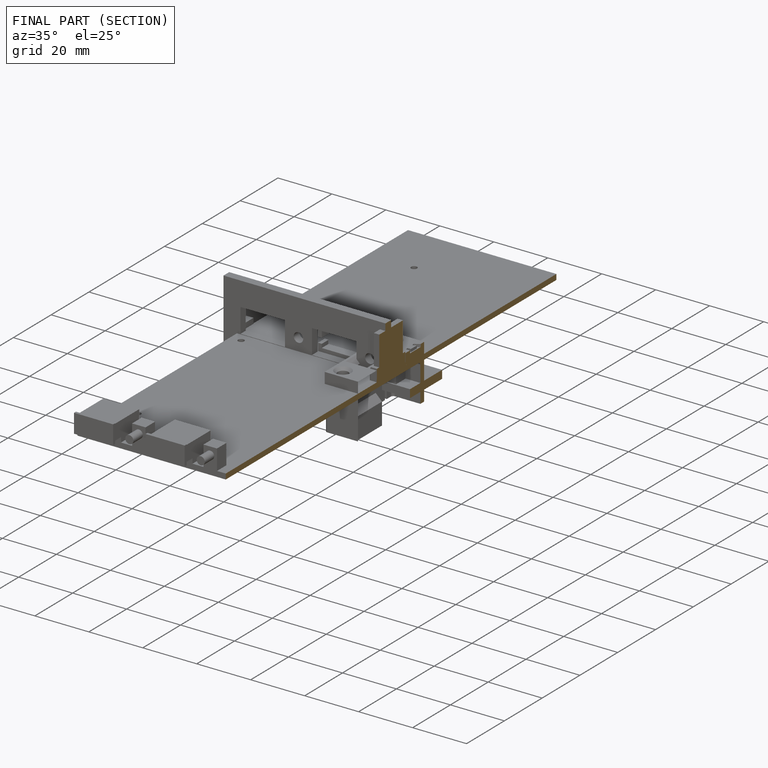
[diagram: finished part — half-section view (interior)]
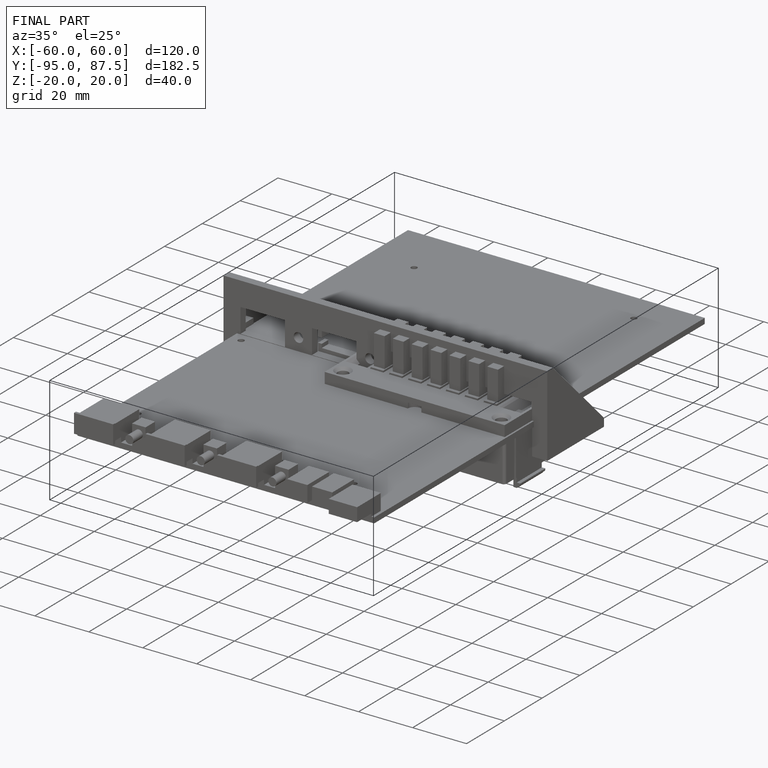
[diagram: finished part — iso view with bounding-box wireframe]
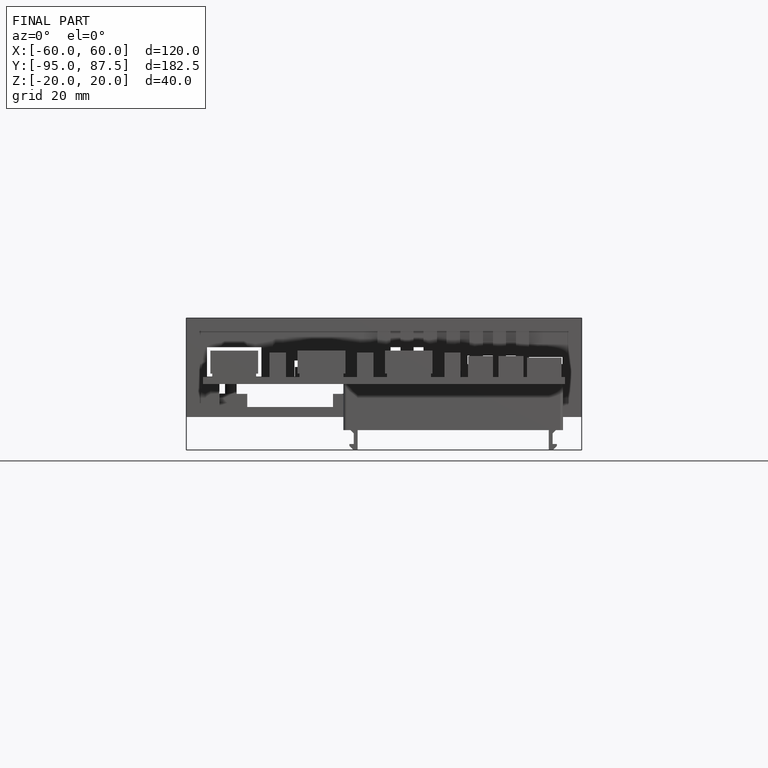
[diagram: finished part — front view with bounding-box wireframe]
